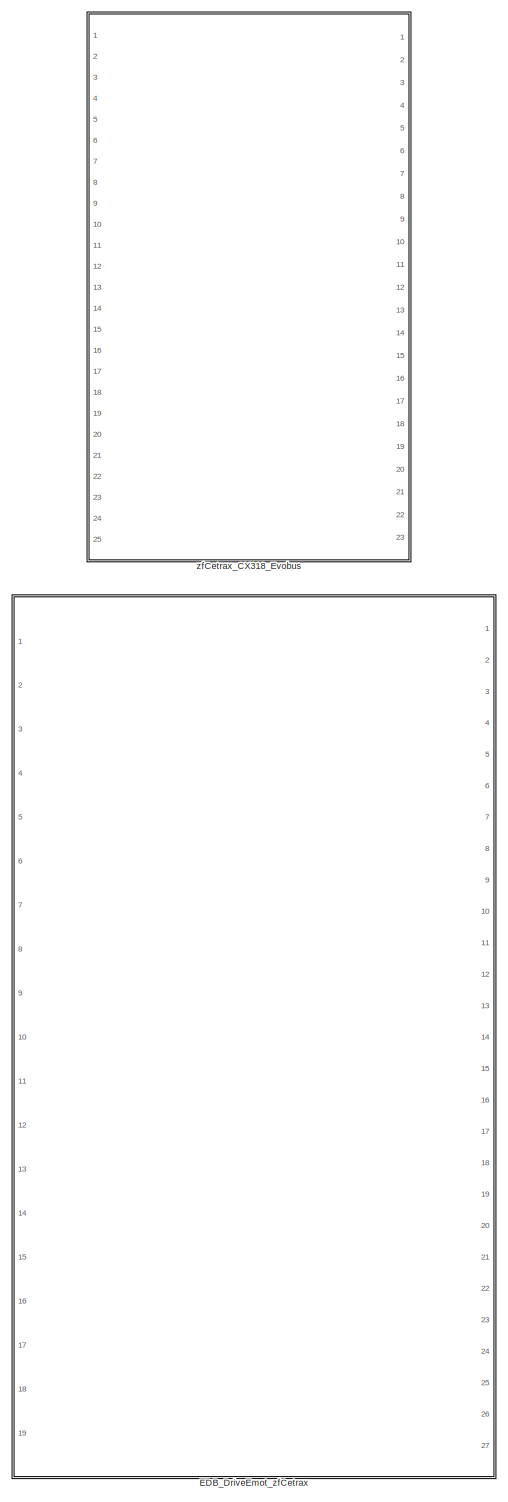
[diagram: root canvas - part 1/3, right side, full height]
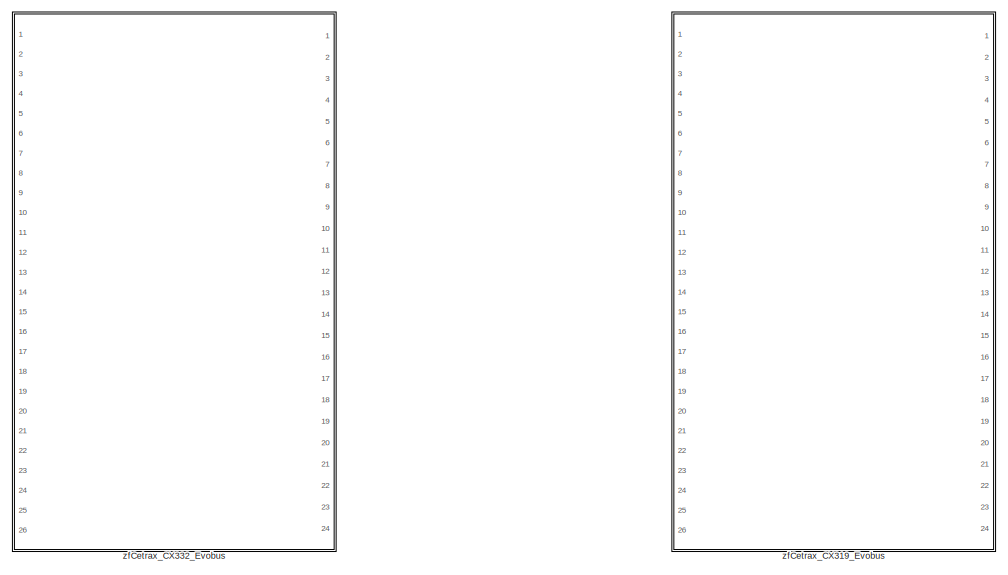
[diagram: root canvas - part 2/3, top left region]
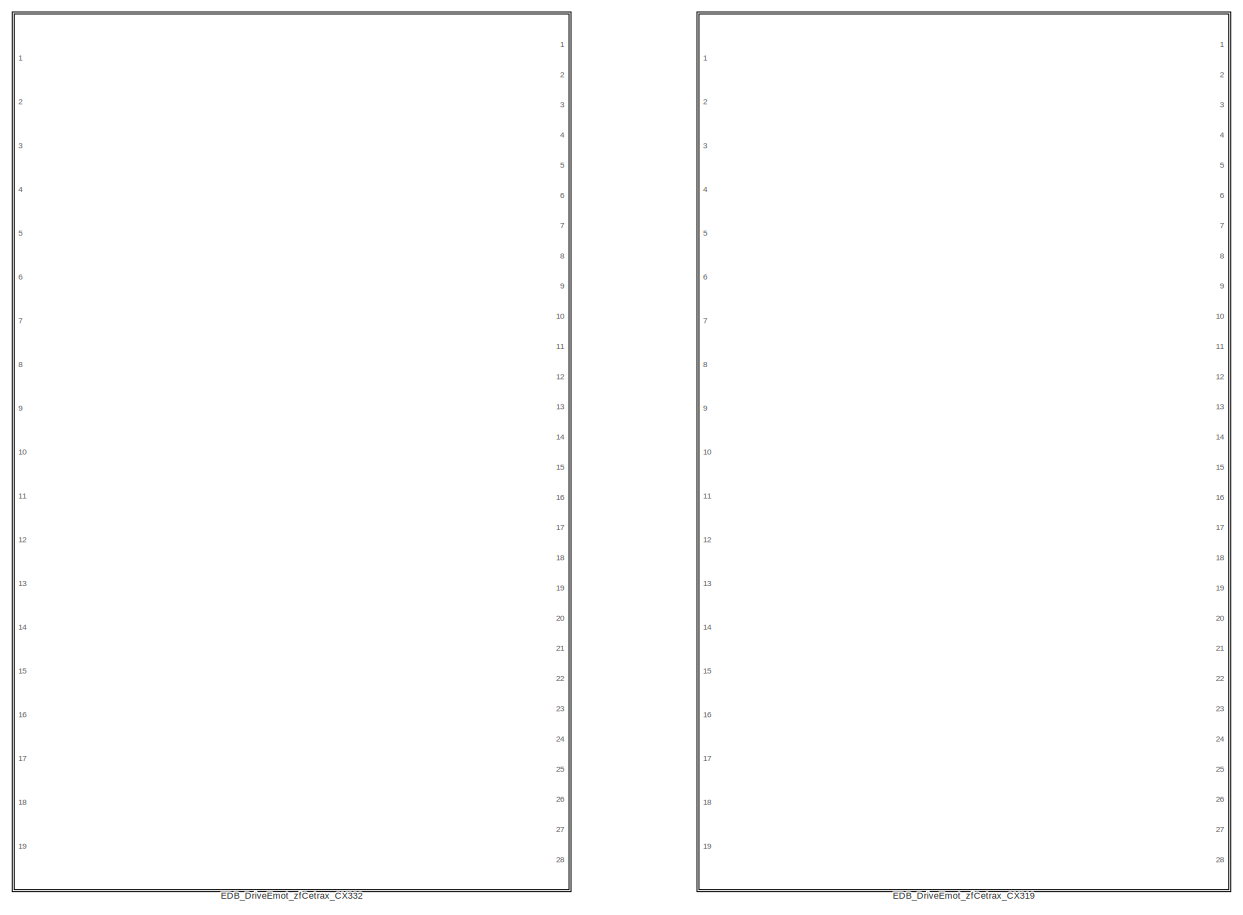
[diagram: root canvas - part 3/3, bottom left region]
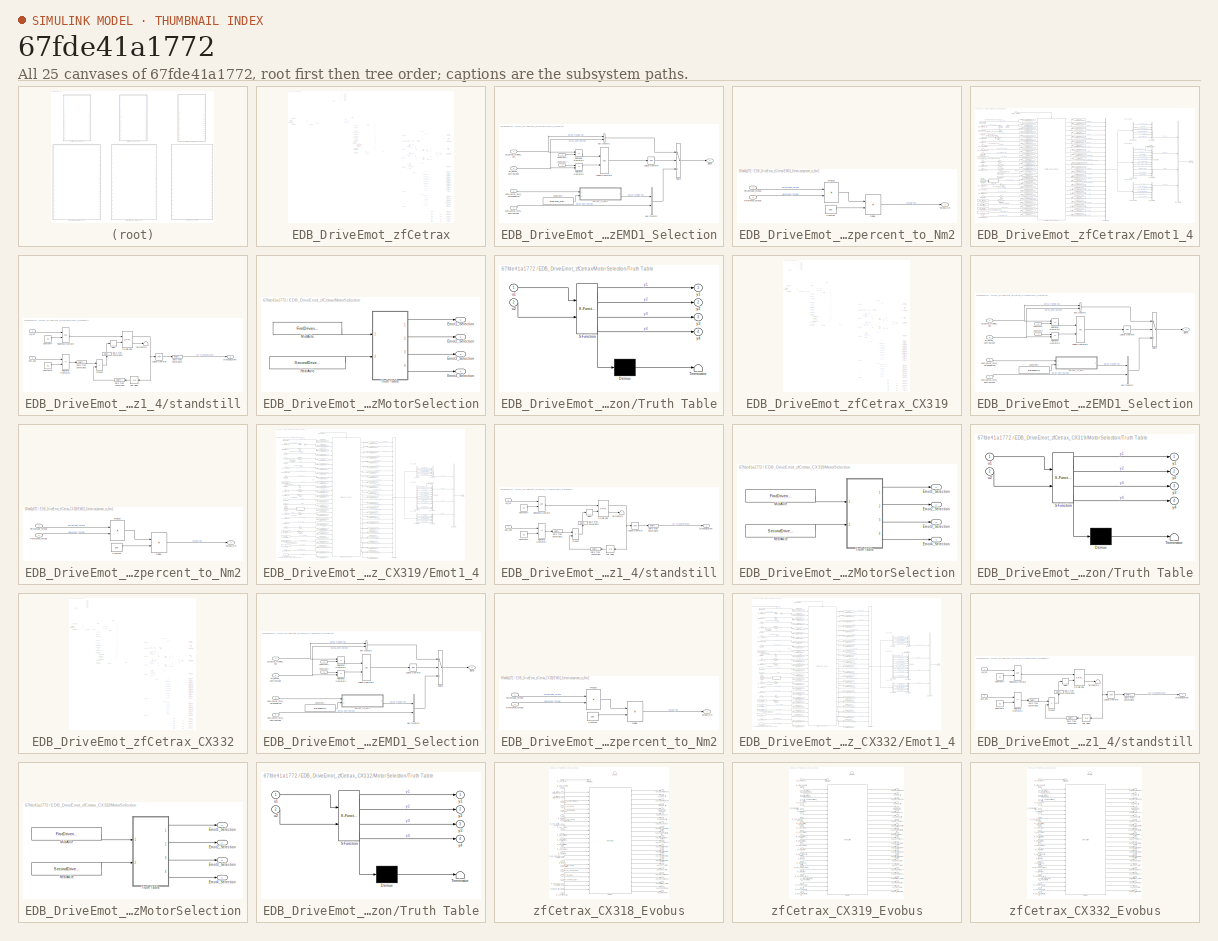
[diagram: thumbnail index - all 25 canvases of the model, root first then tree order]
MODEL slx_67fde41a1772
KIND library
CONFIG AbsTol = auto
CONFIG FixedStep = 0.001
CONFIG MaxStep = auto
CONFIG MinStep = auto
CONFIG RelTol = 1e-3
CONFIG SampleTimeConstraint = Unconstrained
CONFIG Solver = ode1
CONFIG SolverMode = Auto
CONFIG SolverName = ode1
CONFIG StartTime = 0.0
CONFIG StopTime = Inf
BLOCK [SubSystem] EDB_DriveEmot_zfCetrax
  Ports = [19, 27]
  RequestExecContextInheritance = off
  Variant = off
BLOCK [Sum] EDB_DriveEmot_zfCetrax/Add
  InputSameDT = off
  OutDataTypeStr = Inherit: Inherit via internal rule
  Ports = [2, 1]
  SaturateOnIntegerOverflow = off
BLOCK [Sum] EDB_DriveEmot_zfCetrax/Add1
  InputSameDT = off
  OutDataTypeStr = Inherit: Inherit via internal rule
  Ports = [2, 1]
  SaturateOnIntegerOverflow = off
BLOCK [Sum] EDB_DriveEmot_zfCetrax/Add2
  InputSameDT = off
  OutDataTypeStr = Inherit: Inherit via internal rule
  Ports = [2, 1]
  SaturateOnIntegerOverflow = off
BLOCK [Sum] EDB_DriveEmot_zfCetrax/Add3
  InputSameDT = off
  OutDataTypeStr = Inherit: Inherit via internal rule
  Ports = [2, 1]
  SaturateOnIntegerOverflow = off
BLOCK [Sum] EDB_DriveEmot_zfCetrax/Add4
  InputSameDT = off
  Inputs = -+
  OutDataTypeStr = Inherit: Inherit via internal rule
  Ports = [2, 1]
  SaturateOnIntegerOverflow = off
BLOCK [Sum] EDB_DriveEmot_zfCetrax/Add5
  InputSameDT = off
  Inputs = -+
  OutDataTypeStr = Inherit: Inherit via internal rule
  Ports = [2, 1]
  SaturateOnIntegerOverflow = off
BLOCK [Sum] EDB_DriveEmot_zfCetrax/Add6
  InputSameDT = off
  OutDataTypeStr = Inherit: Inherit via internal rule
  Ports = [2, 1]
  SaturateOnIntegerOverflow = off
BLOCK [BusSelector] EDB_DriveEmot_zfCetrax/Bus Selector
  OutputSignals = EMD1_TrqReq_Nm,EMD1_ControlMode
  Ports = [1, 2]
BLOCK [BusSelector] EDB_DriveEmot_zfCetrax/Bus Selector1
  OutputSignals = gbx_out.gbxOut_trq
  Ports = [1, 1]
BLOCK [BusSelector] EDB_DriveEmot_zfCetrax/Bus Selector13
  OutputSignals = em2_out.em2_trq,em2_out.em2_rotSpeed,em2_out.em2_pwrLoss
  Ports = [1, 3]
BLOCK [BusSelector] EDB_DriveEmot_zfCetrax/Bus Selector2
  OutputSignals = gbx_out.gbx_gearAct,gbx_out.gbx_gearRatio_tgt,gbx_out.gbx_gearShift_active,gbx_out.gbxOut_rotSpeed,em1_out.em1_trqPotential_min,em1_out.em1_trqPotential_max,em2_out.em2_trqPotential_min,em2_out.em2_trqPotential_max,em1_out.em1_rotSpeed,em2_out.em2_rotSpeed,em1_out.pe1_curDC,em2_out.pe2_curDC  <repeated x3 — deduplicated; at blocks: Bus Selector2>
  Ports = [1, 12]
BLOCK [BusSelector] EDB_DriveEmot_zfCetrax/Bus Selector3
  OutputSignals = gbx_out.gbxOut_rotSpeed,gbx_out.gbxOut_Acc,gbx_out.gbx_gearRatio_tgt,gbx_out.gbx_emDec_active,gbx_out.gbx_pwrLoss,gbx_out.derating_active
  Ports = [1, 6]
BLOCK [BusSelector] EDB_DriveEmot_zfCetrax/Bus Selector4
  OutputSignals = em1_out.pe1_curDC,em2_out.pe2_curDC
  Ports = [1, 2]
BLOCK [BusSelector] EDB_DriveEmot_zfCetrax/Bus Selector7
  OutputSignals = em1_out.em1_pwrLoss,em2_out.em2_pwrLoss
  Ports = [1, 2]
BLOCK [BusSelector] EDB_DriveEmot_zfCetrax/Bus Selector8
  OutputSignals = em1_out.em1_trq,em1_out.em1_rotSpeed,em1_out.em1_pwrLoss
  Ports = [1, 3]
BLOCK [SubSystem] EDB_DriveEmot_zfCetrax/EMD1_Selection
  Ports = [4, 1]
  RequestExecContextInheritance = off
  Variant = off
BLOCK [BusCreator] EDB_DriveEmot_zfCetrax/EMD1_Selection/Bus Creator1
  DisplayOption = bar
  InheritFromInputs = on
  Inputs = 2
  Ports = [2, 1]
BLOCK [BusCreator] EDB_DriveEmot_zfCetrax/EMD1_Selection/Bus Creator2
  DisplayOption = bar
  InheritFromInputs = on
  Inputs = 2
  Ports = [2, 1]
BLOCK [Constant] EDB_DriveEmot_zfCetrax/EMD1_Selection/Constant2
  Value = 0
BLOCK [Constant] EDB_DriveEmot_zfCetrax/EMD1_Selection/Constant3
  Value = -1
BLOCK [Constant] EDB_DriveEmot_zfCetrax/EMD1_Selection/Constant4
  Value = drvEmot_RefTqeMOT
BLOCK [Logic] EDB_DriveEmot_zfCetrax/EMD1_Selection/Logical Operator
  AllPortsSameDT = off
  Operator = NOT
  OutDataTypeStr = boolean
  Ports = [1, 1]
BLOCK [Logic] EDB_DriveEmot_zfCetrax/EMD1_Selection/Logical Operator1
  AllPortsSameDT = off
  OutDataTypeStr = boolean
  Ports = [2, 1]
BLOCK [RelationalOperator] EDB_DriveEmot_zfCetrax/EMD1_Selection/Relational Operator2
  InputSameDT = off
  Operator = ==
  OutDataTypeStr = boolean
  Ports = [2, 1]
BLOCK [RelationalOperator] EDB_DriveEmot_zfCetrax/EMD1_Selection/Relational Operator3
  InputSameDT = off
  Operator = ==
  OutDataTypeStr = boolean
  Ports = [2, 1]
BLOCK [Outport] EDB_DriveEmot_zfCetrax/EMD1_Selection/Signal
  IconDisplay = Port number
BLOCK [Switch] EDB_DriveEmot_zfCetrax/EMD1_Selection/Switch
  Criteria = u2 > Threshold
  InputSameDT = off
  SaturateOnIntegerOverflow = off
BLOCK [Inport] EDB_DriveEmot_zfCetrax/EMD1_Selection/edcu_EMD1_CMD_ControlMode
  IconDisplay = Port number
  Port = 4
BLOCK [Inport] EDB_DriveEmot_zfCetrax/EMD1_Selection/edcu_EMD1_CMD_TorqueRefLim
  IconDisplay = Port number
  Port = 3
BLOCK [SubSystem] EDB_DriveEmot_zfCetrax/EMD1_Selection/percent_to_Nm2
  Ports = [2, 1]
  RequestExecContextInheritance = off
  Variant = off
BLOCK [Constant] EDB_DriveEmot_zfCetrax/EMD1_Selection/percent_to_Nm2/Constant
  Value = 100
BLOCK [Product] EDB_DriveEmot_zfCetrax/EMD1_Selection/percent_to_Nm2/Divide
  InputSameDT = off
  Inputs = */
  OutDataTypeStr = Inherit: Inherit via internal rule
  Ports = [2, 1]
  RndMeth = Floor
  SaturateOnIntegerOverflow = off
BLOCK [Inport] EDB_DriveEmot_zfCetrax/EMD1_Selection/percent_to_Nm2/Percentage_Torque
  IconDisplay = Port number
BLOCK [Product] EDB_DriveEmot_zfCetrax/EMD1_Selection/percent_to_Nm2/Product
  InputSameDT = off
  OutDataTypeStr = Inherit: Inherit via internal rule
  Ports = [2, 1]
  SaturateOnIntegerOverflow = off
BLOCK [Inport] EDB_DriveEmot_zfCetrax/EMD1_Selection/percent_to_Nm2/Reference_Torque
  IconDisplay = Port number
  Port = 2
BLOCK [Outport] EDB_DriveEmot_zfCetrax/EMD1_Selection/percent_to_Nm2/Torque_Nm
  IconDisplay = Port number
BLOCK [Inport] EDB_DriveEmot_zfCetrax/EMD1_Selection/pti_EMD1_ControlMode
  IconDisplay = Port number
  Port = 2
BLOCK [Inport] EDB_DriveEmot_zfCetrax/EMD1_Selection/pti_EMD1_TrqReq_Nm
  IconDisplay = Port number
BLOCK [SubSystem] EDB_DriveEmot_zfCetrax/Emot1_4
  Ports = [17, 1]
  RequestExecContextInheritance = off
  Variant = off
BLOCK [BusCreator] EDB_DriveEmot_zfCetrax/Emot1_4/Bus Creator
  DisplayOption = bar
  InheritFromInputs = on
  Inputs = 6
  Ports = [6, 1]
BLOCK [BusCreator] EDB_DriveEmot_zfCetrax/Emot1_4/Bus Creator4
  DisplayOption = bar
  InheritFromInputs = on
  Inputs = 23
  Ports = [23, 1]
BLOCK [BusCreator] EDB_DriveEmot_zfCetrax/Emot1_4/Bus Creator5
  DisplayOption = bar
  InheritFromInputs = on
  Inputs = 6
  Ports = [6, 1]
BLOCK [BusCreator] EDB_DriveEmot_zfCetrax/Emot1_4/Bus Creator6
  DisplayOption = bar
  InheritFromInputs = on
  Inputs = 9
  Ports = [9, 1]
BLOCK [BusCreator] EDB_DriveEmot_zfCetrax/Emot1_4/Bus Creator7
  DisplayOption = bar
  InheritFromInputs = on
  Inputs = 2
  Ports = [2, 1]
BLOCK [BusCreator] EDB_DriveEmot_zfCetrax/Emot1_4/Bus Creator8
  DisplayOption = bar
  InheritFromInputs = on
  Inputs = 4
  Ports = [4, 1]
BLOCK [BusSelector] EDB_DriveEmot_zfCetrax/Emot1_4/Bus Selector
  OutputSignals = em1_rotSpeed,em1_trq,em1_trqPotential_min,em1_trqPotential_max,pe1_curDC,em1_pwrLoss
  Ports = [1, 6]
BLOCK [BusSelector] EDB_DriveEmot_zfCetrax/Emot1_4/Bus Selector1
  OutputSignals = em2_trq,em2_rotSpeed,em2_trqPotential_min,em2_trqPotential_max,em2_pwrLoss,pe2_curDC
  Ports = [1, 6]
BLOCK [BusSelector] EDB_DriveEmot_zfCetrax/Emot1_4/Bus Selector3
  OutputSignals = gbxOut_rotSpeed,gbxOut_Acc,gbxOut_trq,gbx_gearAct,gbx_gearShift_active,gbx_gearRatio_tgt,gbx_emDec_active,gbx_pwrLoss,derating_active,clnt_outTemp,clnt_hFlow
  Ports = [1, 11]
BLOCK [Constant] EDB_DriveEmot_zfCetrax/Emot1_4/Constant
  Value = mec_rWheelDriven
BLOCK [Constant] EDB_DriveEmot_zfCetrax/Emot1_4/Constant1
  Value = mec_iDiffAxle
BLOCK [Constant] EDB_DriveEmot_zfCetrax/Emot1_4/Constant2
  Value = mec_fRollCoeffOverall
BLOCK [Constant] EDB_DriveEmot_zfCetrax/Emot1_4/Constant3
  Value = 0
BLOCK [Inport] EDB_DriveEmot_zfCetrax/Emot1_4/Emot1_Selection
  IconDisplay = Port number
  Port = 4
BLOCK [From] EDB_DriveEmot_zfCetrax/Emot1_4/From1
  GotoTag = vel_tgt
BLOCK [From] EDB_DriveEmot_zfCetrax/Emot1_4/From2
  GotoTag = gbx_spd
BLOCK [Gain] EDB_DriveEmot_zfCetrax/Emot1_4/Gain
  OutDataTypeStr = Inherit: Inherit via internal rule
  ParamDataTypeStr = Inherit: Inherit via internal rule
  SaturateOnIntegerOverflow = off
BLOCK [Gain] EDB_DriveEmot_zfCetrax/Emot1_4/Gain1
  Gain = 5/18
  OutDataTypeStr = Inherit: Inherit via internal rule
  ParamDataTypeStr = Inherit: Inherit via internal rule
  SaturateOnIntegerOverflow = off
BLOCK [Gain] EDB_DriveEmot_zfCetrax/Emot1_4/Gain2
  Gain = 1000
  OutDataTypeStr = Inherit: Inherit via internal rule
  ParamDataTypeStr = Inherit: Inherit via internal rule
  SaturateOnIntegerOverflow = off
BLOCK [Gain] EDB_DriveEmot_zfCetrax/Emot1_4/Gain3
  Gain = 1000
  OutDataTypeStr = Inherit: Inherit via internal rule
  ParamDataTypeStr = Inherit: Inherit via internal rule
  SaturateOnIntegerOverflow = off
BLOCK [Gain] EDB_DriveEmot_zfCetrax/Emot1_4/Gain4
  OutDataTypeStr = Inherit: Inherit via internal rule
  ParamDataTypeStr = Inherit: Inherit via internal rule
  SaturateOnIntegerOverflow = off
BLOCK [Gain] EDB_DriveEmot_zfCetrax/Emot1_4/Gain5
  OutDataTypeStr = Inherit: Inherit via internal rule
  ParamDataTypeStr = Inherit: Inherit via internal rule
  SaturateOnIntegerOverflow = off
BLOCK [Gain] EDB_DriveEmot_zfCetrax/Emot1_4/Gain6
  Gain = 0.01
  OutDataTypeStr = Inherit: Inherit via internal rule
  ParamDataTypeStr = Inherit: Inherit via internal rule
  SaturateOnIntegerOverflow = off
BLOCK [Goto] EDB_DriveEmot_zfCetrax/Emot1_4/Goto1
  GotoTag = vel_tgt
BLOCK [Goto] EDB_DriveEmot_zfCetrax/Emot1_4/Goto2
  GotoTag = gbx_spd
BLOCK [Ground] EDB_DriveEmot_zfCetrax/Emot1_4/Ground
BLOCK [Terminator] EDB_DriveEmot_zfCetrax/Emot1_4/Terminator
BLOCK [ToWorkspace] EDB_DriveEmot_zfCetrax/Emot1_4/To Workspace
  FixptAsFi = on
  MaxDataPoints = inf
  Ports = [1]
  SampleTime = -1
  Save2DSignal = 2-D array (concatenate along first dimension)
  VariableName = FMU_in_driver_demCtrl
BLOCK [ToWorkspace] EDB_DriveEmot_zfCetrax/Emot1_4/To Workspace1
  FixptAsFi = on
  MaxDataPoints = inf
  Ports = [1]
  SampleTime = -1
  Save2DSignal = 2-D array (concatenate along first dimension)
  VariableName = FMU_in_driver_pwrDemand
BLOCK [ToWorkspace] EDB_DriveEmot_zfCetrax/Emot1_4/To Workspace10
  FixptAsFi = on
  MaxDataPoints = inf
  Ports = [1]
  SampleTime = -1
  Save2DSignal = 2-D array (concatenate along first dimension)
  VariableName = FMU_in_bat_voltage
BLOCK [ToWorkspace] EDB_DriveEmot_zfCetrax/Emot1_4/To Workspace11
  FixptAsFi = on
  MaxDataPoints = inf
  Ports = [1]
  SampleTime = -1
  Save2DSignal = 2-D array (concatenate along first dimension)
  VariableName = FMU_in_em_pwrElec_min
BLOCK [ToWorkspace] EDB_DriveEmot_zfCetrax/Emot1_4/To Workspace12
  FixptAsFi = on
  MaxDataPoints = inf
  Ports = [1]
  SampleTime = -1
  Save2DSignal = 2-D array (concatenate along first dimension)
  VariableName = FMU_in_em_pwrElec_max
BLOCK [ToWorkspace] EDB_DriveEmot_zfCetrax/Emot1_4/To Workspace13
  FixptAsFi = on
  MaxDataPoints = inf
  Ports = [1]
  SampleTime = -1
  Save2DSignal = 2-D array (concatenate along first dimension)
  VariableName = FMU_in_clnt_volFlow
BLOCK [ToWorkspace] EDB_DriveEmot_zfCetrax/Emot1_4/To Workspace14
  FixptAsFi = on
  MaxDataPoints = inf
  Ports = [1]
  SampleTime = -1
  Save2DSignal = 2-D array (concatenate along first dimension)
  VariableName = FMU_in_clnt_temp
BLOCK [ToWorkspace] EDB_DriveEmot_zfCetrax/Emot1_4/To Workspace15
  FixptAsFi = on
  MaxDataPoints = inf
  Ports = [1]
  SampleTime = -1
  Save2DSignal = 2-D array (concatenate along first dimension)
  VariableName = FMU_in_drv_standstill_active
BLOCK [ToWorkspace] EDB_DriveEmot_zfCetrax/Emot1_4/To Workspace16
  FixptAsFi = on
  MaxDataPoints = inf
  Ports = [1]
  SampleTime = -1
  Save2DSignal = 2-D array (concatenate along first dimension)
  VariableName = FMU_in_rt_slope
BLOCK [ToWorkspace] EDB_DriveEmot_zfCetrax/Emot1_4/To Workspace17
  FixptAsFi = on
  MaxDataPoints = inf
  Ports = [1]
  SampleTime = -1
  Save2DSignal = 2-D array (concatenate along first dimension)
  VariableName = FMU_in_drv_pedal_throttle
BLOCK [ToWorkspace] EDB_DriveEmot_zfCetrax/Emot1_4/To Workspace18
  FixptAsFi = on
  MaxDataPoints = inf
  Ports = [1]
  SampleTime = -1
  Save2DSignal = 2-D array (concatenate along first dimension)
  VariableName = FMU_in_drv_pedal_brake
BLOCK [ToWorkspace] EDB_DriveEmot_zfCetrax/Emot1_4/To Workspace19
  FixptAsFi = on
  MaxDataPoints = inf
  Ports = [1]
  SampleTime = -1
  Save2DSignal = 2-D array (concatenate along first dimension)
  VariableName = FMU_in_drl_active
BLOCK [ToWorkspace] EDB_DriveEmot_zfCetrax/Emot1_4/To Workspace2
  FixptAsFi = on
  MaxDataPoints = inf
  Ports = [1]
  SampleTime = -1
  Save2DSignal = 2-D array (concatenate along first dimension)
  VariableName = FMU_in_driver_trqDemand
BLOCK [ToWorkspace] EDB_DriveEmot_zfCetrax/Emot1_4/To Workspace20
  FixptAsFi = on
  MaxDataPoints = inf
  Ports = [1]
  SampleTime = -1
  Save2DSignal = 2-D array (concatenate along first dimension)
  VariableName = FMU_in_vehWheel_rDyn
BLOCK [ToWorkspace] EDB_DriveEmot_zfCetrax/Emot1_4/To Workspace21
  FixptAsFi = on
  MaxDataPoints = inf
  Ports = [1]
  SampleTime = -1
  Save2DSignal = 2-D array (concatenate along first dimension)
  VariableName = FMU_in_vehAxel_gearRatio
BLOCK [ToWorkspace] EDB_DriveEmot_zfCetrax/Emot1_4/To Workspace22
  FixptAsFi = on
  MaxDataPoints = inf
  Ports = [1]
  SampleTime = -1
  Save2DSignal = 2-D array (concatenate along first dimension)
  VariableName = FMU_in_vehWheel_froll
BLOCK [ToWorkspace] EDB_DriveEmot_zfCetrax/Emot1_4/To Workspace23
  FixptAsFi = on
  MaxDataPoints = inf
  Ports = [1]
  SampleTime = -1
  Save2DSignal = 2-D array (concatenate along first dimension)
  VariableName = FMU_in_styLimVariant_set
BLOCK [ToWorkspace] EDB_DriveEmot_zfCetrax/Emot1_4/To Workspace24
  FixptAsFi = on
  MaxDataPoints = inf
  Ports = [1]
  SampleTime = -1
  Save2DSignal = 2-D array (concatenate along first dimension)
  VariableName = FMU_in_vehWheelBrake_trq
BLOCK [ToWorkspace] EDB_DriveEmot_zfCetrax/Emot1_4/To Workspace25
  FixptAsFi = on
  MaxDataPoints = inf
  Ports = [1]
  SampleTime = -1
  Save2DSignal = 2-D array (concatenate along first dimension)
  VariableName = FMU_out_em1_rotSpeed
BLOCK [ToWorkspace] EDB_DriveEmot_zfCetrax/Emot1_4/To Workspace26
  FixptAsFi = on
  MaxDataPoints = inf
  Ports = [1]
  SampleTime = -1
  Save2DSignal = 2-D array (concatenate along first dimension)
  VariableName = FMU_out_em1_trq
BLOCK [ToWorkspace] EDB_DriveEmot_zfCetrax/Emot1_4/To Workspace27
  FixptAsFi = on
  MaxDataPoints = inf
  Ports = [1]
  SampleTime = -1
  Save2DSignal = 2-D array (concatenate along first dimension)
  VariableName = FMU_out_em2_rotSpeed
BLOCK [ToWorkspace] EDB_DriveEmot_zfCetrax/Emot1_4/To Workspace28
  FixptAsFi = on
  MaxDataPoints = inf
  Ports = [1]
  SampleTime = -1
  Save2DSignal = 2-D array (concatenate along first dimension)
  VariableName = FMU_out_em2_trq
BLOCK [ToWorkspace] EDB_DriveEmot_zfCetrax/Emot1_4/To Workspace29
  FixptAsFi = on
  MaxDataPoints = inf
  Ports = [1]
  SampleTime = -1
  Save2DSignal = 2-D array (concatenate along first dimension)
  VariableName = FMU_out_gbxOut_rotSpeed
BLOCK [ToWorkspace] EDB_DriveEmot_zfCetrax/Emot1_4/To Workspace3
  FixptAsFi = on
  MaxDataPoints = inf
  Ports = [1]
  SampleTime = -1
  Save2DSignal = 2-D array (concatenate along first dimension)
  VariableName = FMU_in_veh_linVel
BLOCK [ToWorkspace] EDB_DriveEmot_zfCetrax/Emot1_4/To Workspace30
  FixptAsFi = on
  MaxDataPoints = inf
  Ports = [1]
  SampleTime = -1
  Save2DSignal = 2-D array (concatenate along first dimension)
  VariableName = FMU_out_gbxOut_Acc
BLOCK [ToWorkspace] EDB_DriveEmot_zfCetrax/Emot1_4/To Workspace31
  FixptAsFi = on
  MaxDataPoints = inf
  Ports = [1]
  SampleTime = -1
  Save2DSignal = 2-D array (concatenate along first dimension)
  VariableName = FMU_out_gbxOut_trq
BLOCK [ToWorkspace] EDB_DriveEmot_zfCetrax/Emot1_4/To Workspace32
  FixptAsFi = on
  MaxDataPoints = inf
  Ports = [1]
  SampleTime = -1
  Save2DSignal = 2-D array (concatenate along first dimension)
  VariableName = FMU_out_gbx_gearAct
BLOCK [ToWorkspace] EDB_DriveEmot_zfCetrax/Emot1_4/To Workspace33
  FixptAsFi = on
  MaxDataPoints = inf
  Ports = [1]
  SampleTime = -1
  Save2DSignal = 2-D array (concatenate along first dimension)
  VariableName = FMU_out_gbx_gearShift_active
BLOCK [ToWorkspace] EDB_DriveEmot_zfCetrax/Emot1_4/To Workspace34
  FixptAsFi = on
  MaxDataPoints = inf
  Ports = [1]
  SampleTime = -1
  Save2DSignal = 2-D array (concatenate along first dimension)
  VariableName = FMU_out_gbx_gearRatio_tgt
BLOCK [ToWorkspace] EDB_DriveEmot_zfCetrax/Emot1_4/To Workspace35
  FixptAsFi = on
  MaxDataPoints = inf
  Ports = [1]
  SampleTime = -1
  Save2DSignal = 2-D array (concatenate along first dimension)
  VariableName = FMU_out_gbx_emDec_active
BLOCK [ToWorkspace] EDB_DriveEmot_zfCetrax/Emot1_4/To Workspace36
  FixptAsFi = on
  MaxDataPoints = inf
  Ports = [1]
  SampleTime = -1
  Save2DSignal = 2-D array (concatenate along first dimension)
  VariableName = FMU_out_gbx_pwrLoss
BLOCK [ToWorkspace] EDB_DriveEmot_zfCetrax/Emot1_4/To Workspace37
  FixptAsFi = on
  MaxDataPoints = inf
  Ports = [1]
  SampleTime = -1
  Save2DSignal = 2-D array (concatenate along first dimension)
  VariableName = FMU_out_pe1_curDC
BLOCK [ToWorkspace] EDB_DriveEmot_zfCetrax/Emot1_4/To Workspace38
  FixptAsFi = on
  MaxDataPoints = inf
  Ports = [1]
  SampleTime = -1
  Save2DSignal = 2-D array (concatenate along first dimension)
  VariableName = FMU_out_em1_trqPotential_min
BLOCK [ToWorkspace] EDB_DriveEmot_zfCetrax/Emot1_4/To Workspace39
  FixptAsFi = on
  MaxDataPoints = inf
  Ports = [1]
  SampleTime = -1
  Save2DSignal = 2-D array (concatenate along first dimension)
  VariableName = FMU_out_em1_trqPotential_max
BLOCK [ToWorkspace] EDB_DriveEmot_zfCetrax/Emot1_4/To Workspace4
  FixptAsFi = on
  MaxDataPoints = inf
  Ports = [1]
  SampleTime = -1
  Save2DSignal = 2-D array (concatenate along first dimension)
  VariableName = FMU_in_veh_linVel_tgt
BLOCK [ToWorkspace] EDB_DriveEmot_zfCetrax/Emot1_4/To Workspace40
  FixptAsFi = on
  MaxDataPoints = inf
  Ports = [1]
  SampleTime = -1
  Save2DSignal = 2-D array (concatenate along first dimension)
  VariableName = FMU_out_em2_trqPotential_min
BLOCK [ToWorkspace] EDB_DriveEmot_zfCetrax/Emot1_4/To Workspace41
  FixptAsFi = on
  MaxDataPoints = inf
  Ports = [1]
  SampleTime = -1
  Save2DSignal = 2-D array (concatenate along first dimension)
  VariableName = FMU_out_em2_trqPotential_max
BLOCK [ToWorkspace] EDB_DriveEmot_zfCetrax/Emot1_4/To Workspace42
  FixptAsFi = on
  MaxDataPoints = inf
  Ports = [1]
  SampleTime = -1
  Save2DSignal = 2-D array (concatenate along first dimension)
  VariableName = FMU_out_pe2_curDC
BLOCK [ToWorkspace] EDB_DriveEmot_zfCetrax/Emot1_4/To Workspace43
  FixptAsFi = on
  MaxDataPoints = inf
  Ports = [1]
  SampleTime = -1
  Save2DSignal = 2-D array (concatenate along first dimension)
  VariableName = FMU_out_em1_pwrLoss
BLOCK [ToWorkspace] EDB_DriveEmot_zfCetrax/Emot1_4/To Workspace44
  FixptAsFi = on
  MaxDataPoints = inf
  Ports = [1]
  SampleTime = -1
  Save2DSignal = 2-D array (concatenate along first dimension)
  VariableName = FMU_out_em2_pwrLoss
BLOCK [ToWorkspace] EDB_DriveEmot_zfCetrax/Emot1_4/To Workspace45
  FixptAsFi = on
  MaxDataPoints = inf
  Ports = [1]
  SampleTime = -1
  Save2DSignal = 2-D array (concatenate along first dimension)
  VariableName = FMU_out_derating_active
BLOCK [ToWorkspace] EDB_DriveEmot_zfCetrax/Emot1_4/To Workspace46
  FixptAsFi = on
  MaxDataPoints = inf
  Ports = [1]
  SampleTime = -1
  Save2DSignal = 2-D array (concatenate along first dimension)
  VariableName = FMU_out_clnt_outTemp
BLOCK [ToWorkspace] EDB_DriveEmot_zfCetrax/Emot1_4/To Workspace47
  FixptAsFi = on
  MaxDataPoints = inf
  Ports = [1]
  SampleTime = -1
  Save2DSignal = 2-D array (concatenate along first dimension)
  VariableName = FMU_out_clnt_hflow
BLOCK [ToWorkspace] EDB_DriveEmot_zfCetrax/Emot1_4/To Workspace5
  FixptAsFi = on
  MaxDataPoints = inf
  Ports = [1]
  SampleTime = -1
  Save2DSignal = 2-D array (concatenate along first dimension)
  VariableName = FMU_in_veh_linAcc
BLOCK [ToWorkspace] EDB_DriveEmot_zfCetrax/Emot1_4/To Workspace6
  FixptAsFi = on
  MaxDataPoints = inf
  Ports = [1]
  SampleTime = -1
  Save2DSignal = 2-D array (concatenate along first dimension)
  VariableName = FMU_in_tempEnv
BLOCK [ToWorkspace] EDB_DriveEmot_zfCetrax/Emot1_4/To Workspace7
  FixptAsFi = on
  MaxDataPoints = inf
  Ports = [1]
  SampleTime = -1
  Save2DSignal = 2-D array (concatenate along first dimension)
  VariableName = FMU_in_veh_resTrq_gbxOut
BLOCK [ToWorkspace] EDB_DriveEmot_zfCetrax/Emot1_4/To Workspace8
  FixptAsFi = on
  MaxDataPoints = inf
  Ports = [1]
  SampleTime = -1
  Save2DSignal = 2-D array (concatenate along first dimension)
  VariableName = FMU_in_veh_inertia_gbxOut
BLOCK [ToWorkspace] EDB_DriveEmot_zfCetrax/Emot1_4/To Workspace9
  FixptAsFi = on
  MaxDataPoints = inf
  Ports = [1]
  SampleTime = -1
  Save2DSignal = 2-D array (concatenate along first dimension)
  VariableName = FMU_in_veh_mass
BLOCK [Outport] EDB_DriveEmot_zfCetrax/Emot1_4/ceTrax
  IconDisplay = Port number
BLOCK [Constant] EDB_DriveEmot_zfCetrax/Emot1_4/clnt_temp
  Value = 25
BLOCK [Constant] EDB_DriveEmot_zfCetrax/Emot1_4/clnt_volFlow
  Value = 1.5
BLOCK [Constant] EDB_DriveEmot_zfCetrax/Emot1_4/driver_demCtrl
  Value = 2
BLOCK [Inport] EDB_DriveEmot_zfCetrax/Emot1_4/drv_AccPdl_pos
  IconDisplay = Port number
  Port = 5
BLOCK [Inport] EDB_DriveEmot_zfCetrax/Emot1_4/drv_BrkPdl_pos
  IconDisplay = Port number
  Port = 6
BLOCK [Inport] EDB_DriveEmot_zfCetrax/Emot1_4/drv_HaltBrkSw_Rq
  IconDisplay = Port number
  Port = 9
BLOCK [Inport] EDB_DriveEmot_zfCetrax/Emot1_4/em_pwrElec_max
  IconDisplay = Port number
  Port = 16
BLOCK [Inport] EDB_DriveEmot_zfCetrax/Emot1_4/em_pwrElec_min
  IconDisplay = Port number
  Port = 15
BLOCK [Inport] EDB_DriveEmot_zfCetrax/Emot1_4/emot_CMD1
  IconDisplay = Port number
  Port = 3
BLOCK [Inport] EDB_DriveEmot_zfCetrax/Emot1_4/env_Temperature
  IconDisplay = Port number
  Port = 7
BLOCK [Inport] EDB_DriveEmot_zfCetrax/Emot1_4/env_road_slope_pct
  IconDisplay = Port number
  Port = 8
BLOCK [Gain] EDB_DriveEmot_zfCetrax/Emot1_4/mm to meter
  Gain = 0.001
  OutDataTypeStr = Inherit: Inherit via internal rule
  ParamDataTypeStr = Inherit: Inherit via internal rule
  SaturateOnIntegerOverflow = off
BLOCK [Inport] EDB_DriveEmot_zfCetrax/Emot1_4/pti_WheelBrake_trq
  IconDisplay = Port number
  Port = 17
BLOCK [SubSystem] EDB_DriveEmot_zfCetrax/Emot1_4/standstill
  Ports = [2, 1]
  RequestExecContextInheritance = off
  Variant = off
BLOCK [Constant] EDB_DriveEmot_zfCetrax/Emot1_4/standstill/Constant4
  Value = 0.1
BLOCK [Constant] EDB_DriveEmot_zfCetrax/Emot1_4/standstill/Constant5
  Value = 0.1
BLOCK [DataTypeConversion] EDB_DriveEmot_zfCetrax/Emot1_4/standstill/Data Type Conversion
  OutDataTypeStr = double
  RndMeth = Floor
  SaturateOnIntegerOverflow = off
BLOCK [DataTypeConversion] EDB_DriveEmot_zfCetrax/Emot1_4/standstill/Data Type Conversion1
  OutDataTypeStr = double
  RndMeth = Floor
  SaturateOnIntegerOverflow = off
BLOCK [DataTypeConversion] EDB_DriveEmot_zfCetrax/Emot1_4/standstill/Data Type Conversion2
  OutDataTypeStr = boolean
  RndMeth = Floor
  SaturateOnIntegerOverflow = off
BLOCK [DataTypeConversion] EDB_DriveEmot_zfCetrax/Emot1_4/standstill/Data Type Conversion3
  OutDataTypeStr = double
  RndMeth = Floor
  SaturateOnIntegerOverflow = off
BLOCK [Delay] EDB_DriveEmot_zfCetrax/Emot1_4/standstill/Delay
  DelayLength = 10
  InputPortMap = u0
  Ports = [1, 1]
BLOCK [Logic] EDB_DriveEmot_zfCetrax/Emot1_4/standstill/Logical Operator
  AllPortsSameDT = off
  Operator = NOT
  OutDataTypeStr = boolean
  Ports = [1, 1]
BLOCK [Product] EDB_DriveEmot_zfCetrax/Emot1_4/standstill/Product
  InputSameDT = off
  OutDataTypeStr = Inherit: Inherit via internal rule
  Ports = [2, 1]
  RndMeth = Floor
  SaturateOnIntegerOverflow = off
BLOCK [RelationalOperator] EDB_DriveEmot_zfCetrax/Emot1_4/standstill/Relational Operator
  InputSameDT = off
  OutDataTypeStr = boolean
  Ports = [2, 1]
BLOCK [RelationalOperator] EDB_DriveEmot_zfCetrax/Emot1_4/standstill/Relational Operator1
  InputSameDT = off
  Operator = <=
  OutDataTypeStr = boolean
  Ports = [2, 1]
BLOCK [Reference] EDB_DriveEmot_zfCetrax/Emot1_4/standstill/S-R Flip-Flop  REF=simulink_extras/Flip Flops/S-R
Flip-Flop
  Ports = [2, 2]
  SourceBlock = simulink_extras/Flip Flops/S-R\nFlip-Flop
  SourceType = SRFlipFlop
BLOCK [Terminator] EDB_DriveEmot_zfCetrax/Emot1_4/standstill/Terminator1
BLOCK [UnitDelay] EDB_DriveEmot_zfCetrax/Emot1_4/standstill/Unit Delay
  InputProcessing = Elements as channels (sample based)
  SampleTime = -1
BLOCK [Inport] EDB_DriveEmot_zfCetrax/Emot1_4/standstill/gbx_spd
  IconDisplay = Port number
  Port = 2
BLOCK [Outport] EDB_DriveEmot_zfCetrax/Emot1_4/standstill/standstill_active
  IconDisplay = Port number
BLOCK [Inport] EDB_DriveEmot_zfCetrax/Emot1_4/standstill/vel_tgt
  IconDisplay = Port number
BLOCK [Inport] EDB_DriveEmot_zfCetrax/Emot1_4/trqEmotDesPhy1
  IconDisplay = Port number
  Port = 2
BLOCK [Inport] EDB_DriveEmot_zfCetrax/Emot1_4/veh_inertial_gbxOut
  IconDisplay = Port number
  Port = 14
BLOCK [Inport] EDB_DriveEmot_zfCetrax/Emot1_4/veh_linAcc
  IconDisplay = Port number
  Port = 12
BLOCK [Inport] EDB_DriveEmot_zfCetrax/Emot1_4/veh_linVel
  IconDisplay = Port number
  Port = 10
BLOCK [Inport] EDB_DriveEmot_zfCetrax/Emot1_4/veh_linVel_tgt
  IconDisplay = Port number
  Port = 11
BLOCK [Constant] EDB_DriveEmot_zfCetrax/Emot1_4/veh_mass
  Value = mec_massVehicle_kg
BLOCK [Inport] EDB_DriveEmot_zfCetrax/Emot1_4/veh_resTrq_gbxOut
  IconDisplay = Port number
  Port = 13
BLOCK [Inport] EDB_DriveEmot_zfCetrax/Emot1_4/voltBatHV1
  IconDisplay = Port number
BLOCK [Reference] EDB_DriveEmot_zfCetrax/Emot1_4/zfCetrax_CX318_Evobus  REF=Enrg_conv_El_to_Mec_zfCetrax/zfCetrax_CX318_Evobus
  Ports = [25, 23, 1]
  SourceBlock = Enrg_conv_El_to_Mec_zfCetrax/zfCetrax_CX318_Evobus
  SourceType = MapModule
BLOCK [From] EDB_DriveEmot_zfCetrax/From
  GotoTag = pe1_curDC
BLOCK [From] EDB_DriveEmot_zfCetrax/From1
  GotoTag = voltBat
BLOCK [From] EDB_DriveEmot_zfCetrax/From2
  GotoTag = zfCetrax_drvEmotWasteHear_power
BLOCK [From] EDB_DriveEmot_zfCetrax/From23
  GotoTag = Emot1_Selection
BLOCK [From] EDB_DriveEmot_zfCetrax/From3
  GotoTag = pe2_curDC
BLOCK [From] EDB_DriveEmot_zfCetrax/From4
  GotoTag = voltBat
BLOCK [From] EDB_DriveEmot_zfCetrax/From5
  GotoTag = voltBat
BLOCK [From] EDB_DriveEmot_zfCetrax/From6
  GotoTag = zfCetrax_driveInverterWasteHeat_power
BLOCK [From] EDB_DriveEmot_zfCetrax/From7
  GotoTag = em1_trq
BLOCK [From] EDB_DriveEmot_zfCetrax/From8
  GotoTag = em2_trq
BLOCK [Gain] EDB_DriveEmot_zfCetrax/Gain
  OutDataTypeStr = Inherit: Inherit via internal rule
  ParamDataTypeStr = Inherit: Inherit via internal rule
  SaturateOnIntegerOverflow = off
BLOCK [Gain] EDB_DriveEmot_zfCetrax/Gain1
  OutDataTypeStr = Inherit: Inherit via internal rule
  ParamDataTypeStr = Inherit: Inherit via internal rule
  SaturateOnIntegerOverflow = off
BLOCK [Gain] EDB_DriveEmot_zfCetrax/Gain2
  OutDataTypeStr = Inherit: Inherit via internal rule
  ParamDataTypeStr = Inherit: Inherit via internal rule
  SaturateOnIntegerOverflow = off
BLOCK [Gain] EDB_DriveEmot_zfCetrax/Gain3
  OutDataTypeStr = Inherit: Inherit via internal rule
  ParamDataTypeStr = Inherit: Inherit via internal rule
  SaturateOnIntegerOverflow = off
BLOCK [Gain] EDB_DriveEmot_zfCetrax/Gain4
  OutDataTypeStr = Inherit: Inherit via internal rule
  ParamDataTypeStr = Inherit: Inherit via internal rule
  SaturateOnIntegerOverflow = off
BLOCK [Goto] EDB_DriveEmot_zfCetrax/Goto
  GotoTag = Emot1_Selection
BLOCK [Goto] EDB_DriveEmot_zfCetrax/Goto1
  GotoTag = Emot2_Selection
BLOCK [Goto] EDB_DriveEmot_zfCetrax/Goto10
  GotoTag = em1_trq
BLOCK [Goto] EDB_DriveEmot_zfCetrax/Goto2
  GotoTag = Emot3_Selection
BLOCK [Goto] EDB_DriveEmot_zfCetrax/Goto3
  GotoTag = Emot4_Selection
BLOCK [Goto] EDB_DriveEmot_zfCetrax/Goto4
  GotoTag = voltBat
BLOCK [Goto] EDB_DriveEmot_zfCetrax/Goto5
  GotoTag = pe1_curDC
BLOCK [Goto] EDB_DriveEmot_zfCetrax/Goto6
  GotoTag = pe2_curDC
BLOCK [Goto] EDB_DriveEmot_zfCetrax/Goto7
  GotoTag = zfCetrax_drvEmotWasteHear_power
BLOCK [Goto] EDB_DriveEmot_zfCetrax/Goto8
  GotoTag = zfCetrax_driveInverterWasteHeat_power
BLOCK [Goto] EDB_DriveEmot_zfCetrax/Goto9
  GotoTag = em2_trq
BLOCK [ManualSwitch] EDB_DriveEmot_zfCetrax/Manual Switch
  CurrentSetting = 0
BLOCK [SubSystem] EDB_DriveEmot_zfCetrax/MotorSelection
  Ports = [0, 4]
  RequestExecContextInheritance = off
  Variant = off
BLOCK [Outport] EDB_DriveEmot_zfCetrax/MotorSelection/Emot1_Selection
  IconDisplay = Port number
BLOCK [Outport] EDB_DriveEmot_zfCetrax/MotorSelection/Emot2_Selection
  IconDisplay = Port number
  Port = 2
BLOCK [Outport] EDB_DriveEmot_zfCetrax/MotorSelection/Emot3_Selection
  IconDisplay = Port number
  Port = 3
BLOCK [Outport] EDB_DriveEmot_zfCetrax/MotorSelection/Emot4_Selection
  IconDisplay = Port number
  Port = 4
BLOCK [Constant] EDB_DriveEmot_zfCetrax/MotorSelection/MidAxle
  Value = FirstDrivenAxle_FirstDrivenAxleNoOfEmot
BLOCK [Constant] EDB_DriveEmot_zfCetrax/MotorSelection/RearAxle
  Value = SecondDrivenAxle_SecondDrivenAxleNoOfEmot
BLOCK [SubSystem] EDB_DriveEmot_zfCetrax/MotorSelection/Truth Table
  ErrorFcn = Stateflow.Translate.translate
  PermitHierarchicalResolution = ExplicitOnly
  Ports = [2, 4]
  RequestExecContextInheritance = off
  SFBlockType = Truth Table
  TreatAsAtomicUnit = on
  Variant = off
BLOCK [Demux] EDB_DriveEmot_zfCetrax/MotorSelection/Truth Table/ Demux 
  Outputs = 1
  Ports = [1, 1]
BLOCK [S-Function] EDB_DriveEmot_zfCetrax/MotorSelection/Truth Table/ SFunction 
  EnableBusSupport = off
  FunctionName = sf_sfun
  PortCounts = [2 5]
  Ports = [2, 5]
  SFunctionDeploymentMode = off
  Tag = Stateflow S-Function Enrg_conv_El_to_Mec_zfCetrax 2
BLOCK [Terminator] EDB_DriveEmot_zfCetrax/MotorSelection/Truth Table/ Terminator 
BLOCK [Inport] EDB_DriveEmot_zfCetrax/MotorSelection/Truth Table/u1
  IconDisplay = Port number
BLOCK [Inport] EDB_DriveEmot_zfCetrax/MotorSelection/Truth Table/u2
  IconDisplay = Port number
  Port = 2
BLOCK [Outport] EDB_DriveEmot_zfCetrax/MotorSelection/Truth Table/y1
  IconDisplay = Port number
BLOCK [Outport] EDB_DriveEmot_zfCetrax/MotorSelection/Truth Table/y2
  IconDisplay = Port number
  Port = 2
BLOCK [Outport] EDB_DriveEmot_zfCetrax/MotorSelection/Truth Table/y3
  IconDisplay = Port number
  Port = 3
BLOCK [Outport] EDB_DriveEmot_zfCetrax/MotorSelection/Truth Table/y4
  IconDisplay = Port number
  Port = 4
BLOCK [Product] EDB_DriveEmot_zfCetrax/Product
  InputSameDT = off
  OutDataTypeStr = Inherit: Inherit via internal rule
  Ports = [2, 1]
  RndMeth = Floor
  SaturateOnIntegerOverflow = off
BLOCK [Product] EDB_DriveEmot_zfCetrax/Product1
  InputSameDT = off
  OutDataTypeStr = Inherit: Inherit via internal rule
  Ports = [2, 1]
  RndMeth = Floor
  SaturateOnIntegerOverflow = off
BLOCK [Product] EDB_DriveEmot_zfCetrax/Product2
  InputSameDT = off
  OutDataTypeStr = Inherit: Inherit via internal rule
  Ports = [2, 1]
  RndMeth = Floor
  SaturateOnIntegerOverflow = off
BLOCK [Product] EDB_DriveEmot_zfCetrax/Product3
  InputSameDT = off
  OutDataTypeStr = Inherit: Inherit via internal rule
  Ports = [2, 1]
  RndMeth = Floor
  SaturateOnIntegerOverflow = off
BLOCK [Inport] EDB_DriveEmot_zfCetrax/drv_AccPdl_pos
  IconDisplay = Port number
  Port = 6
BLOCK [Inport] EDB_DriveEmot_zfCetrax/drv_BrkPdl_pos
  IconDisplay = Port number
  Port = 7
BLOCK [Inport] EDB_DriveEmot_zfCetrax/drv_HaltBrkSw_Rq
  IconDisplay = Port number
  Port = 10
BLOCK [Inport] EDB_DriveEmot_zfCetrax/drv_v_des_max_kmh
  IconDisplay = Port number
  Port = 12
BLOCK [Inport] EDB_DriveEmot_zfCetrax/edcu_EMD1_CMD_ControlMode
  IconDisplay = Port number
  Port = 5
BLOCK [Inport] EDB_DriveEmot_zfCetrax/edcu_EMD1_CMD_TorqueRefLim
  IconDisplay = Port number
  Port = 4
BLOCK [Inport] EDB_DriveEmot_zfCetrax/env_Temperature
  IconDisplay = Port number
  Port = 8
BLOCK [Inport] EDB_DriveEmot_zfCetrax/env_road_slope_pct
  IconDisplay = Port number
  Port = 9
BLOCK [Outport] EDB_DriveEmot_zfCetrax/hvs_dcLink_drive_emot_current
  IconDisplay = Port number
  Port = 3
BLOCK [Outport] EDB_DriveEmot_zfCetrax/hvs_driveInverterWasteHeat_power
  IconDisplay = Port number
BLOCK [Outport] EDB_DriveEmot_zfCetrax/hvs_drvEmotWasteHeat_power
  IconDisplay = Port number
  Port = 2
BLOCK [Inport] EDB_DriveEmot_zfCetrax/hvs_veh_GenericLoss_transAcc
  IconDisplay = Port number
  Port = 13
BLOCK [Inport] EDB_DriveEmot_zfCetrax/hvs_veh_GenericLoss_transVel
  IconDisplay = Port number
  Port = 11
BLOCK [Outport] EDB_DriveEmot_zfCetrax/hvs_zfCetrax_derating_active_info
  IconDisplay = Port number
  Port = 22
BLOCK [Outport] EDB_DriveEmot_zfCetrax/hvs_zfCetrax_driveInverterWasteHeat_power
  IconDisplay = Port number
  Port = 14
BLOCK [Outport] EDB_DriveEmot_zfCetrax/hvs_zfCetrax_drive_emot_voltage
  IconDisplay = Port number
  Port = 5
BLOCK [Outport] EDB_DriveEmot_zfCetrax/hvs_zfCetrax_drvEmotWasteHeat_power
  IconDisplay = Port number
  Port = 13
BLOCK [Outport] EDB_DriveEmot_zfCetrax/hvs_zfCetrax_em1_rotSpeed
  IconDisplay = Port number
  Port = 11
BLOCK [Outport] EDB_DriveEmot_zfCetrax/hvs_zfCetrax_em1_trq
  IconDisplay = Port number
  Port = 15
BLOCK [Outport] EDB_DriveEmot_zfCetrax/hvs_zfCetrax_em1_trqPotential_max
  IconDisplay = Port number
  Port = 8
BLOCK [Outport] EDB_DriveEmot_zfCetrax/hvs_zfCetrax_em1_trqPotential_min
  IconDisplay = Port number
  Port = 7
BLOCK [Outport] EDB_DriveEmot_zfCetrax/hvs_zfCetrax_em2_rotSpeed
  IconDisplay = Port number
  Port = 12
BLOCK [Outport] EDB_DriveEmot_zfCetrax/hvs_zfCetrax_em2_trq
  IconDisplay = Port number
  Port = 16
BLOCK [Outport] EDB_DriveEmot_zfCetrax/hvs_zfCetrax_em2_trqPotential_max
  IconDisplay = Port number
  Port = 10
BLOCK [Outport] EDB_DriveEmot_zfCetrax/hvs_zfCetrax_em2_trqPotential_min
  IconDisplay = Port number
  Port = 9
BLOCK [Outport] EDB_DriveEmot_zfCetrax/hvs_zfCetrax_gbxOut_Acc_info
  IconDisplay = Port number
  Port = 18
BLOCK [Inport] EDB_DriveEmot_zfCetrax/hvs_zfCetrax_gbxOut_resTrq
  IconDisplay = Port number
  Port = 14
BLOCK [Outport] EDB_DriveEmot_zfCetrax/hvs_zfCetrax_gbxOut_rotSpeed
  IconDisplay = Port number
  Port = 24
BLOCK [Outport] EDB_DriveEmot_zfCetrax/hvs_zfCetrax_gbxOut_rotSpeed_info
  IconDisplay = Port number
  Port = 17
BLOCK [Outport] EDB_DriveEmot_zfCetrax/hvs_zfCetrax_gbxOut_torque
  IconDisplay = Port number
  Port = 4
BLOCK [Inport] EDB_DriveEmot_zfCetrax/hvs_zfCetrax_gbxOut_veh_inertia
  IconDisplay = Port number
  Port = 15
BLOCK [Outport] EDB_DriveEmot_zfCetrax/hvs_zfCetrax_gbx_emDec_active_info
  IconDisplay = Port number
  Port = 20
BLOCK [Outport] EDB_DriveEmot_zfCetrax/hvs_zfCetrax_gbx_gearAct
  IconDisplay = Port number
  Port = 6
BLOCK [Outport] EDB_DriveEmot_zfCetrax/hvs_zfCetrax_gbx_gearRatio
  IconDisplay = Port number
  Port = 23
BLOCK [Outport] EDB_DriveEmot_zfCetrax/hvs_zfCetrax_gbx_gearRatio_tgt_info
  IconDisplay = Port number
  Port = 19
BLOCK [Outport] EDB_DriveEmot_zfCetrax/hvs_zfCetrax_gbx_gearShift_active
  IconDisplay = Port number
  Port = 25
BLOCK [Outport] EDB_DriveEmot_zfCetrax/hvs_zfCetrax_gbx_pwrLoss_info
  IconDisplay = Port number
  Port = 21
BLOCK [Outport] EDB_DriveEmot_zfCetrax/hvs_zfCetrax_pe1_curDC
  IconDisplay = Port number
  Port = 26
BLOCK [Outport] EDB_DriveEmot_zfCetrax/hvs_zfCetrax_pe2_curDC
  IconDisplay = Port number
  Port = 27
BLOCK [Inport] EDB_DriveEmot_zfCetrax/hvs_zfCetrax_vehWheel_brk_torque
  IconDisplay = Port number
  Port = 19
BLOCK [Inport] EDB_DriveEmot_zfCetrax/pti_EMD1_ControlMode
  IconDisplay = Port number
  Port = 3
BLOCK [Inport] EDB_DriveEmot_zfCetrax/pti_EMD1_TrqReq_Nm
  IconDisplay = Port number
  Port = 2
BLOCK [Inport] EDB_DriveEmot_zfCetrax/pti_WheelBrake_trq
  IconDisplay = Port number
  Port = 18
BLOCK [Inport] EDB_DriveEmot_zfCetrax/pti_zfCetrax_ctrl_em_pwrElec_max
  IconDisplay = Port number
  Port = 17
BLOCK [Inport] EDB_DriveEmot_zfCetrax/pti_zfCetrax_ctrl_em_pwrElec_min
  IconDisplay = Port number
  Port = 16
BLOCK [Inport] EDB_DriveEmot_zfCetrax/voltBatHV1
  IconDisplay = Port number
BLOCK [Gain] EDB_DriveEmot_zfCetrax/watt2kW
  Gain = 1/1000
  OutDataTypeStr = Inherit: Inherit via internal rule
  ParamDataTypeStr = Inherit: Inherit via internal rule
  SaturateOnIntegerOverflow = off
BLOCK [Gain] EDB_DriveEmot_zfCetrax/watt2kW1
  Gain = 1/1000
  OutDataTypeStr = Inherit: Inherit via internal rule
  ParamDataTypeStr = Inherit: Inherit via internal rule
  SaturateOnIntegerOverflow = off
BLOCK [SubSystem] EDB_DriveEmot_zfCetrax_CX319
  Ports = [19, 28]
  RequestExecContextInheritance = off
  Variant = off
BLOCK [Sum] EDB_DriveEmot_zfCetrax_CX319/Add
  InputSameDT = off
  OutDataTypeStr = Inherit: Inherit via internal rule
  Ports = [2, 1]
  SaturateOnIntegerOverflow = off
BLOCK [Sum] EDB_DriveEmot_zfCetrax_CX319/Add1
  InputSameDT = off
  OutDataTypeStr = Inherit: Inherit via internal rule
  Ports = [2, 1]
  SaturateOnIntegerOverflow = off
BLOCK [Sum] EDB_DriveEmot_zfCetrax_CX319/Add2
  InputSameDT = off
  OutDataTypeStr = Inherit: Inherit via internal rule
  Ports = [2, 1]
  SaturateOnIntegerOverflow = off
BLOCK [Sum] EDB_DriveEmot_zfCetrax_CX319/Add3
  InputSameDT = off
  OutDataTypeStr = Inherit: Inherit via internal rule
  Ports = [2, 1]
  SaturateOnIntegerOverflow = off
BLOCK [Sum] EDB_DriveEmot_zfCetrax_CX319/Add4
  InputSameDT = off
  Inputs = -+
  OutDataTypeStr = Inherit: Inherit via internal rule
  Ports = [2, 1]
  SaturateOnIntegerOverflow = off
BLOCK [Sum] EDB_DriveEmot_zfCetrax_CX319/Add5
  InputSameDT = off
  Inputs = -+
  OutDataTypeStr = Inherit: Inherit via internal rule
  Ports = [2, 1]
  SaturateOnIntegerOverflow = off
BLOCK [Sum] EDB_DriveEmot_zfCetrax_CX319/Add6
  InputSameDT = off
  OutDataTypeStr = Inherit: Inherit via internal rule
  Ports = [2, 1]
  SaturateOnIntegerOverflow = off
BLOCK [BusSelector] EDB_DriveEmot_zfCetrax_CX319/Bus Selector
  OutputSignals = EMD1_TrqReq_Nm,EMD1_ControlMode
  Ports = [1, 2]
BLOCK [BusSelector] EDB_DriveEmot_zfCetrax_CX319/Bus Selector1
  OutputSignals = gbx_out.gbxOut_trq
  Ports = [1, 1]
BLOCK [BusSelector] EDB_DriveEmot_zfCetrax_CX319/Bus Selector13
  OutputSignals = em2_out.em2_trq,em2_out.em2_rotSpeed,em2_out.em2_pwrLoss
  Ports = [1, 3]
BLOCK [BusSelector] EDB_DriveEmot_zfCetrax_CX319/Bus Selector2
  Ports = [1, 12]
BLOCK [BusSelector] EDB_DriveEmot_zfCetrax_CX319/Bus Selector3
  OutputSignals = gbx_out.gbxOut_rotSpeed,gbx_out.gbxOut_Acc,gbx_out.gbx_gearRatio_tgt,gbx_out.gbx_emDec_active,gbx_out.gbx_pwrLoss,gbx_out.derating_active,gbx_out.drv_drivingState
  Ports = [1, 7]
BLOCK [BusSelector] EDB_DriveEmot_zfCetrax_CX319/Bus Selector4
  OutputSignals = em1_out.pe1_curDC,em2_out.pe2_curDC
  Ports = [1, 2]
BLOCK [BusSelector] EDB_DriveEmot_zfCetrax_CX319/Bus Selector7
  OutputSignals = em1_out.em1_pwrLoss,em2_out.em2_pwrLoss
  Ports = [1, 2]
BLOCK [BusSelector] EDB_DriveEmot_zfCetrax_CX319/Bus Selector8
  OutputSignals = em1_out.em1_trq,em1_out.em1_rotSpeed,em1_out.em1_pwrLoss
  Ports = [1, 3]
BLOCK [SubSystem] EDB_DriveEmot_zfCetrax_CX319/EMD1_Selection
  Ports = [4, 1]
  RequestExecContextInheritance = off
  Variant = off
BLOCK [BusCreator] EDB_DriveEmot_zfCetrax_CX319/EMD1_Selection/Bus Creator1
  DisplayOption = bar
  InheritFromInputs = on
  Inputs = 2
  Ports = [2, 1]
BLOCK [BusCreator] EDB_DriveEmot_zfCetrax_CX319/EMD1_Selection/Bus Creator2
  DisplayOption = bar
  InheritFromInputs = on
  Inputs = 2
  Ports = [2, 1]
BLOCK [Constant] EDB_DriveEmot_zfCetrax_CX319/EMD1_Selection/Constant2
  Value = 0
BLOCK [Constant] EDB_DriveEmot_zfCetrax_CX319/EMD1_Selection/Constant3
  Value = -1
BLOCK [Constant] EDB_DriveEmot_zfCetrax_CX319/EMD1_Selection/Constant4
  Value = RefTqeMOT
BLOCK [Logic] EDB_DriveEmot_zfCetrax_CX319/EMD1_Selection/Logical Operator
  AllPortsSameDT = off
  Operator = NOT
  OutDataTypeStr = boolean
  Ports = [1, 1]
BLOCK [Logic] EDB_DriveEmot_zfCetrax_CX319/EMD1_Selection/Logical Operator1
  AllPortsSameDT = off
  OutDataTypeStr = boolean
  Ports = [2, 1]
BLOCK [RelationalOperator] EDB_DriveEmot_zfCetrax_CX319/EMD1_Selection/Relational Operator2
  InputSameDT = off
  Operator = ==
  OutDataTypeStr = boolean
  Ports = [2, 1]
BLOCK [RelationalOperator] EDB_DriveEmot_zfCetrax_CX319/EMD1_Selection/Relational Operator3
  InputSameDT = off
  Operator = ==
  OutDataTypeStr = boolean
  Ports = [2, 1]
BLOCK [Outport] EDB_DriveEmot_zfCetrax_CX319/EMD1_Selection/Signal
  IconDisplay = Port number
BLOCK [Switch] EDB_DriveEmot_zfCetrax_CX319/EMD1_Selection/Switch
  Criteria = u2 > Threshold
  InputSameDT = off
  SaturateOnIntegerOverflow = off
BLOCK [Inport] EDB_DriveEmot_zfCetrax_CX319/EMD1_Selection/edcu_EMD1_CMD_ControlMode
  IconDisplay = Port number
  Port = 4
BLOCK [Inport] EDB_DriveEmot_zfCetrax_CX319/EMD1_Selection/edcu_EMD1_CMD_TorqueRefLim
  IconDisplay = Port number
  Port = 3
BLOCK [SubSystem] EDB_DriveEmot_zfCetrax_CX319/EMD1_Selection/percent_to_Nm2
  Ports = [2, 1]
  RequestExecContextInheritance = off
  Variant = off
BLOCK [Constant] EDB_DriveEmot_zfCetrax_CX319/EMD1_Selection/percent_to_Nm2/Constant
  Value = 100
BLOCK [Product] EDB_DriveEmot_zfCetrax_CX319/EMD1_Selection/percent_to_Nm2/Divide
  InputSameDT = off
  Inputs = */
  OutDataTypeStr = Inherit: Inherit via internal rule
  Ports = [2, 1]
  RndMeth = Floor
  SaturateOnIntegerOverflow = off
BLOCK [Inport] EDB_DriveEmot_zfCetrax_CX319/EMD1_Selection/percent_to_Nm2/Percentage_Torque
  IconDisplay = Port number
BLOCK [Product] EDB_DriveEmot_zfCetrax_CX319/EMD1_Selection/percent_to_Nm2/Product
  InputSameDT = off
  OutDataTypeStr = Inherit: Inherit via internal rule
  Ports = [2, 1]
  SaturateOnIntegerOverflow = off
BLOCK [Inport] EDB_DriveEmot_zfCetrax_CX319/EMD1_Selection/percent_to_Nm2/Reference_Torque
  IconDisplay = Port number
  Port = 2
BLOCK [Outport] EDB_DriveEmot_zfCetrax_CX319/EMD1_Selection/percent_to_Nm2/Torque_Nm
  IconDisplay = Port number
BLOCK [Inport] EDB_DriveEmot_zfCetrax_CX319/EMD1_Selection/pti_EMD1_ControlMode
  IconDisplay = Port number
  Port = 2
BLOCK [Inport] EDB_DriveEmot_zfCetrax_CX319/EMD1_Selection/pti_EMD1_TrqReq_Nm
  IconDisplay = Port number
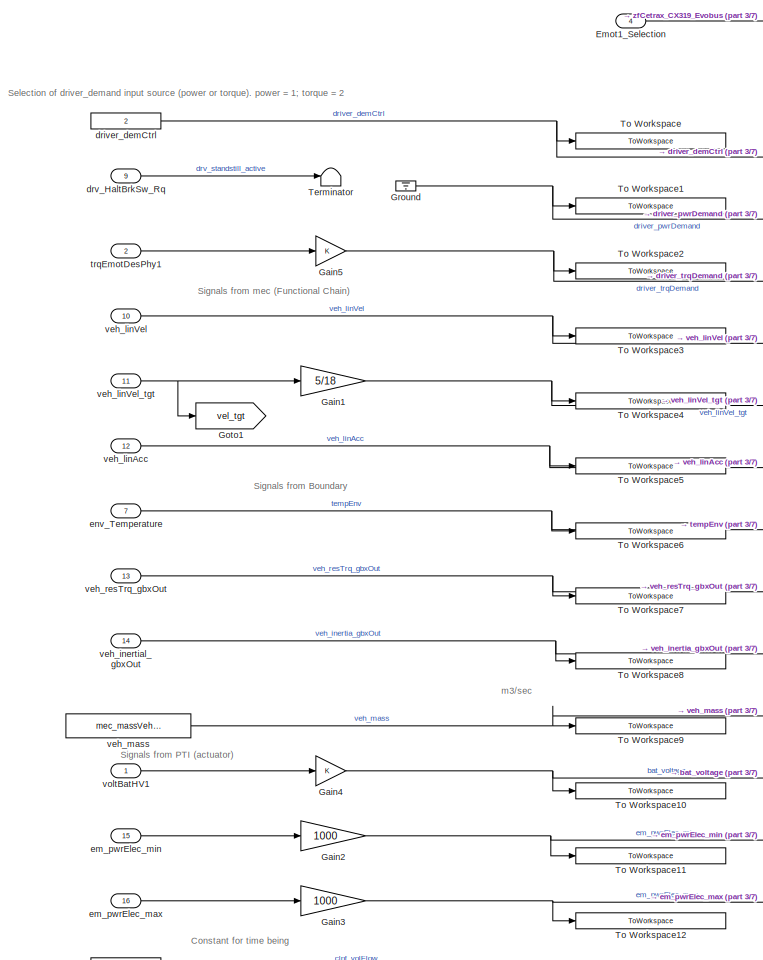
[diagram: EDB_DriveEmot_zfCetrax_CX319/Emot1_4 - part 1/7, top left region]
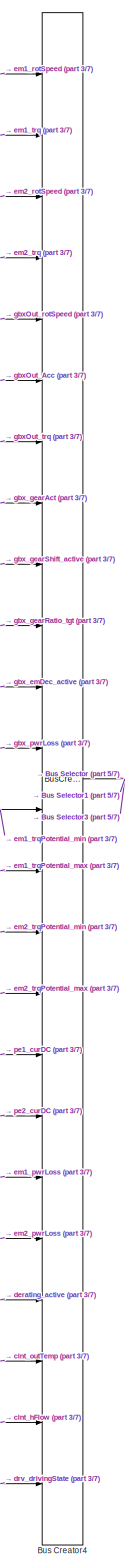
[diagram: EDB_DriveEmot_zfCetrax_CX319/Emot1_4 - part 2/7, center side, full height]
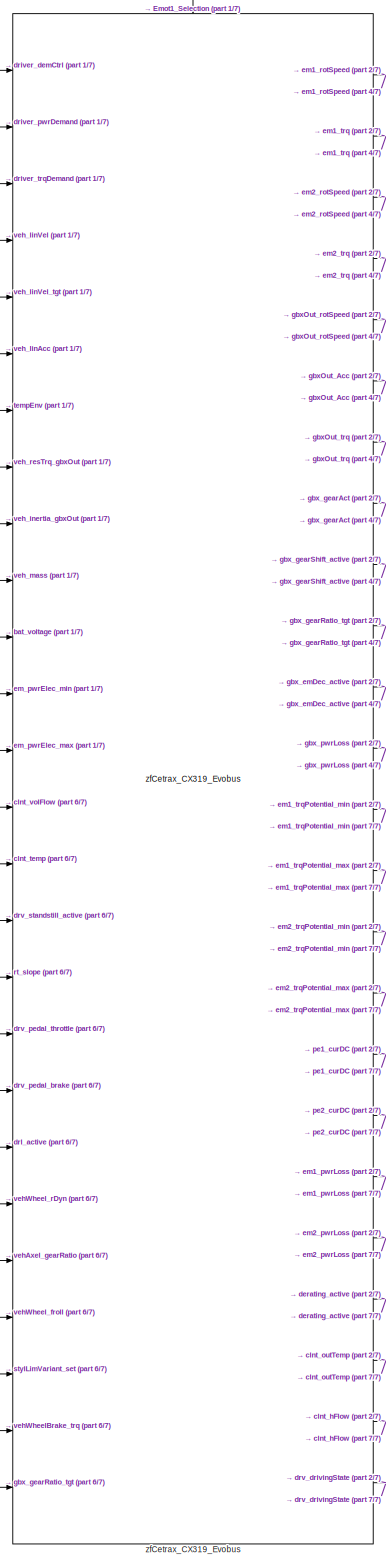
[diagram: EDB_DriveEmot_zfCetrax_CX319/Emot1_4 - part 3/7, center side, full height]
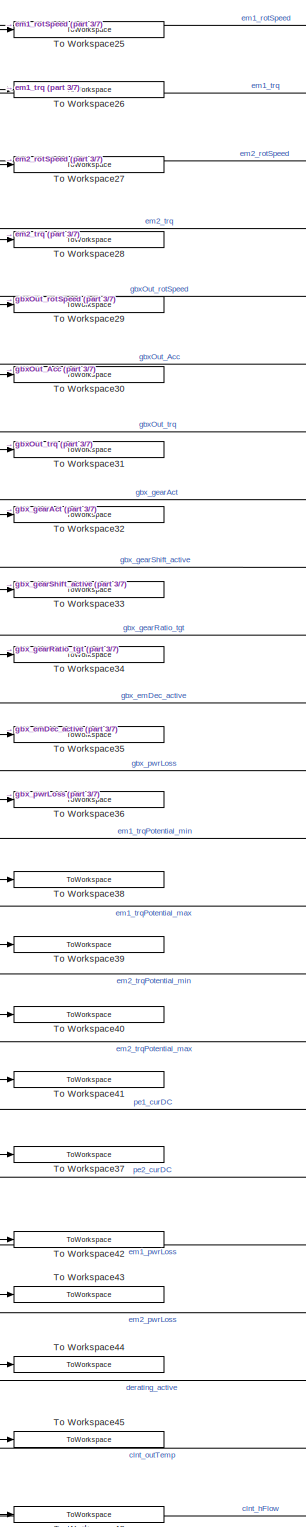
[diagram: EDB_DriveEmot_zfCetrax_CX319/Emot1_4 - part 4/7, center side, full height]
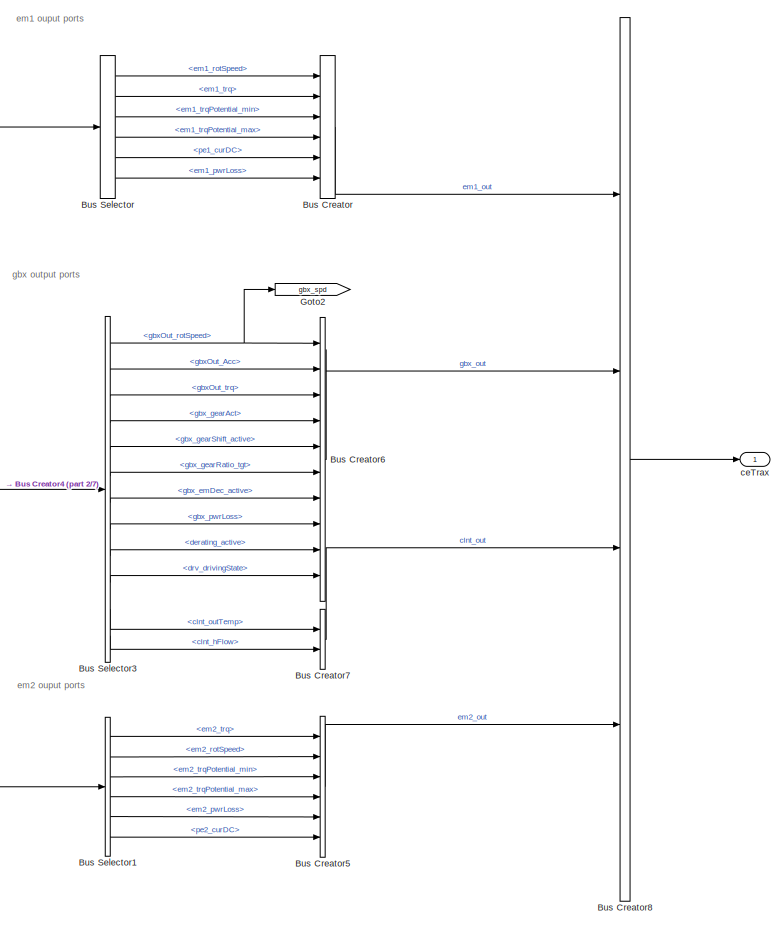
[diagram: EDB_DriveEmot_zfCetrax_CX319/Emot1_4 - part 5/7, middle right region]
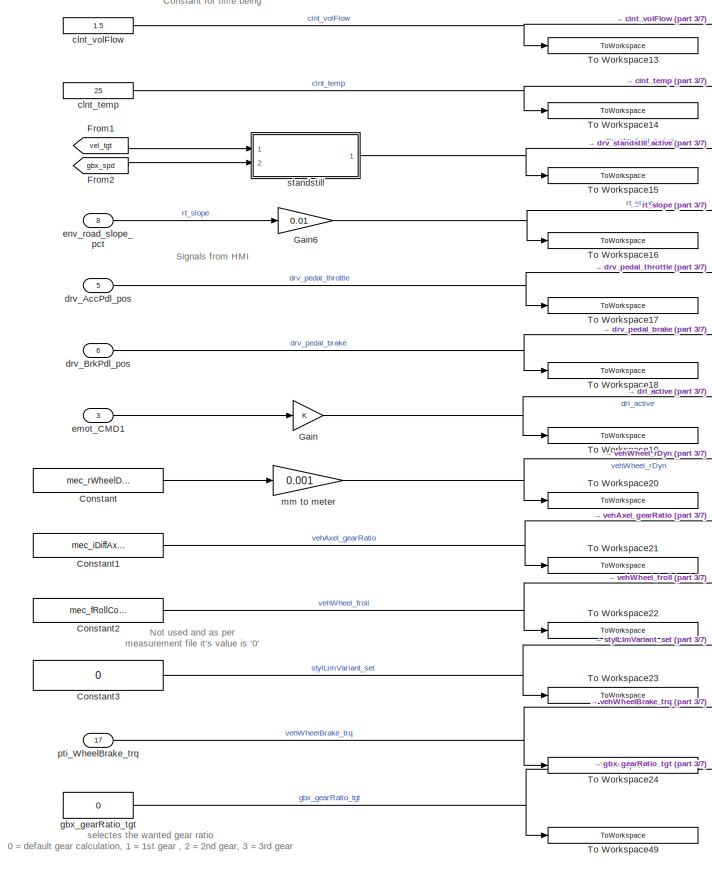
[diagram: EDB_DriveEmot_zfCetrax_CX319/Emot1_4 - part 6/7, bottom left region]
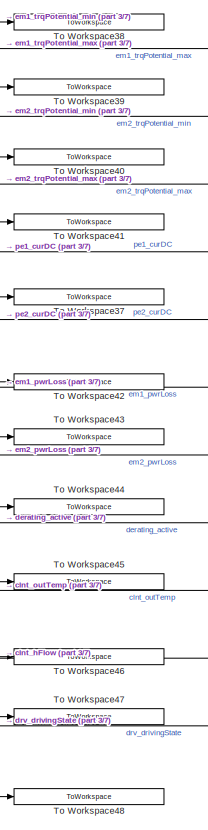
[diagram: EDB_DriveEmot_zfCetrax_CX319/Emot1_4 - part 7/7, bottom center region]
BLOCK [SubSystem] EDB_DriveEmot_zfCetrax_CX319/Emot1_4
  Ports = [17, 1]
  RequestExecContextInheritance = off
  Variant = off
BLOCK [BusCreator] EDB_DriveEmot_zfCetrax_CX319/Emot1_4/Bus Creator
  DisplayOption = bar
  InheritFromInputs = on
  Inputs = 6
  Ports = [6, 1]
BLOCK [BusCreator] EDB_DriveEmot_zfCetrax_CX319/Emot1_4/Bus Creator4
  DisplayOption = bar
  InheritFromInputs = on
  Inputs = 24
  Ports = [24, 1]
BLOCK [BusCreator] EDB_DriveEmot_zfCetrax_CX319/Emot1_4/Bus Creator5
  DisplayOption = bar
  InheritFromInputs = on
  Inputs = 6
  Ports = [6, 1]
BLOCK [BusCreator] EDB_DriveEmot_zfCetrax_CX319/Emot1_4/Bus Creator6
  DisplayOption = bar
  InheritFromInputs = on
  Inputs = 10
  Ports = [10, 1]
BLOCK [BusCreator] EDB_DriveEmot_zfCetrax_CX319/Emot1_4/Bus Creator7
  DisplayOption = bar
  InheritFromInputs = on
  Inputs = 2
  Ports = [2, 1]
BLOCK [BusCreator] EDB_DriveEmot_zfCetrax_CX319/Emot1_4/Bus Creator8
  DisplayOption = bar
  InheritFromInputs = on
  Inputs = 4
  Ports = [4, 1]
BLOCK [BusSelector] EDB_DriveEmot_zfCetrax_CX319/Emot1_4/Bus Selector
  OutputSignals = em1_rotSpeed,em1_trq,em1_trqPotential_min,em1_trqPotential_max,pe1_curDC,em1_pwrLoss
  Ports = [1, 6]
BLOCK [BusSelector] EDB_DriveEmot_zfCetrax_CX319/Emot1_4/Bus Selector1
  OutputSignals = em2_trq,em2_rotSpeed,em2_trqPotential_min,em2_trqPotential_max,em2_pwrLoss,pe2_curDC
  Ports = [1, 6]
BLOCK [BusSelector] EDB_DriveEmot_zfCetrax_CX319/Emot1_4/Bus Selector3
  OutputSignals = gbxOut_rotSpeed,gbxOut_Acc,gbxOut_trq,gbx_gearAct,gbx_gearShift_active,gbx_gearRatio_tgt,gbx_emDec_active,gbx_pwrLoss,derating_active,drv_drivingState,clnt_outTemp,clnt_hFlow
  Ports = [1, 12]
BLOCK [Constant] EDB_DriveEmot_zfCetrax_CX319/Emot1_4/Constant
  Value = mec_rWheelDriven
BLOCK [Constant] EDB_DriveEmot_zfCetrax_CX319/Emot1_4/Constant1
  Value = mec_iDiffAxle
BLOCK [Constant] EDB_DriveEmot_zfCetrax_CX319/Emot1_4/Constant2
  Value = mec_fRollCoeffOverall
BLOCK [Constant] EDB_DriveEmot_zfCetrax_CX319/Emot1_4/Constant3
  Value = 0
BLOCK [Inport] EDB_DriveEmot_zfCetrax_CX319/Emot1_4/Emot1_Selection
  IconDisplay = Port number
  Port = 4
BLOCK [From] EDB_DriveEmot_zfCetrax_CX319/Emot1_4/From1
  GotoTag = vel_tgt
BLOCK [From] EDB_DriveEmot_zfCetrax_CX319/Emot1_4/From2
  GotoTag = gbx_spd
BLOCK [Gain] EDB_DriveEmot_zfCetrax_CX319/Emot1_4/Gain
  OutDataTypeStr = Inherit: Inherit via internal rule
  ParamDataTypeStr = Inherit: Inherit via internal rule
  SaturateOnIntegerOverflow = off
BLOCK [Gain] EDB_DriveEmot_zfCetrax_CX319/Emot1_4/Gain1
  Gain = 5/18
  OutDataTypeStr = Inherit: Inherit via internal rule
  ParamDataTypeStr = Inherit: Inherit via internal rule
  SaturateOnIntegerOverflow = off
BLOCK [Gain] EDB_DriveEmot_zfCetrax_CX319/Emot1_4/Gain2
  Gain = 1000
  OutDataTypeStr = Inherit: Inherit via internal rule
  ParamDataTypeStr = Inherit: Inherit via internal rule
  SaturateOnIntegerOverflow = off
BLOCK [Gain] EDB_DriveEmot_zfCetrax_CX319/Emot1_4/Gain3
  Gain = 1000
  OutDataTypeStr = Inherit: Inherit via internal rule
  ParamDataTypeStr = Inherit: Inherit via internal rule
  SaturateOnIntegerOverflow = off
BLOCK [Gain] EDB_DriveEmot_zfCetrax_CX319/Emot1_4/Gain4
  OutDataTypeStr = Inherit: Inherit via internal rule
  ParamDataTypeStr = Inherit: Inherit via internal rule
  SaturateOnIntegerOverflow = off
BLOCK [Gain] EDB_DriveEmot_zfCetrax_CX319/Emot1_4/Gain5
  OutDataTypeStr = Inherit: Inherit via internal rule
  ParamDataTypeStr = Inherit: Inherit via internal rule
  SaturateOnIntegerOverflow = off
BLOCK [Gain] EDB_DriveEmot_zfCetrax_CX319/Emot1_4/Gain6
  Gain = 0.01
  OutDataTypeStr = Inherit: Inherit via internal rule
  ParamDataTypeStr = Inherit: Inherit via internal rule
  SaturateOnIntegerOverflow = off
BLOCK [Goto] EDB_DriveEmot_zfCetrax_CX319/Emot1_4/Goto1
  GotoTag = vel_tgt
BLOCK [Goto] EDB_DriveEmot_zfCetrax_CX319/Emot1_4/Goto2
  GotoTag = gbx_spd
BLOCK [Ground] EDB_DriveEmot_zfCetrax_CX319/Emot1_4/Ground
BLOCK [Terminator] EDB_DriveEmot_zfCetrax_CX319/Emot1_4/Terminator
BLOCK [ToWorkspace] EDB_DriveEmot_zfCetrax_CX319/Emot1_4/To Workspace
  FixptAsFi = on
  MaxDataPoints = inf
  Ports = [1]
  SampleTime = -1
  Save2DSignal = 2-D array (concatenate along first dimension)
  VariableName = FMU_in_driver_demCtrl
BLOCK [ToWorkspace] EDB_DriveEmot_zfCetrax_CX319/Emot1_4/To Workspace1
  FixptAsFi = on
  MaxDataPoints = inf
  Ports = [1]
  SampleTime = -1
  Save2DSignal = 2-D array (concatenate along first dimension)
  VariableName = FMU_in_driver_pwrDemand
BLOCK [ToWorkspace] EDB_DriveEmot_zfCetrax_CX319/Emot1_4/To Workspace10
  FixptAsFi = on
  MaxDataPoints = inf
  Ports = [1]
  SampleTime = -1
  Save2DSignal = 2-D array (concatenate along first dimension)
  VariableName = FMU_in_bat_voltage
BLOCK [ToWorkspace] EDB_DriveEmot_zfCetrax_CX319/Emot1_4/To Workspace11
  FixptAsFi = on
  MaxDataPoints = inf
  Ports = [1]
  SampleTime = -1
  Save2DSignal = 2-D array (concatenate along first dimension)
  VariableName = FMU_in_em_pwrElec_min
BLOCK [ToWorkspace] EDB_DriveEmot_zfCetrax_CX319/Emot1_4/To Workspace12
  FixptAsFi = on
  MaxDataPoints = inf
  Ports = [1]
  SampleTime = -1
  Save2DSignal = 2-D array (concatenate along first dimension)
  VariableName = FMU_in_em_pwrElec_max
BLOCK [ToWorkspace] EDB_DriveEmot_zfCetrax_CX319/Emot1_4/To Workspace13
  FixptAsFi = on
  MaxDataPoints = inf
  Ports = [1]
  SampleTime = -1
  Save2DSignal = 2-D array (concatenate along first dimension)
  VariableName = FMU_in_clnt_volFlow
BLOCK [ToWorkspace] EDB_DriveEmot_zfCetrax_CX319/Emot1_4/To Workspace14
  FixptAsFi = on
  MaxDataPoints = inf
  Ports = [1]
  SampleTime = -1
  Save2DSignal = 2-D array (concatenate along first dimension)
  VariableName = FMU_in_clnt_temp
BLOCK [ToWorkspace] EDB_DriveEmot_zfCetrax_CX319/Emot1_4/To Workspace15
  FixptAsFi = on
  MaxDataPoints = inf
  Ports = [1]
  SampleTime = -1
  Save2DSignal = 2-D array (concatenate along first dimension)
  VariableName = FMU_in_drv_standstill_active
BLOCK [ToWorkspace] EDB_DriveEmot_zfCetrax_CX319/Emot1_4/To Workspace16
  FixptAsFi = on
  MaxDataPoints = inf
  Ports = [1]
  SampleTime = -1
  Save2DSignal = 2-D array (concatenate along first dimension)
  VariableName = FMU_in_rt_slope
BLOCK [ToWorkspace] EDB_DriveEmot_zfCetrax_CX319/Emot1_4/To Workspace17
  FixptAsFi = on
  MaxDataPoints = inf
  Ports = [1]
  SampleTime = -1
  Save2DSignal = 2-D array (concatenate along first dimension)
  VariableName = FMU_in_drv_pedal_throttle
BLOCK [ToWorkspace] EDB_DriveEmot_zfCetrax_CX319/Emot1_4/To Workspace18
  FixptAsFi = on
  MaxDataPoints = inf
  Ports = [1]
  SampleTime = -1
  Save2DSignal = 2-D array (concatenate along first dimension)
  VariableName = FMU_in_drv_pedal_brake
BLOCK [ToWorkspace] EDB_DriveEmot_zfCetrax_CX319/Emot1_4/To Workspace19
  FixptAsFi = on
  MaxDataPoints = inf
  Ports = [1]
  SampleTime = -1
  Save2DSignal = 2-D array (concatenate along first dimension)
  VariableName = FMU_in_drl_active
BLOCK [ToWorkspace] EDB_DriveEmot_zfCetrax_CX319/Emot1_4/To Workspace2
  FixptAsFi = on
  MaxDataPoints = inf
  Ports = [1]
  SampleTime = -1
  Save2DSignal = 2-D array (concatenate along first dimension)
  VariableName = FMU_in_driver_trqDemand
BLOCK [ToWorkspace] EDB_DriveEmot_zfCetrax_CX319/Emot1_4/To Workspace20
  FixptAsFi = on
  MaxDataPoints = inf
  Ports = [1]
  SampleTime = -1
  Save2DSignal = 2-D array (concatenate along first dimension)
  VariableName = FMU_in_vehWheel_rDyn
BLOCK [ToWorkspace] EDB_DriveEmot_zfCetrax_CX319/Emot1_4/To Workspace21
  FixptAsFi = on
  MaxDataPoints = inf
  Ports = [1]
  SampleTime = -1
  Save2DSignal = 2-D array (concatenate along first dimension)
  VariableName = FMU_in_vehAxel_gearRatio
BLOCK [ToWorkspace] EDB_DriveEmot_zfCetrax_CX319/Emot1_4/To Workspace22
  FixptAsFi = on
  MaxDataPoints = inf
  Ports = [1]
  SampleTime = -1
  Save2DSignal = 2-D array (concatenate along first dimension)
  VariableName = FMU_in_vehWheel_froll
BLOCK [ToWorkspace] EDB_DriveEmot_zfCetrax_CX319/Emot1_4/To Workspace23
  FixptAsFi = on
  MaxDataPoints = inf
  Ports = [1]
  SampleTime = -1
  Save2DSignal = 2-D array (concatenate along first dimension)
  VariableName = FMU_in_styLimVariant_set
BLOCK [ToWorkspace] EDB_DriveEmot_zfCetrax_CX319/Emot1_4/To Workspace24
  FixptAsFi = on
  MaxDataPoints = inf
  Ports = [1]
  SampleTime = -1
  Save2DSignal = 2-D array (concatenate along first dimension)
  VariableName = FMU_in_vehWheelBrake_trq
BLOCK [ToWorkspace] EDB_DriveEmot_zfCetrax_CX319/Emot1_4/To Workspace25
  FixptAsFi = on
  MaxDataPoints = inf
  Ports = [1]
  SampleTime = -1
  Save2DSignal = 2-D array (concatenate along first dimension)
  VariableName = FMU_out_em1_rotSpeed
BLOCK [ToWorkspace] EDB_DriveEmot_zfCetrax_CX319/Emot1_4/To Workspace26
  FixptAsFi = on
  MaxDataPoints = inf
  Ports = [1]
  SampleTime = -1
  Save2DSignal = 2-D array (concatenate along first dimension)
  VariableName = FMU_out_em1_trq
BLOCK [ToWorkspace] EDB_DriveEmot_zfCetrax_CX319/Emot1_4/To Workspace27
  FixptAsFi = on
  MaxDataPoints = inf
  Ports = [1]
  SampleTime = -1
  Save2DSignal = 2-D array (concatenate along first dimension)
  VariableName = FMU_out_em2_rotSpeed
BLOCK [ToWorkspace] EDB_DriveEmot_zfCetrax_CX319/Emot1_4/To Workspace28
  FixptAsFi = on
  MaxDataPoints = inf
  Ports = [1]
  SampleTime = -1
  Save2DSignal = 2-D array (concatenate along first dimension)
  VariableName = FMU_out_em2_trq
BLOCK [ToWorkspace] EDB_DriveEmot_zfCetrax_CX319/Emot1_4/To Workspace29
  FixptAsFi = on
  MaxDataPoints = inf
  Ports = [1]
  SampleTime = -1
  Save2DSignal = 2-D array (concatenate along first dimension)
  VariableName = FMU_out_gbxOut_rotSpeed
BLOCK [ToWorkspace] EDB_DriveEmot_zfCetrax_CX319/Emot1_4/To Workspace3
  FixptAsFi = on
  MaxDataPoints = inf
  Ports = [1]
  SampleTime = -1
  Save2DSignal = 2-D array (concatenate along first dimension)
  VariableName = FMU_in_veh_linVel
BLOCK [ToWorkspace] EDB_DriveEmot_zfCetrax_CX319/Emot1_4/To Workspace30
  FixptAsFi = on
  MaxDataPoints = inf
  Ports = [1]
  SampleTime = -1
  Save2DSignal = 2-D array (concatenate along first dimension)
  VariableName = FMU_out_gbxOut_Acc
BLOCK [ToWorkspace] EDB_DriveEmot_zfCetrax_CX319/Emot1_4/To Workspace31
  FixptAsFi = on
  MaxDataPoints = inf
  Ports = [1]
  SampleTime = -1
  Save2DSignal = 2-D array (concatenate along first dimension)
  VariableName = FMU_out_gbxOut_trq
BLOCK [ToWorkspace] EDB_DriveEmot_zfCetrax_CX319/Emot1_4/To Workspace32
  FixptAsFi = on
  MaxDataPoints = inf
  Ports = [1]
  SampleTime = -1
  Save2DSignal = 2-D array (concatenate along first dimension)
  VariableName = FMU_out_gbx_gearAct
BLOCK [ToWorkspace] EDB_DriveEmot_zfCetrax_CX319/Emot1_4/To Workspace33
  FixptAsFi = on
  MaxDataPoints = inf
  Ports = [1]
  SampleTime = -1
  Save2DSignal = 2-D array (concatenate along first dimension)
  VariableName = FMU_out_gbx_gearShift_active
BLOCK [ToWorkspace] EDB_DriveEmot_zfCetrax_CX319/Emot1_4/To Workspace34
  FixptAsFi = on
  MaxDataPoints = inf
  Ports = [1]
  SampleTime = -1
  Save2DSignal = 2-D array (concatenate along first dimension)
  VariableName = FMU_out_gbx_gearRatio_tgt
BLOCK [ToWorkspace] EDB_DriveEmot_zfCetrax_CX319/Emot1_4/To Workspace35
  FixptAsFi = on
  MaxDataPoints = inf
  Ports = [1]
  SampleTime = -1
  Save2DSignal = 2-D array (concatenate along first dimension)
  VariableName = FMU_out_gbx_emDec_active
BLOCK [ToWorkspace] EDB_DriveEmot_zfCetrax_CX319/Emot1_4/To Workspace36
  FixptAsFi = on
  MaxDataPoints = inf
  Ports = [1]
  SampleTime = -1
  Save2DSignal = 2-D array (concatenate along first dimension)
  VariableName = FMU_out_gbx_pwrLoss
BLOCK [ToWorkspace] EDB_DriveEmot_zfCetrax_CX319/Emot1_4/To Workspace37
  FixptAsFi = on
  MaxDataPoints = inf
  Ports = [1]
  SampleTime = -1
  Save2DSignal = 2-D array (concatenate along first dimension)
  VariableName = FMU_out_pe1_curDC
BLOCK [ToWorkspace] EDB_DriveEmot_zfCetrax_CX319/Emot1_4/To Workspace38
  FixptAsFi = on
  MaxDataPoints = inf
  Ports = [1]
  SampleTime = -1
  Save2DSignal = 2-D array (concatenate along first dimension)
  VariableName = FMU_out_em1_trqPotential_min
BLOCK [ToWorkspace] EDB_DriveEmot_zfCetrax_CX319/Emot1_4/To Workspace39
  FixptAsFi = on
  MaxDataPoints = inf
  Ports = [1]
  SampleTime = -1
  Save2DSignal = 2-D array (concatenate along first dimension)
  VariableName = FMU_out_em1_trqPotential_max
BLOCK [ToWorkspace] EDB_DriveEmot_zfCetrax_CX319/Emot1_4/To Workspace4
  FixptAsFi = on
  MaxDataPoints = inf
  Ports = [1]
  SampleTime = -1
  Save2DSignal = 2-D array (concatenate along first dimension)
  VariableName = FMU_in_veh_linVel_tgt
BLOCK [ToWorkspace] EDB_DriveEmot_zfCetrax_CX319/Emot1_4/To Workspace40
  FixptAsFi = on
  MaxDataPoints = inf
  Ports = [1]
  SampleTime = -1
  Save2DSignal = 2-D array (concatenate along first dimension)
  VariableName = FMU_out_em2_trqPotential_min
BLOCK [ToWorkspace] EDB_DriveEmot_zfCetrax_CX319/Emot1_4/To Workspace41
  FixptAsFi = on
  MaxDataPoints = inf
  Ports = [1]
  SampleTime = -1
  Save2DSignal = 2-D array (concatenate along first dimension)
  VariableName = FMU_out_em2_trqPotential_max
BLOCK [ToWorkspace] EDB_DriveEmot_zfCetrax_CX319/Emot1_4/To Workspace42
  FixptAsFi = on
  MaxDataPoints = inf
  Ports = [1]
  SampleTime = -1
  Save2DSignal = 2-D array (concatenate along first dimension)
  VariableName = FMU_out_pe2_curDC
BLOCK [ToWorkspace] EDB_DriveEmot_zfCetrax_CX319/Emot1_4/To Workspace43
  FixptAsFi = on
  MaxDataPoints = inf
  Ports = [1]
  SampleTime = -1
  Save2DSignal = 2-D array (concatenate along first dimension)
  VariableName = FMU_out_em1_pwrLoss
BLOCK [ToWorkspace] EDB_DriveEmot_zfCetrax_CX319/Emot1_4/To Workspace44
  FixptAsFi = on
  MaxDataPoints = inf
  Ports = [1]
  SampleTime = -1
  Save2DSignal = 2-D array (concatenate along first dimension)
  VariableName = FMU_out_em2_pwrLoss
BLOCK [ToWorkspace] EDB_DriveEmot_zfCetrax_CX319/Emot1_4/To Workspace45
  FixptAsFi = on
  MaxDataPoints = inf
  Ports = [1]
  SampleTime = -1
  Save2DSignal = 2-D array (concatenate along first dimension)
  VariableName = FMU_out_derating_active
BLOCK [ToWorkspace] EDB_DriveEmot_zfCetrax_CX319/Emot1_4/To Workspace46
  FixptAsFi = on
  MaxDataPoints = inf
  Ports = [1]
  SampleTime = -1
  Save2DSignal = 2-D array (concatenate along first dimension)
  VariableName = FMU_out_clnt_outTemp
BLOCK [ToWorkspace] EDB_DriveEmot_zfCetrax_CX319/Emot1_4/To Workspace47
  FixptAsFi = on
  MaxDataPoints = inf
  Ports = [1]
  SampleTime = -1
  Save2DSignal = 2-D array (concatenate along first dimension)
  VariableName = FMU_out_clnt_hflow
BLOCK [ToWorkspace] EDB_DriveEmot_zfCetrax_CX319/Emot1_4/To Workspace48
  FixptAsFi = on
  MaxDataPoints = inf
  Ports = [1]
  SampleTime = -1
  Save2DSignal = 2-D array (concatenate along first dimension)
  VariableName = FMU_out_drv_drivingState
BLOCK [ToWorkspace] EDB_DriveEmot_zfCetrax_CX319/Emot1_4/To Workspace49
  FixptAsFi = on
  MaxDataPoints = inf
  Ports = [1]
  SampleTime = -1
  Save2DSignal = 2-D array (concatenate along first dimension)
  VariableName = FMU_in_gbx_gearRatio_tgt
BLOCK [ToWorkspace] EDB_DriveEmot_zfCetrax_CX319/Emot1_4/To Workspace5
  FixptAsFi = on
  MaxDataPoints = inf
  Ports = [1]
  SampleTime = -1
  Save2DSignal = 2-D array (concatenate along first dimension)
  VariableName = FMU_in_veh_linAcc
BLOCK [ToWorkspace] EDB_DriveEmot_zfCetrax_CX319/Emot1_4/To Workspace6
  FixptAsFi = on
  MaxDataPoints = inf
  Ports = [1]
  SampleTime = -1
  Save2DSignal = 2-D array (concatenate along first dimension)
  VariableName = FMU_in_tempEnv
BLOCK [ToWorkspace] EDB_DriveEmot_zfCetrax_CX319/Emot1_4/To Workspace7
  FixptAsFi = on
  MaxDataPoints = inf
  Ports = [1]
  SampleTime = -1
  Save2DSignal = 2-D array (concatenate along first dimension)
  VariableName = FMU_in_veh_resTrq_gbxOut
BLOCK [ToWorkspace] EDB_DriveEmot_zfCetrax_CX319/Emot1_4/To Workspace8
  FixptAsFi = on
  MaxDataPoints = inf
  Ports = [1]
  SampleTime = -1
  Save2DSignal = 2-D array (concatenate along first dimension)
  VariableName = FMU_in_veh_inertia_gbxOut
BLOCK [ToWorkspace] EDB_DriveEmot_zfCetrax_CX319/Emot1_4/To Workspace9
  FixptAsFi = on
  MaxDataPoints = inf
  Ports = [1]
  SampleTime = -1
  Save2DSignal = 2-D array (concatenate along first dimension)
  VariableName = FMU_in_veh_mass
BLOCK [Outport] EDB_DriveEmot_zfCetrax_CX319/Emot1_4/ceTrax
  IconDisplay = Port number
BLOCK [Constant] EDB_DriveEmot_zfCetrax_CX319/Emot1_4/clnt_temp
  Value = 25
BLOCK [Constant] EDB_DriveEmot_zfCetrax_CX319/Emot1_4/clnt_volFlow
  Value = 1.5
BLOCK [Constant] EDB_DriveEmot_zfCetrax_CX319/Emot1_4/driver_demCtrl
  Value = 2
BLOCK [Inport] EDB_DriveEmot_zfCetrax_CX319/Emot1_4/drv_AccPdl_pos
  IconDisplay = Port number
  Port = 5
BLOCK [Inport] EDB_DriveEmot_zfCetrax_CX319/Emot1_4/drv_BrkPdl_pos
  IconDisplay = Port number
  Port = 6
BLOCK [Inport] EDB_DriveEmot_zfCetrax_CX319/Emot1_4/drv_HaltBrkSw_Rq
  IconDisplay = Port number
  Port = 9
BLOCK [Inport] EDB_DriveEmot_zfCetrax_CX319/Emot1_4/em_pwrElec_max
  IconDisplay = Port number
  Port = 16
BLOCK [Inport] EDB_DriveEmot_zfCetrax_CX319/Emot1_4/em_pwrElec_min
  IconDisplay = Port number
  Port = 15
BLOCK [Inport] EDB_DriveEmot_zfCetrax_CX319/Emot1_4/emot_CMD1
  IconDisplay = Port number
  Port = 3
BLOCK [Inport] EDB_DriveEmot_zfCetrax_CX319/Emot1_4/env_Temperature
  IconDisplay = Port number
  Port = 7
BLOCK [Inport] EDB_DriveEmot_zfCetrax_CX319/Emot1_4/env_road_slope_pct
  IconDisplay = Port number
  Port = 8
BLOCK [Constant] EDB_DriveEmot_zfCetrax_CX319/Emot1_4/gbx_gearRatio_tgt
  Value = 0
BLOCK [Gain] EDB_DriveEmot_zfCetrax_CX319/Emot1_4/mm to meter
  Gain = 0.001
  OutDataTypeStr = Inherit: Inherit via internal rule
  ParamDataTypeStr = Inherit: Inherit via internal rule
  SaturateOnIntegerOverflow = off
BLOCK [Inport] EDB_DriveEmot_zfCetrax_CX319/Emot1_4/pti_WheelBrake_trq
  IconDisplay = Port number
  Port = 17
BLOCK [SubSystem] EDB_DriveEmot_zfCetrax_CX319/Emot1_4/standstill
  Ports = [2, 1]
  RequestExecContextInheritance = off
  Variant = off
BLOCK [Constant] EDB_DriveEmot_zfCetrax_CX319/Emot1_4/standstill/Constant4
  Value = 0.1
BLOCK [Constant] EDB_DriveEmot_zfCetrax_CX319/Emot1_4/standstill/Constant5
  Value = 0.1
BLOCK [DataTypeConversion] EDB_DriveEmot_zfCetrax_CX319/Emot1_4/standstill/Data Type Conversion
  OutDataTypeStr = double
  RndMeth = Floor
  SaturateOnIntegerOverflow = off
BLOCK [DataTypeConversion] EDB_DriveEmot_zfCetrax_CX319/Emot1_4/standstill/Data Type Conversion1
  OutDataTypeStr = double
  RndMeth = Floor
  SaturateOnIntegerOverflow = off
BLOCK [DataTypeConversion] EDB_DriveEmot_zfCetrax_CX319/Emot1_4/standstill/Data Type Conversion2
  OutDataTypeStr = boolean
  RndMeth = Floor
  SaturateOnIntegerOverflow = off
BLOCK [DataTypeConversion] EDB_DriveEmot_zfCetrax_CX319/Emot1_4/standstill/Data Type Conversion3
  OutDataTypeStr = double
  RndMeth = Floor
  SaturateOnIntegerOverflow = off
BLOCK [Delay] EDB_DriveEmot_zfCetrax_CX319/Emot1_4/standstill/Delay
  DelayLength = 10
  InputPortMap = u0
  Ports = [1, 1]
BLOCK [Logic] EDB_DriveEmot_zfCetrax_CX319/Emot1_4/standstill/Logical Operator
  AllPortsSameDT = off
  Operator = NOT
  OutDataTypeStr = boolean
  Ports = [1, 1]
BLOCK [Product] EDB_DriveEmot_zfCetrax_CX319/Emot1_4/standstill/Product
  InputSameDT = off
  OutDataTypeStr = Inherit: Inherit via internal rule
  Ports = [2, 1]
  RndMeth = Floor
  SaturateOnIntegerOverflow = off
BLOCK [RelationalOperator] EDB_DriveEmot_zfCetrax_CX319/Emot1_4/standstill/Relational Operator
  InputSameDT = off
  OutDataTypeStr = boolean
  Ports = [2, 1]
BLOCK [RelationalOperator] EDB_DriveEmot_zfCetrax_CX319/Emot1_4/standstill/Relational Operator1
  InputSameDT = off
  Operator = <=
  OutDataTypeStr = boolean
  Ports = [2, 1]
BLOCK [Reference] EDB_DriveEmot_zfCetrax_CX319/Emot1_4/standstill/S-R Flip-Flop  REF=simulink_extras/Flip Flops/S-R
Flip-Flop
  Ports = [2, 2]
  SourceBlock = simulink_extras/Flip Flops/S-R\nFlip-Flop
  SourceType = SRFlipFlop
BLOCK [Terminator] EDB_DriveEmot_zfCetrax_CX319/Emot1_4/standstill/Terminator1
BLOCK [UnitDelay] EDB_DriveEmot_zfCetrax_CX319/Emot1_4/standstill/Unit Delay
  InputProcessing = Elements as channels (sample based)
  SampleTime = -1
BLOCK [Inport] EDB_DriveEmot_zfCetrax_CX319/Emot1_4/standstill/gbx_spd
  IconDisplay = Port number
  Port = 2
BLOCK [Outport] EDB_DriveEmot_zfCetrax_CX319/Emot1_4/standstill/standstill_active
  IconDisplay = Port number
BLOCK [Inport] EDB_DriveEmot_zfCetrax_CX319/Emot1_4/standstill/vel_tgt
  IconDisplay = Port number
BLOCK [Inport] EDB_DriveEmot_zfCetrax_CX319/Emot1_4/trqEmotDesPhy1
  IconDisplay = Port number
  Port = 2
BLOCK [Inport] EDB_DriveEmot_zfCetrax_CX319/Emot1_4/veh_inertial_gbxOut
  IconDisplay = Port number
  Port = 14
BLOCK [Inport] EDB_DriveEmot_zfCetrax_CX319/Emot1_4/veh_linAcc
  IconDisplay = Port number
  Port = 12
BLOCK [Inport] EDB_DriveEmot_zfCetrax_CX319/Emot1_4/veh_linVel
  IconDisplay = Port number
  Port = 10
BLOCK [Inport] EDB_DriveEmot_zfCetrax_CX319/Emot1_4/veh_linVel_tgt
  IconDisplay = Port number
  Port = 11
BLOCK [Constant] EDB_DriveEmot_zfCetrax_CX319/Emot1_4/veh_mass
  Value = mec_massVehicle_kg
BLOCK [Inport] EDB_DriveEmot_zfCetrax_CX319/Emot1_4/veh_resTrq_gbxOut
  IconDisplay = Port number
  Port = 13
BLOCK [Inport] EDB_DriveEmot_zfCetrax_CX319/Emot1_4/voltBatHV1
  IconDisplay = Port number
BLOCK [Reference] EDB_DriveEmot_zfCetrax_CX319/Emot1_4/zfCetrax_CX319_Evobus  REF=Enrg_conv_El_to_Mec_zfCetrax/zfCetrax_CX319_Evobus
  Ports = [26, 24, 1]
  SourceBlock = Enrg_conv_El_to_Mec_zfCetrax/zfCetrax_CX319_Evobus
  SourceType = MapModule
BLOCK [From] EDB_DriveEmot_zfCetrax_CX319/From
  GotoTag = pe1_curDC
BLOCK [From] EDB_DriveEmot_zfCetrax_CX319/From1
  GotoTag = voltBat
BLOCK [From] EDB_DriveEmot_zfCetrax_CX319/From2
  GotoTag = zfCetrax_drvEmotWasteHear_power
BLOCK [From] EDB_DriveEmot_zfCetrax_CX319/From23
  GotoTag = Emot1_Selection
BLOCK [From] EDB_DriveEmot_zfCetrax_CX319/From3
  GotoTag = pe2_curDC
BLOCK [From] EDB_DriveEmot_zfCetrax_CX319/From4
  GotoTag = voltBat
BLOCK [From] EDB_DriveEmot_zfCetrax_CX319/From5
  GotoTag = voltBat
BLOCK [From] EDB_DriveEmot_zfCetrax_CX319/From6
  GotoTag = zfCetrax_driveInverterWasteHeat_power
BLOCK [From] EDB_DriveEmot_zfCetrax_CX319/From7
  GotoTag = em1_trq
BLOCK [From] EDB_DriveEmot_zfCetrax_CX319/From8
  GotoTag = em2_trq
BLOCK [Gain] EDB_DriveEmot_zfCetrax_CX319/Gain
  OutDataTypeStr = Inherit: Inherit via internal rule
  ParamDataTypeStr = Inherit: Inherit via internal rule
  SaturateOnIntegerOverflow = off
BLOCK [Gain] EDB_DriveEmot_zfCetrax_CX319/Gain1
  OutDataTypeStr = Inherit: Inherit via internal rule
  ParamDataTypeStr = Inherit: Inherit via internal rule
  SaturateOnIntegerOverflow = off
BLOCK [Gain] EDB_DriveEmot_zfCetrax_CX319/Gain2
  OutDataTypeStr = Inherit: Inherit via internal rule
  ParamDataTypeStr = Inherit: Inherit via internal rule
  SaturateOnIntegerOverflow = off
BLOCK [Gain] EDB_DriveEmot_zfCetrax_CX319/Gain3
  OutDataTypeStr = Inherit: Inherit via internal rule
  ParamDataTypeStr = Inherit: Inherit via internal rule
  SaturateOnIntegerOverflow = off
BLOCK [Gain] EDB_DriveEmot_zfCetrax_CX319/Gain4
  OutDataTypeStr = Inherit: Inherit via internal rule
  ParamDataTypeStr = Inherit: Inherit via internal rule
  SaturateOnIntegerOverflow = off
BLOCK [Goto] EDB_DriveEmot_zfCetrax_CX319/Goto
  GotoTag = Emot1_Selection
BLOCK [Goto] EDB_DriveEmot_zfCetrax_CX319/Goto1
  GotoTag = Emot2_Selection
BLOCK [Goto] EDB_DriveEmot_zfCetrax_CX319/Goto10
  GotoTag = em1_trq
BLOCK [Goto] EDB_DriveEmot_zfCetrax_CX319/Goto2
  GotoTag = Emot3_Selection
BLOCK [Goto] EDB_DriveEmot_zfCetrax_CX319/Goto3
  GotoTag = Emot4_Selection
BLOCK [Goto] EDB_DriveEmot_zfCetrax_CX319/Goto4
  GotoTag = voltBat
BLOCK [Goto] EDB_DriveEmot_zfCetrax_CX319/Goto5
  GotoTag = pe1_curDC
BLOCK [Goto] EDB_DriveEmot_zfCetrax_CX319/Goto6
  GotoTag = pe2_curDC
BLOCK [Goto] EDB_DriveEmot_zfCetrax_CX319/Goto7
  GotoTag = zfCetrax_drvEmotWasteHear_power
BLOCK [Goto] EDB_DriveEmot_zfCetrax_CX319/Goto8
  GotoTag = zfCetrax_driveInverterWasteHeat_power
BLOCK [Goto] EDB_DriveEmot_zfCetrax_CX319/Goto9
  GotoTag = em2_trq
BLOCK [ManualSwitch] EDB_DriveEmot_zfCetrax_CX319/Manual Switch
  CurrentSetting = 0
BLOCK [SubSystem] EDB_DriveEmot_zfCetrax_CX319/MotorSelection
  Ports = [0, 4]
  RequestExecContextInheritance = off
  Variant = off
BLOCK [Outport] EDB_DriveEmot_zfCetrax_CX319/MotorSelection/Emot1_Selection
  IconDisplay = Port number
BLOCK [Outport] EDB_DriveEmot_zfCetrax_CX319/MotorSelection/Emot2_Selection
  IconDisplay = Port number
  Port = 2
BLOCK [Outport] EDB_DriveEmot_zfCetrax_CX319/MotorSelection/Emot3_Selection
  IconDisplay = Port number
  Port = 3
BLOCK [Outport] EDB_DriveEmot_zfCetrax_CX319/MotorSelection/Emot4_Selection
  IconDisplay = Port number
  Port = 4
BLOCK [Constant] EDB_DriveEmot_zfCetrax_CX319/MotorSelection/MidAxle
  Value = FirstDrivenAxleNoOfEmot
BLOCK [Constant] EDB_DriveEmot_zfCetrax_CX319/MotorSelection/RearAxle
  Value = SecondDrivenAxleNoOfEmot
BLOCK [SubSystem] EDB_DriveEmot_zfCetrax_CX319/MotorSelection/Truth Table
  ErrorFcn = Stateflow.Translate.translate
  PermitHierarchicalResolution = ExplicitOnly
  Ports = [2, 4]
  RequestExecContextInheritance = off
  SFBlockType = Truth Table
  TreatAsAtomicUnit = on
  Variant = off
BLOCK [Demux] EDB_DriveEmot_zfCetrax_CX319/MotorSelection/Truth Table/ Demux 
  Outputs = 1
  Ports = [1, 1]
BLOCK [S-Function] EDB_DriveEmot_zfCetrax_CX319/MotorSelection/Truth Table/ SFunction 
  EnableBusSupport = off
  FunctionName = sf_sfun
  PortCounts = [2 5]
  Ports = [2, 5]
  SFunctionDeploymentMode = off
  Tag = Stateflow S-Function Enrg_conv_El_to_Mec_zfCetrax 1
BLOCK [Terminator] EDB_DriveEmot_zfCetrax_CX319/MotorSelection/Truth Table/ Terminator 
BLOCK [Inport] EDB_DriveEmot_zfCetrax_CX319/MotorSelection/Truth Table/u1
  IconDisplay = Port number
BLOCK [Inport] EDB_DriveEmot_zfCetrax_CX319/MotorSelection/Truth Table/u2
  IconDisplay = Port number
  Port = 2
BLOCK [Outport] EDB_DriveEmot_zfCetrax_CX319/MotorSelection/Truth Table/y1
  IconDisplay = Port number
BLOCK [Outport] EDB_DriveEmot_zfCetrax_CX319/MotorSelection/Truth Table/y2
  IconDisplay = Port number
  Port = 2
BLOCK [Outport] EDB_DriveEmot_zfCetrax_CX319/MotorSelection/Truth Table/y3
  IconDisplay = Port number
  Port = 3
BLOCK [Outport] EDB_DriveEmot_zfCetrax_CX319/MotorSelection/Truth Table/y4
  IconDisplay = Port number
  Port = 4
BLOCK [Product] EDB_DriveEmot_zfCetrax_CX319/Product
  InputSameDT = off
  OutDataTypeStr = Inherit: Inherit via internal rule
  Ports = [2, 1]
  RndMeth = Floor
  SaturateOnIntegerOverflow = off
BLOCK [Product] EDB_DriveEmot_zfCetrax_CX319/Product1
  InputSameDT = off
  OutDataTypeStr = Inherit: Inherit via internal rule
  Ports = [2, 1]
  RndMeth = Floor
  SaturateOnIntegerOverflow = off
BLOCK [Product] EDB_DriveEmot_zfCetrax_CX319/Product2
  InputSameDT = off
  OutDataTypeStr = Inherit: Inherit via internal rule
  Ports = [2, 1]
  RndMeth = Floor
  SaturateOnIntegerOverflow = off
BLOCK [Product] EDB_DriveEmot_zfCetrax_CX319/Product3
  InputSameDT = off
  OutDataTypeStr = Inherit: Inherit via internal rule
  Ports = [2, 1]
  RndMeth = Floor
  SaturateOnIntegerOverflow = off
BLOCK [Inport] EDB_DriveEmot_zfCetrax_CX319/drv_AccPdl_pos
  IconDisplay = Port number
  Port = 6
BLOCK [Inport] EDB_DriveEmot_zfCetrax_CX319/drv_BrkPdl_pos
  IconDisplay = Port number
  Port = 7
BLOCK [Inport] EDB_DriveEmot_zfCetrax_CX319/drv_HaltBrkSw_Rq
  IconDisplay = Port number
  Port = 10
BLOCK [Inport] EDB_DriveEmot_zfCetrax_CX319/drv_v_des_max_kmh
  IconDisplay = Port number
  Port = 12
BLOCK [Inport] EDB_DriveEmot_zfCetrax_CX319/edcu_EMD1_CMD_ControlMode
  IconDisplay = Port number
  Port = 5
BLOCK [Inport] EDB_DriveEmot_zfCetrax_CX319/edcu_EMD1_CMD_TorqueRefLim
  IconDisplay = Port number
  Port = 4
BLOCK [Inport] EDB_DriveEmot_zfCetrax_CX319/env_Temperature
  IconDisplay = Port number
  Port = 8
BLOCK [Inport] EDB_DriveEmot_zfCetrax_CX319/env_road_slope_pct
  IconDisplay = Port number
  Port = 9
BLOCK [Outport] EDB_DriveEmot_zfCetrax_CX319/hvs_dcLink_drive_emot_current
  IconDisplay = Port number
  Port = 3
BLOCK [Outport] EDB_DriveEmot_zfCetrax_CX319/hvs_driveInverterWasteHeat_power
  IconDisplay = Port number
BLOCK [Outport] EDB_DriveEmot_zfCetrax_CX319/hvs_drvEmotWasteHeat_power
  IconDisplay = Port number
  Port = 2
BLOCK [Inport] EDB_DriveEmot_zfCetrax_CX319/hvs_veh_GenericLoss_transAcc
  IconDisplay = Port number
  Port = 13
BLOCK [Inport] EDB_DriveEmot_zfCetrax_CX319/hvs_veh_GenericLoss_transVel
  IconDisplay = Port number
  Port = 11
BLOCK [Outport] EDB_DriveEmot_zfCetrax_CX319/hvs_zfCetrax_derating_active_info
  IconDisplay = Port number
  Port = 22
BLOCK [Outport] EDB_DriveEmot_zfCetrax_CX319/hvs_zfCetrax_driveInverterWasteHeat_power
  IconDisplay = Port number
  Port = 14
BLOCK [Outport] EDB_DriveEmot_zfCetrax_CX319/hvs_zfCetrax_drive_emot_voltage
  IconDisplay = Port number
  Port = 5
BLOCK [Outport] EDB_DriveEmot_zfCetrax_CX319/hvs_zfCetrax_drvEmotWasteHeat_power
  IconDisplay = Port number
  Port = 13
BLOCK [Outport] EDB_DriveEmot_zfCetrax_CX319/hvs_zfCetrax_drv_drivingState_info
  IconDisplay = Port number
  Port = 28
BLOCK [Outport] EDB_DriveEmot_zfCetrax_CX319/hvs_zfCetrax_em1_rotSpeed
  IconDisplay = Port number
  Port = 11
BLOCK [Outport] EDB_DriveEmot_zfCetrax_CX319/hvs_zfCetrax_em1_trq
  IconDisplay = Port number
  Port = 15
BLOCK [Outport] EDB_DriveEmot_zfCetrax_CX319/hvs_zfCetrax_em1_trqPotential_max
  IconDisplay = Port number
  Port = 8
BLOCK [Outport] EDB_DriveEmot_zfCetrax_CX319/hvs_zfCetrax_em1_trqPotential_min
  IconDisplay = Port number
  Port = 7
BLOCK [Outport] EDB_DriveEmot_zfCetrax_CX319/hvs_zfCetrax_em2_rotSpeed
  IconDisplay = Port number
  Port = 12
BLOCK [Outport] EDB_DriveEmot_zfCetrax_CX319/hvs_zfCetrax_em2_trq
  IconDisplay = Port number
  Port = 16
BLOCK [Outport] EDB_DriveEmot_zfCetrax_CX319/hvs_zfCetrax_em2_trqPotential_max
  IconDisplay = Port number
  Port = 10
BLOCK [Outport] EDB_DriveEmot_zfCetrax_CX319/hvs_zfCetrax_em2_trqPotential_min
  IconDisplay = Port number
  Port = 9
BLOCK [Outport] EDB_DriveEmot_zfCetrax_CX319/hvs_zfCetrax_gbxOut_Acc_info
  IconDisplay = Port number
  Port = 18
BLOCK [Inport] EDB_DriveEmot_zfCetrax_CX319/hvs_zfCetrax_gbxOut_resTrq
  IconDisplay = Port number
  Port = 14
BLOCK [Outport] EDB_DriveEmot_zfCetrax_CX319/hvs_zfCetrax_gbxOut_rotSpeed
  IconDisplay = Port number
  Port = 24
BLOCK [Outport] EDB_DriveEmot_zfCetrax_CX319/hvs_zfCetrax_gbxOut_rotSpeed_info
  IconDisplay = Port number
  Port = 17
BLOCK [Outport] EDB_DriveEmot_zfCetrax_CX319/hvs_zfCetrax_gbxOut_torque
  IconDisplay = Port number
  Port = 4
BLOCK [Inport] EDB_DriveEmot_zfCetrax_CX319/hvs_zfCetrax_gbxOut_veh_inertia
  IconDisplay = Port number
  Port = 15
BLOCK [Outport] EDB_DriveEmot_zfCetrax_CX319/hvs_zfCetrax_gbx_emDec_active_info
  IconDisplay = Port number
  Port = 20
BLOCK [Outport] EDB_DriveEmot_zfCetrax_CX319/hvs_zfCetrax_gbx_gearAct
  IconDisplay = Port number
  Port = 6
BLOCK [Outport] EDB_DriveEmot_zfCetrax_CX319/hvs_zfCetrax_gbx_gearRatio
  IconDisplay = Port number
  Port = 23
BLOCK [Outport] EDB_DriveEmot_zfCetrax_CX319/hvs_zfCetrax_gbx_gearRatio_tgt_info
  IconDisplay = Port number
  Port = 19
BLOCK [Outport] EDB_DriveEmot_zfCetrax_CX319/hvs_zfCetrax_gbx_gearShift_active
  IconDisplay = Port number
  Port = 25
BLOCK [Outport] EDB_DriveEmot_zfCetrax_CX319/hvs_zfCetrax_gbx_pwrLoss_info
  IconDisplay = Port number
  Port = 21
BLOCK [Outport] EDB_DriveEmot_zfCetrax_CX319/hvs_zfCetrax_pe1_curDC
  IconDisplay = Port number
  Port = 26
BLOCK [Outport] EDB_DriveEmot_zfCetrax_CX319/hvs_zfCetrax_pe2_curDC
  IconDisplay = Port number
  Port = 27
BLOCK [Inport] EDB_DriveEmot_zfCetrax_CX319/hvs_zfCetrax_vehWheel_brk_torque
  IconDisplay = Port number
  Port = 19
BLOCK [Inport] EDB_DriveEmot_zfCetrax_CX319/pti_EMD1_ControlMode
  IconDisplay = Port number
  Port = 3
BLOCK [Inport] EDB_DriveEmot_zfCetrax_CX319/pti_EMD1_TrqReq_Nm
  IconDisplay = Port number
  Port = 2
BLOCK [Inport] EDB_DriveEmot_zfCetrax_CX319/pti_WheelBrake_trq
  IconDisplay = Port number
  Port = 18
BLOCK [Inport] EDB_DriveEmot_zfCetrax_CX319/pti_zfCetrax_ctrl_em_pwrElec_max
  IconDisplay = Port number
  Port = 17
BLOCK [Inport] EDB_DriveEmot_zfCetrax_CX319/pti_zfCetrax_ctrl_em_pwrElec_min
  IconDisplay = Port number
  Port = 16
BLOCK [Inport] EDB_DriveEmot_zfCetrax_CX319/voltBatHV1
  IconDisplay = Port number
BLOCK [Gain] EDB_DriveEmot_zfCetrax_CX319/watt2kW
  Gain = 1/1000
  OutDataTypeStr = Inherit: Inherit via internal rule
  ParamDataTypeStr = Inherit: Inherit via internal rule
  SaturateOnIntegerOverflow = off
BLOCK [Gain] EDB_DriveEmot_zfCetrax_CX319/watt2kW1
  Gain = 1/1000
  OutDataTypeStr = Inherit: Inherit via internal rule
  ParamDataTypeStr = Inherit: Inherit via internal rule
  SaturateOnIntegerOverflow = off
BLOCK [SubSystem] EDB_DriveEmot_zfCetrax_CX332
  Ports = [19, 28]
  RequestExecContextInheritance = off
  Variant = off
BLOCK [Sum] EDB_DriveEmot_zfCetrax_CX332/Add
  InputSameDT = off
  OutDataTypeStr = Inherit: Inherit via internal rule
  Ports = [2, 1]
  SaturateOnIntegerOverflow = off
BLOCK [Sum] EDB_DriveEmot_zfCetrax_CX332/Add1
  InputSameDT = off
  OutDataTypeStr = Inherit: Inherit via internal rule
  Ports = [2, 1]
  SaturateOnIntegerOverflow = off
BLOCK [Sum] EDB_DriveEmot_zfCetrax_CX332/Add2
  InputSameDT = off
  OutDataTypeStr = Inherit: Inherit via internal rule
  Ports = [2, 1]
  SaturateOnIntegerOverflow = off
BLOCK [Sum] EDB_DriveEmot_zfCetrax_CX332/Add3
  InputSameDT = off
  OutDataTypeStr = Inherit: Inherit via internal rule
  Ports = [2, 1]
  SaturateOnIntegerOverflow = off
BLOCK [Sum] EDB_DriveEmot_zfCetrax_CX332/Add4
  InputSameDT = off
  Inputs = -+
  OutDataTypeStr = Inherit: Inherit via internal rule
  Ports = [2, 1]
  SaturateOnIntegerOverflow = off
BLOCK [Sum] EDB_DriveEmot_zfCetrax_CX332/Add5
  InputSameDT = off
  Inputs = -+
  OutDataTypeStr = Inherit: Inherit via internal rule
  Ports = [2, 1]
  SaturateOnIntegerOverflow = off
BLOCK [Sum] EDB_DriveEmot_zfCetrax_CX332/Add6
  InputSameDT = off
  OutDataTypeStr = Inherit: Inherit via internal rule
  Ports = [2, 1]
  SaturateOnIntegerOverflow = off
BLOCK [BusSelector] EDB_DriveEmot_zfCetrax_CX332/Bus Selector
  OutputSignals = EMD1_TrqReq_Nm,EMD1_ControlMode
  Ports = [1, 2]
BLOCK [BusSelector] EDB_DriveEmot_zfCetrax_CX332/Bus Selector1
  OutputSignals = gbx_out.gbxOut_trq
  Ports = [1, 1]
BLOCK [BusSelector] EDB_DriveEmot_zfCetrax_CX332/Bus Selector13
  OutputSignals = em2_out.em2_trq,em2_out.em2_rotSpeed,em2_out.em2_pwrLoss
  Ports = [1, 3]
BLOCK [BusSelector] EDB_DriveEmot_zfCetrax_CX332/Bus Selector2
  Ports = [1, 12]
BLOCK [BusSelector] EDB_DriveEmot_zfCetrax_CX332/Bus Selector3
  OutputSignals = gbx_out.gbxOut_rotSpeed,gbx_out.gbxOut_Acc,gbx_out.gbx_gearRatio_tgt,gbx_out.gbx_emDec_active,gbx_out.gbx_pwrLoss,gbx_out.derating_active,gbx_out.drv_drivingState
  Ports = [1, 7]
BLOCK [BusSelector] EDB_DriveEmot_zfCetrax_CX332/Bus Selector4
  OutputSignals = em1_out.pe1_curDC,em2_out.pe2_curDC
  Ports = [1, 2]
BLOCK [BusSelector] EDB_DriveEmot_zfCetrax_CX332/Bus Selector7
  OutputSignals = em1_out.em1_pwrLoss,em2_out.em2_pwrLoss
  Ports = [1, 2]
BLOCK [BusSelector] EDB_DriveEmot_zfCetrax_CX332/Bus Selector8
  OutputSignals = em1_out.em1_trq,em1_out.em1_rotSpeed,em1_out.em1_pwrLoss
  Ports = [1, 3]
BLOCK [SubSystem] EDB_DriveEmot_zfCetrax_CX332/EMD1_Selection
  Ports = [4, 1]
  RequestExecContextInheritance = off
  Variant = off
BLOCK [BusCreator] EDB_DriveEmot_zfCetrax_CX332/EMD1_Selection/Bus Creator1
  DisplayOption = bar
  InheritFromInputs = on
  Inputs = 2
  Ports = [2, 1]
BLOCK [BusCreator] EDB_DriveEmot_zfCetrax_CX332/EMD1_Selection/Bus Creator2
  DisplayOption = bar
  InheritFromInputs = on
  Inputs = 2
  Ports = [2, 1]
BLOCK [Constant] EDB_DriveEmot_zfCetrax_CX332/EMD1_Selection/Constant2
  Value = 0
BLOCK [Constant] EDB_DriveEmot_zfCetrax_CX332/EMD1_Selection/Constant3
  Value = -1
BLOCK [Constant] EDB_DriveEmot_zfCetrax_CX332/EMD1_Selection/Constant4
  Value = RefTqeMOT
BLOCK [Logic] EDB_DriveEmot_zfCetrax_CX332/EMD1_Selection/Logical Operator
  AllPortsSameDT = off
  Operator = NOT
  OutDataTypeStr = boolean
  Ports = [1, 1]
BLOCK [Logic] EDB_DriveEmot_zfCetrax_CX332/EMD1_Selection/Logical Operator1
  AllPortsSameDT = off
  OutDataTypeStr = boolean
  Ports = [2, 1]
BLOCK [RelationalOperator] EDB_DriveEmot_zfCetrax_CX332/EMD1_Selection/Relational Operator2
  InputSameDT = off
  Operator = ==
  OutDataTypeStr = boolean
  Ports = [2, 1]
BLOCK [RelationalOperator] EDB_DriveEmot_zfCetrax_CX332/EMD1_Selection/Relational Operator3
  InputSameDT = off
  Operator = ==
  OutDataTypeStr = boolean
  Ports = [2, 1]
BLOCK [Outport] EDB_DriveEmot_zfCetrax_CX332/EMD1_Selection/Signal
  IconDisplay = Port number
BLOCK [Switch] EDB_DriveEmot_zfCetrax_CX332/EMD1_Selection/Switch
  Criteria = u2 > Threshold
  InputSameDT = off
  SaturateOnIntegerOverflow = off
BLOCK [Inport] EDB_DriveEmot_zfCetrax_CX332/EMD1_Selection/edcu_EMD1_CMD_ControlMode
  IconDisplay = Port number
  Port = 4
BLOCK [Inport] EDB_DriveEmot_zfCetrax_CX332/EMD1_Selection/edcu_EMD1_CMD_TorqueRefLim
  IconDisplay = Port number
  Port = 3
BLOCK [SubSystem] EDB_DriveEmot_zfCetrax_CX332/EMD1_Selection/percent_to_Nm2
  Ports = [2, 1]
  RequestExecContextInheritance = off
  Variant = off
BLOCK [Constant] EDB_DriveEmot_zfCetrax_CX332/EMD1_Selection/percent_to_Nm2/Constant
  Value = 100
BLOCK [Product] EDB_DriveEmot_zfCetrax_CX332/EMD1_Selection/percent_to_Nm2/Divide
  InputSameDT = off
  Inputs = */
  OutDataTypeStr = Inherit: Inherit via internal rule
  Ports = [2, 1]
  RndMeth = Floor
  SaturateOnIntegerOverflow = off
BLOCK [Inport] EDB_DriveEmot_zfCetrax_CX332/EMD1_Selection/percent_to_Nm2/Percentage_Torque
  IconDisplay = Port number
BLOCK [Product] EDB_DriveEmot_zfCetrax_CX332/EMD1_Selection/percent_to_Nm2/Product
  InputSameDT = off
  OutDataTypeStr = Inherit: Inherit via internal rule
  Ports = [2, 1]
  SaturateOnIntegerOverflow = off
BLOCK [Inport] EDB_DriveEmot_zfCetrax_CX332/EMD1_Selection/percent_to_Nm2/Reference_Torque
  IconDisplay = Port number
  Port = 2
BLOCK [Outport] EDB_DriveEmot_zfCetrax_CX332/EMD1_Selection/percent_to_Nm2/Torque_Nm
  IconDisplay = Port number
BLOCK [Inport] EDB_DriveEmot_zfCetrax_CX332/EMD1_Selection/pti_EMD1_ControlMode
  IconDisplay = Port number
  Port = 2
BLOCK [Inport] EDB_DriveEmot_zfCetrax_CX332/EMD1_Selection/pti_EMD1_TrqReq_Nm
  IconDisplay = Port number
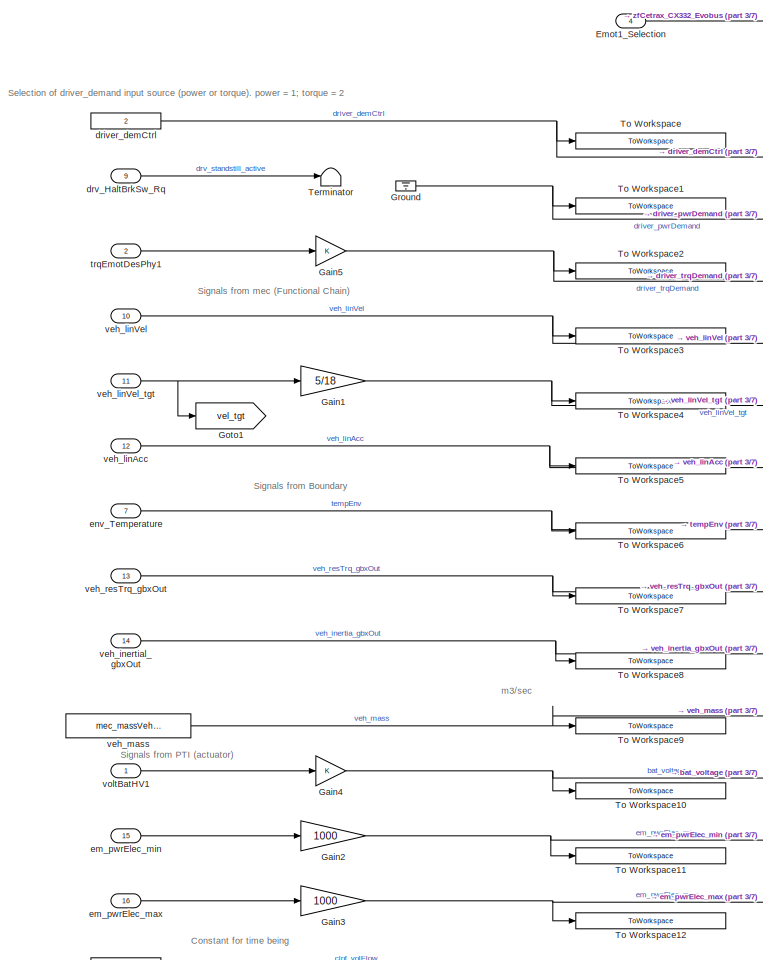
[diagram: EDB_DriveEmot_zfCetrax_CX332/Emot1_4 - part 1/7, top left region]
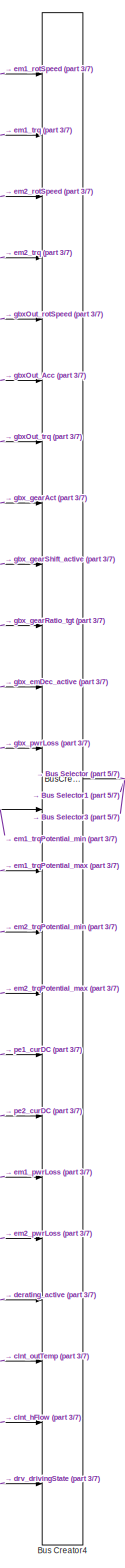
[diagram: EDB_DriveEmot_zfCetrax_CX332/Emot1_4 - part 2/7, center side, full height]
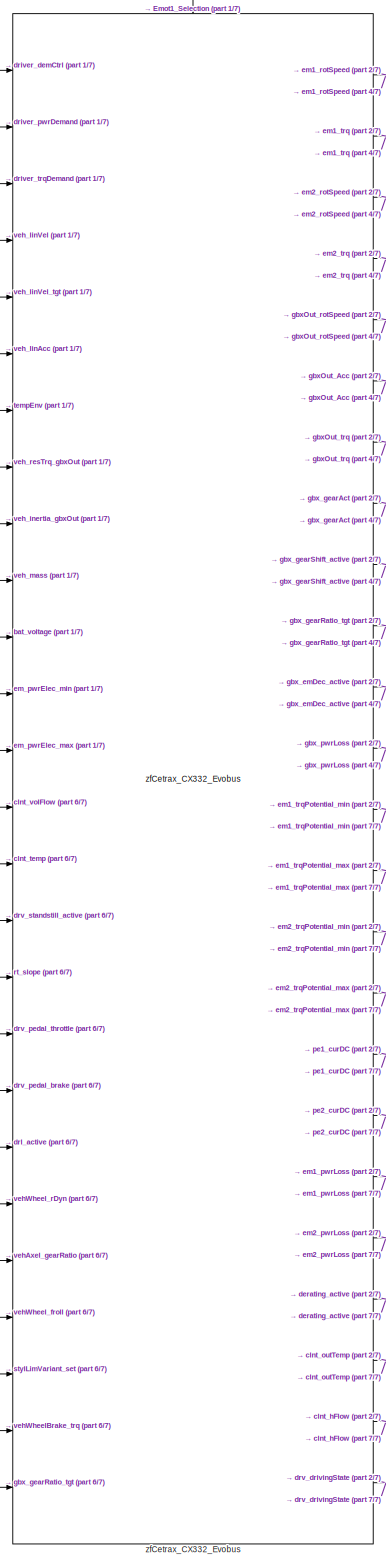
[diagram: EDB_DriveEmot_zfCetrax_CX332/Emot1_4 - part 3/7, center side, full height]
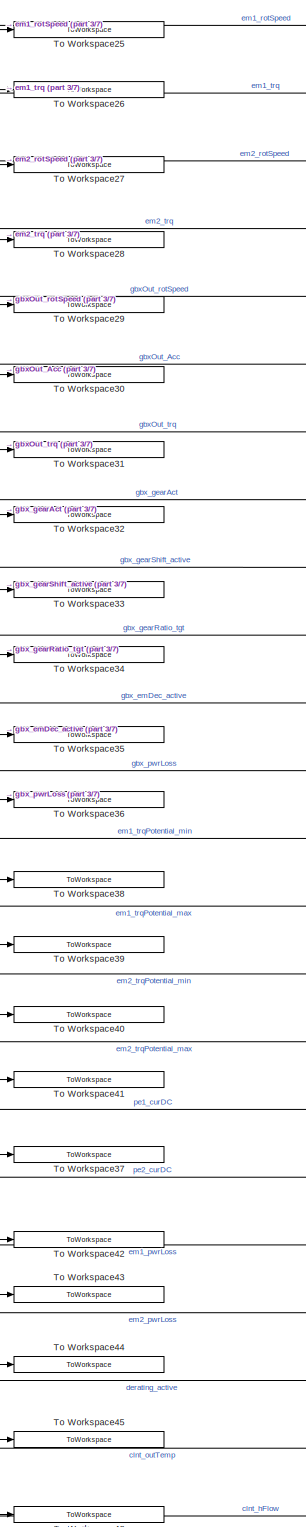
[diagram: EDB_DriveEmot_zfCetrax_CX332/Emot1_4 - part 4/7, center side, full height]
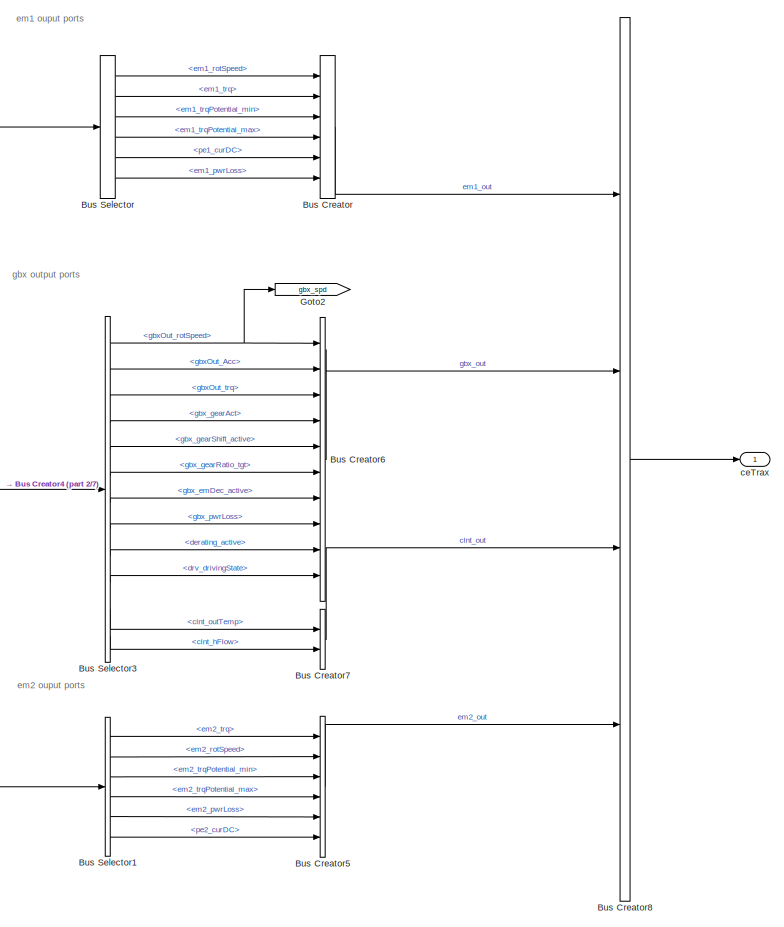
[diagram: EDB_DriveEmot_zfCetrax_CX332/Emot1_4 - part 5/7, middle right region]
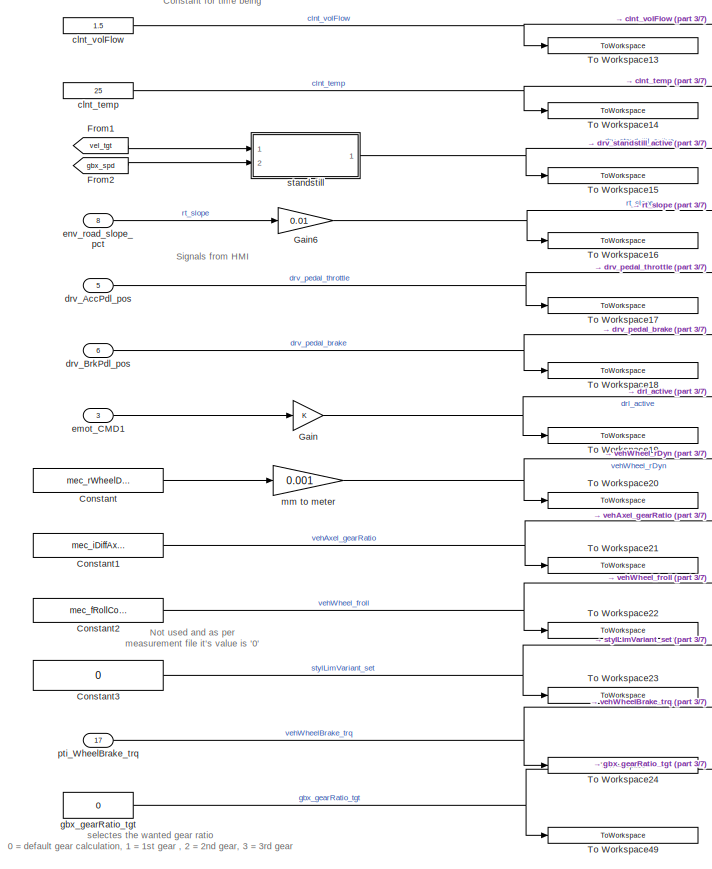
[diagram: EDB_DriveEmot_zfCetrax_CX332/Emot1_4 - part 6/7, bottom left region]
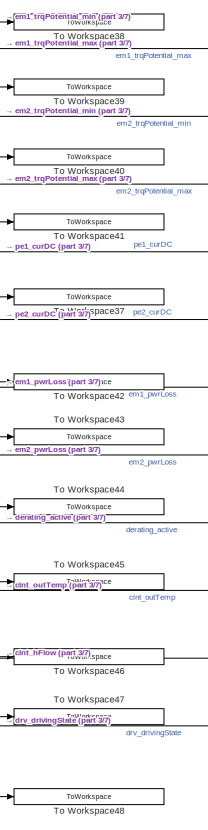
[diagram: EDB_DriveEmot_zfCetrax_CX332/Emot1_4 - part 7/7, bottom center region]
BLOCK [SubSystem] EDB_DriveEmot_zfCetrax_CX332/Emot1_4
  Ports = [17, 1]
  RequestExecContextInheritance = off
  Variant = off
BLOCK [BusCreator] EDB_DriveEmot_zfCetrax_CX332/Emot1_4/Bus Creator
  DisplayOption = bar
  InheritFromInputs = on
  Inputs = 6
  Ports = [6, 1]
BLOCK [BusCreator] EDB_DriveEmot_zfCetrax_CX332/Emot1_4/Bus Creator4
  DisplayOption = bar
  InheritFromInputs = on
  Inputs = 24
  Ports = [24, 1]
BLOCK [BusCreator] EDB_DriveEmot_zfCetrax_CX332/Emot1_4/Bus Creator5
  DisplayOption = bar
  InheritFromInputs = on
  Inputs = 6
  Ports = [6, 1]
BLOCK [BusCreator] EDB_DriveEmot_zfCetrax_CX332/Emot1_4/Bus Creator6
  DisplayOption = bar
  InheritFromInputs = on
  Inputs = 10
  Ports = [10, 1]
BLOCK [BusCreator] EDB_DriveEmot_zfCetrax_CX332/Emot1_4/Bus Creator7
  DisplayOption = bar
  InheritFromInputs = on
  Inputs = 2
  Ports = [2, 1]
BLOCK [BusCreator] EDB_DriveEmot_zfCetrax_CX332/Emot1_4/Bus Creator8
  DisplayOption = bar
  InheritFromInputs = on
  Inputs = 4
  Ports = [4, 1]
BLOCK [BusSelector] EDB_DriveEmot_zfCetrax_CX332/Emot1_4/Bus Selector
  OutputSignals = em1_rotSpeed,em1_trq,em1_trqPotential_min,em1_trqPotential_max,pe1_curDC,em1_pwrLoss
  Ports = [1, 6]
BLOCK [BusSelector] EDB_DriveEmot_zfCetrax_CX332/Emot1_4/Bus Selector1
  OutputSignals = em2_trq,em2_rotSpeed,em2_trqPotential_min,em2_trqPotential_max,em2_pwrLoss,pe2_curDC
  Ports = [1, 6]
BLOCK [BusSelector] EDB_DriveEmot_zfCetrax_CX332/Emot1_4/Bus Selector3
  OutputSignals = gbxOut_rotSpeed,gbxOut_Acc,gbxOut_trq,gbx_gearAct,gbx_gearShift_active,gbx_gearRatio_tgt,gbx_emDec_active,gbx_pwrLoss,derating_active,drv_drivingState,clnt_outTemp,clnt_hFlow
  Ports = [1, 12]
BLOCK [Constant] EDB_DriveEmot_zfCetrax_CX332/Emot1_4/Constant
  Value = mec_rWheelDriven
BLOCK [Constant] EDB_DriveEmot_zfCetrax_CX332/Emot1_4/Constant1
  Value = mec_iDiffAxle
BLOCK [Constant] EDB_DriveEmot_zfCetrax_CX332/Emot1_4/Constant2
  Value = mec_fRollCoeffOverall
BLOCK [Constant] EDB_DriveEmot_zfCetrax_CX332/Emot1_4/Constant3
  Value = 0
BLOCK [Inport] EDB_DriveEmot_zfCetrax_CX332/Emot1_4/Emot1_Selection
  IconDisplay = Port number
  Port = 4
BLOCK [From] EDB_DriveEmot_zfCetrax_CX332/Emot1_4/From1
  GotoTag = vel_tgt
BLOCK [From] EDB_DriveEmot_zfCetrax_CX332/Emot1_4/From2
  GotoTag = gbx_spd
BLOCK [Gain] EDB_DriveEmot_zfCetrax_CX332/Emot1_4/Gain
  OutDataTypeStr = Inherit: Inherit via internal rule
  ParamDataTypeStr = Inherit: Inherit via internal rule
  SaturateOnIntegerOverflow = off
BLOCK [Gain] EDB_DriveEmot_zfCetrax_CX332/Emot1_4/Gain1
  Gain = 5/18
  OutDataTypeStr = Inherit: Inherit via internal rule
  ParamDataTypeStr = Inherit: Inherit via internal rule
  SaturateOnIntegerOverflow = off
BLOCK [Gain] EDB_DriveEmot_zfCetrax_CX332/Emot1_4/Gain2
  Gain = 1000
  OutDataTypeStr = Inherit: Inherit via internal rule
  ParamDataTypeStr = Inherit: Inherit via internal rule
  SaturateOnIntegerOverflow = off
BLOCK [Gain] EDB_DriveEmot_zfCetrax_CX332/Emot1_4/Gain3
  Gain = 1000
  OutDataTypeStr = Inherit: Inherit via internal rule
  ParamDataTypeStr = Inherit: Inherit via internal rule
  SaturateOnIntegerOverflow = off
BLOCK [Gain] EDB_DriveEmot_zfCetrax_CX332/Emot1_4/Gain4
  OutDataTypeStr = Inherit: Inherit via internal rule
  ParamDataTypeStr = Inherit: Inherit via internal rule
  SaturateOnIntegerOverflow = off
BLOCK [Gain] EDB_DriveEmot_zfCetrax_CX332/Emot1_4/Gain5
  OutDataTypeStr = Inherit: Inherit via internal rule
  ParamDataTypeStr = Inherit: Inherit via internal rule
  SaturateOnIntegerOverflow = off
BLOCK [Gain] EDB_DriveEmot_zfCetrax_CX332/Emot1_4/Gain6
  Gain = 0.01
  OutDataTypeStr = Inherit: Inherit via internal rule
  ParamDataTypeStr = Inherit: Inherit via internal rule
  SaturateOnIntegerOverflow = off
BLOCK [Goto] EDB_DriveEmot_zfCetrax_CX332/Emot1_4/Goto1
  GotoTag = vel_tgt
BLOCK [Goto] EDB_DriveEmot_zfCetrax_CX332/Emot1_4/Goto2
  GotoTag = gbx_spd
BLOCK [Ground] EDB_DriveEmot_zfCetrax_CX332/Emot1_4/Ground
BLOCK [Terminator] EDB_DriveEmot_zfCetrax_CX332/Emot1_4/Terminator
BLOCK [ToWorkspace] EDB_DriveEmot_zfCetrax_CX332/Emot1_4/To Workspace
  FixptAsFi = on
  MaxDataPoints = inf
  Ports = [1]
  SampleTime = -1
  Save2DSignal = 2-D array (concatenate along first dimension)
  VariableName = FMU_in_driver_demCtrl
BLOCK [ToWorkspace] EDB_DriveEmot_zfCetrax_CX332/Emot1_4/To Workspace1
  FixptAsFi = on
  MaxDataPoints = inf
  Ports = [1]
  SampleTime = -1
  Save2DSignal = 2-D array (concatenate along first dimension)
  VariableName = FMU_in_driver_pwrDemand
BLOCK [ToWorkspace] EDB_DriveEmot_zfCetrax_CX332/Emot1_4/To Workspace10
  FixptAsFi = on
  MaxDataPoints = inf
  Ports = [1]
  SampleTime = -1
  Save2DSignal = 2-D array (concatenate along first dimension)
  VariableName = FMU_in_bat_voltage
BLOCK [ToWorkspace] EDB_DriveEmot_zfCetrax_CX332/Emot1_4/To Workspace11
  FixptAsFi = on
  MaxDataPoints = inf
  Ports = [1]
  SampleTime = -1
  Save2DSignal = 2-D array (concatenate along first dimension)
  VariableName = FMU_in_em_pwrElec_min
BLOCK [ToWorkspace] EDB_DriveEmot_zfCetrax_CX332/Emot1_4/To Workspace12
  FixptAsFi = on
  MaxDataPoints = inf
  Ports = [1]
  SampleTime = -1
  Save2DSignal = 2-D array (concatenate along first dimension)
  VariableName = FMU_in_em_pwrElec_max
BLOCK [ToWorkspace] EDB_DriveEmot_zfCetrax_CX332/Emot1_4/To Workspace13
  FixptAsFi = on
  MaxDataPoints = inf
  Ports = [1]
  SampleTime = -1
  Save2DSignal = 2-D array (concatenate along first dimension)
  VariableName = FMU_in_clnt_volFlow
BLOCK [ToWorkspace] EDB_DriveEmot_zfCetrax_CX332/Emot1_4/To Workspace14
  FixptAsFi = on
  MaxDataPoints = inf
  Ports = [1]
  SampleTime = -1
  Save2DSignal = 2-D array (concatenate along first dimension)
  VariableName = FMU_in_clnt_temp
BLOCK [ToWorkspace] EDB_DriveEmot_zfCetrax_CX332/Emot1_4/To Workspace15
  FixptAsFi = on
  MaxDataPoints = inf
  Ports = [1]
  SampleTime = -1
  Save2DSignal = 2-D array (concatenate along first dimension)
  VariableName = FMU_in_drv_standstill_active
BLOCK [ToWorkspace] EDB_DriveEmot_zfCetrax_CX332/Emot1_4/To Workspace16
  FixptAsFi = on
  MaxDataPoints = inf
  Ports = [1]
  SampleTime = -1
  Save2DSignal = 2-D array (concatenate along first dimension)
  VariableName = FMU_in_rt_slope
BLOCK [ToWorkspace] EDB_DriveEmot_zfCetrax_CX332/Emot1_4/To Workspace17
  FixptAsFi = on
  MaxDataPoints = inf
  Ports = [1]
  SampleTime = -1
  Save2DSignal = 2-D array (concatenate along first dimension)
  VariableName = FMU_in_drv_pedal_throttle
BLOCK [ToWorkspace] EDB_DriveEmot_zfCetrax_CX332/Emot1_4/To Workspace18
  FixptAsFi = on
  MaxDataPoints = inf
  Ports = [1]
  SampleTime = -1
  Save2DSignal = 2-D array (concatenate along first dimension)
  VariableName = FMU_in_drv_pedal_brake
BLOCK [ToWorkspace] EDB_DriveEmot_zfCetrax_CX332/Emot1_4/To Workspace19
  FixptAsFi = on
  MaxDataPoints = inf
  Ports = [1]
  SampleTime = -1
  Save2DSignal = 2-D array (concatenate along first dimension)
  VariableName = FMU_in_drl_active
BLOCK [ToWorkspace] EDB_DriveEmot_zfCetrax_CX332/Emot1_4/To Workspace2
  FixptAsFi = on
  MaxDataPoints = inf
  Ports = [1]
  SampleTime = -1
  Save2DSignal = 2-D array (concatenate along first dimension)
  VariableName = FMU_in_driver_trqDemand
BLOCK [ToWorkspace] EDB_DriveEmot_zfCetrax_CX332/Emot1_4/To Workspace20
  FixptAsFi = on
  MaxDataPoints = inf
  Ports = [1]
  SampleTime = -1
  Save2DSignal = 2-D array (concatenate along first dimension)
  VariableName = FMU_in_vehWheel_rDyn
BLOCK [ToWorkspace] EDB_DriveEmot_zfCetrax_CX332/Emot1_4/To Workspace21
  FixptAsFi = on
  MaxDataPoints = inf
  Ports = [1]
  SampleTime = -1
  Save2DSignal = 2-D array (concatenate along first dimension)
  VariableName = FMU_in_vehAxel_gearRatio
BLOCK [ToWorkspace] EDB_DriveEmot_zfCetrax_CX332/Emot1_4/To Workspace22
  FixptAsFi = on
  MaxDataPoints = inf
  Ports = [1]
  SampleTime = -1
  Save2DSignal = 2-D array (concatenate along first dimension)
  VariableName = FMU_in_vehWheel_froll
BLOCK [ToWorkspace] EDB_DriveEmot_zfCetrax_CX332/Emot1_4/To Workspace23
  FixptAsFi = on
  MaxDataPoints = inf
  Ports = [1]
  SampleTime = -1
  Save2DSignal = 2-D array (concatenate along first dimension)
  VariableName = FMU_in_styLimVariant_set
BLOCK [ToWorkspace] EDB_DriveEmot_zfCetrax_CX332/Emot1_4/To Workspace24
  FixptAsFi = on
  MaxDataPoints = inf
  Ports = [1]
  SampleTime = -1
  Save2DSignal = 2-D array (concatenate along first dimension)
  VariableName = FMU_in_vehWheelBrake_trq
BLOCK [ToWorkspace] EDB_DriveEmot_zfCetrax_CX332/Emot1_4/To Workspace25
  FixptAsFi = on
  MaxDataPoints = inf
  Ports = [1]
  SampleTime = -1
  Save2DSignal = 2-D array (concatenate along first dimension)
  VariableName = FMU_out_em1_rotSpeed
BLOCK [ToWorkspace] EDB_DriveEmot_zfCetrax_CX332/Emot1_4/To Workspace26
  FixptAsFi = on
  MaxDataPoints = inf
  Ports = [1]
  SampleTime = -1
  Save2DSignal = 2-D array (concatenate along first dimension)
  VariableName = FMU_out_em1_trq
BLOCK [ToWorkspace] EDB_DriveEmot_zfCetrax_CX332/Emot1_4/To Workspace27
  FixptAsFi = on
  MaxDataPoints = inf
  Ports = [1]
  SampleTime = -1
  Save2DSignal = 2-D array (concatenate along first dimension)
  VariableName = FMU_out_em2_rotSpeed
BLOCK [ToWorkspace] EDB_DriveEmot_zfCetrax_CX332/Emot1_4/To Workspace28
  FixptAsFi = on
  MaxDataPoints = inf
  Ports = [1]
  SampleTime = -1
  Save2DSignal = 2-D array (concatenate along first dimension)
  VariableName = FMU_out_em2_trq
BLOCK [ToWorkspace] EDB_DriveEmot_zfCetrax_CX332/Emot1_4/To Workspace29
  FixptAsFi = on
  MaxDataPoints = inf
  Ports = [1]
  SampleTime = -1
  Save2DSignal = 2-D array (concatenate along first dimension)
  VariableName = FMU_out_gbxOut_rotSpeed
BLOCK [ToWorkspace] EDB_DriveEmot_zfCetrax_CX332/Emot1_4/To Workspace3
  FixptAsFi = on
  MaxDataPoints = inf
  Ports = [1]
  SampleTime = -1
  Save2DSignal = 2-D array (concatenate along first dimension)
  VariableName = FMU_in_veh_linVel
BLOCK [ToWorkspace] EDB_DriveEmot_zfCetrax_CX332/Emot1_4/To Workspace30
  FixptAsFi = on
  MaxDataPoints = inf
  Ports = [1]
  SampleTime = -1
  Save2DSignal = 2-D array (concatenate along first dimension)
  VariableName = FMU_out_gbxOut_Acc
BLOCK [ToWorkspace] EDB_DriveEmot_zfCetrax_CX332/Emot1_4/To Workspace31
  FixptAsFi = on
  MaxDataPoints = inf
  Ports = [1]
  SampleTime = -1
  Save2DSignal = 2-D array (concatenate along first dimension)
  VariableName = FMU_out_gbxOut_trq
BLOCK [ToWorkspace] EDB_DriveEmot_zfCetrax_CX332/Emot1_4/To Workspace32
  FixptAsFi = on
  MaxDataPoints = inf
  Ports = [1]
  SampleTime = -1
  Save2DSignal = 2-D array (concatenate along first dimension)
  VariableName = FMU_out_gbx_gearAct
BLOCK [ToWorkspace] EDB_DriveEmot_zfCetrax_CX332/Emot1_4/To Workspace33
  FixptAsFi = on
  MaxDataPoints = inf
  Ports = [1]
  SampleTime = -1
  Save2DSignal = 2-D array (concatenate along first dimension)
  VariableName = FMU_out_gbx_gearShift_active
BLOCK [ToWorkspace] EDB_DriveEmot_zfCetrax_CX332/Emot1_4/To Workspace34
  FixptAsFi = on
  MaxDataPoints = inf
  Ports = [1]
  SampleTime = -1
  Save2DSignal = 2-D array (concatenate along first dimension)
  VariableName = FMU_out_gbx_gearRatio_tgt
BLOCK [ToWorkspace] EDB_DriveEmot_zfCetrax_CX332/Emot1_4/To Workspace35
  FixptAsFi = on
  MaxDataPoints = inf
  Ports = [1]
  SampleTime = -1
  Save2DSignal = 2-D array (concatenate along first dimension)
  VariableName = FMU_out_gbx_emDec_active
BLOCK [ToWorkspace] EDB_DriveEmot_zfCetrax_CX332/Emot1_4/To Workspace36
  FixptAsFi = on
  MaxDataPoints = inf
  Ports = [1]
  SampleTime = -1
  Save2DSignal = 2-D array (concatenate along first dimension)
  VariableName = FMU_out_gbx_pwrLoss
BLOCK [ToWorkspace] EDB_DriveEmot_zfCetrax_CX332/Emot1_4/To Workspace37
  FixptAsFi = on
  MaxDataPoints = inf
  Ports = [1]
  SampleTime = -1
  Save2DSignal = 2-D array (concatenate along first dimension)
  VariableName = FMU_out_pe1_curDC
BLOCK [ToWorkspace] EDB_DriveEmot_zfCetrax_CX332/Emot1_4/To Workspace38
  FixptAsFi = on
  MaxDataPoints = inf
  Ports = [1]
  SampleTime = -1
  Save2DSignal = 2-D array (concatenate along first dimension)
  VariableName = FMU_out_em1_trqPotential_min
BLOCK [ToWorkspace] EDB_DriveEmot_zfCetrax_CX332/Emot1_4/To Workspace39
  FixptAsFi = on
  MaxDataPoints = inf
  Ports = [1]
  SampleTime = -1
  Save2DSignal = 2-D array (concatenate along first dimension)
  VariableName = FMU_out_em1_trqPotential_max
BLOCK [ToWorkspace] EDB_DriveEmot_zfCetrax_CX332/Emot1_4/To Workspace4
  FixptAsFi = on
  MaxDataPoints = inf
  Ports = [1]
  SampleTime = -1
  Save2DSignal = 2-D array (concatenate along first dimension)
  VariableName = FMU_in_veh_linVel_tgt
BLOCK [ToWorkspace] EDB_DriveEmot_zfCetrax_CX332/Emot1_4/To Workspace40
  FixptAsFi = on
  MaxDataPoints = inf
  Ports = [1]
  SampleTime = -1
  Save2DSignal = 2-D array (concatenate along first dimension)
  VariableName = FMU_out_em2_trqPotential_min
BLOCK [ToWorkspace] EDB_DriveEmot_zfCetrax_CX332/Emot1_4/To Workspace41
  FixptAsFi = on
  MaxDataPoints = inf
  Ports = [1]
  SampleTime = -1
  Save2DSignal = 2-D array (concatenate along first dimension)
  VariableName = FMU_out_em2_trqPotential_max
BLOCK [ToWorkspace] EDB_DriveEmot_zfCetrax_CX332/Emot1_4/To Workspace42
  FixptAsFi = on
  MaxDataPoints = inf
  Ports = [1]
  SampleTime = -1
  Save2DSignal = 2-D array (concatenate along first dimension)
  VariableName = FMU_out_pe2_curDC
BLOCK [ToWorkspace] EDB_DriveEmot_zfCetrax_CX332/Emot1_4/To Workspace43
  FixptAsFi = on
  MaxDataPoints = inf
  Ports = [1]
  SampleTime = -1
  Save2DSignal = 2-D array (concatenate along first dimension)
  VariableName = FMU_out_em1_pwrLoss
BLOCK [ToWorkspace] EDB_DriveEmot_zfCetrax_CX332/Emot1_4/To Workspace44
  FixptAsFi = on
  MaxDataPoints = inf
  Ports = [1]
  SampleTime = -1
  Save2DSignal = 2-D array (concatenate along first dimension)
  VariableName = FMU_out_em2_pwrLoss
BLOCK [ToWorkspace] EDB_DriveEmot_zfCetrax_CX332/Emot1_4/To Workspace45
  FixptAsFi = on
  MaxDataPoints = inf
  Ports = [1]
  SampleTime = -1
  Save2DSignal = 2-D array (concatenate along first dimension)
  VariableName = FMU_out_derating_active
BLOCK [ToWorkspace] EDB_DriveEmot_zfCetrax_CX332/Emot1_4/To Workspace46
  FixptAsFi = on
  MaxDataPoints = inf
  Ports = [1]
  SampleTime = -1
  Save2DSignal = 2-D array (concatenate along first dimension)
  VariableName = FMU_out_clnt_outTemp
BLOCK [ToWorkspace] EDB_DriveEmot_zfCetrax_CX332/Emot1_4/To Workspace47
  FixptAsFi = on
  MaxDataPoints = inf
  Ports = [1]
  SampleTime = -1
  Save2DSignal = 2-D array (concatenate along first dimension)
  VariableName = FMU_out_clnt_hflow
BLOCK [ToWorkspace] EDB_DriveEmot_zfCetrax_CX332/Emot1_4/To Workspace48
  FixptAsFi = on
  MaxDataPoints = inf
  Ports = [1]
  SampleTime = -1
  Save2DSignal = 2-D array (concatenate along first dimension)
  VariableName = FMU_out_drv_drivingState
BLOCK [ToWorkspace] EDB_DriveEmot_zfCetrax_CX332/Emot1_4/To Workspace49
  FixptAsFi = on
  MaxDataPoints = inf
  Ports = [1]
  SampleTime = -1
  Save2DSignal = 2-D array (concatenate along first dimension)
  VariableName = FMU_in_gbx_gearRatio_tgt
BLOCK [ToWorkspace] EDB_DriveEmot_zfCetrax_CX332/Emot1_4/To Workspace5
  FixptAsFi = on
  MaxDataPoints = inf
  Ports = [1]
  SampleTime = -1
  Save2DSignal = 2-D array (concatenate along first dimension)
  VariableName = FMU_in_veh_linAcc
BLOCK [ToWorkspace] EDB_DriveEmot_zfCetrax_CX332/Emot1_4/To Workspace6
  FixptAsFi = on
  MaxDataPoints = inf
  Ports = [1]
  SampleTime = -1
  Save2DSignal = 2-D array (concatenate along first dimension)
  VariableName = FMU_in_tempEnv
BLOCK [ToWorkspace] EDB_DriveEmot_zfCetrax_CX332/Emot1_4/To Workspace7
  FixptAsFi = on
  MaxDataPoints = inf
  Ports = [1]
  SampleTime = -1
  Save2DSignal = 2-D array (concatenate along first dimension)
  VariableName = FMU_in_veh_resTrq_gbxOut
BLOCK [ToWorkspace] EDB_DriveEmot_zfCetrax_CX332/Emot1_4/To Workspace8
  FixptAsFi = on
  MaxDataPoints = inf
  Ports = [1]
  SampleTime = -1
  Save2DSignal = 2-D array (concatenate along first dimension)
  VariableName = FMU_in_veh_inertia_gbxOut
BLOCK [ToWorkspace] EDB_DriveEmot_zfCetrax_CX332/Emot1_4/To Workspace9
  FixptAsFi = on
  MaxDataPoints = inf
  Ports = [1]
  SampleTime = -1
  Save2DSignal = 2-D array (concatenate along first dimension)
  VariableName = FMU_in_veh_mass
BLOCK [Outport] EDB_DriveEmot_zfCetrax_CX332/Emot1_4/ceTrax
  IconDisplay = Port number
BLOCK [Constant] EDB_DriveEmot_zfCetrax_CX332/Emot1_4/clnt_temp
  Value = 25
BLOCK [Constant] EDB_DriveEmot_zfCetrax_CX332/Emot1_4/clnt_volFlow
  Value = 1.5
BLOCK [Constant] EDB_DriveEmot_zfCetrax_CX332/Emot1_4/driver_demCtrl
  Value = 2
BLOCK [Inport] EDB_DriveEmot_zfCetrax_CX332/Emot1_4/drv_AccPdl_pos
  IconDisplay = Port number
  Port = 5
BLOCK [Inport] EDB_DriveEmot_zfCetrax_CX332/Emot1_4/drv_BrkPdl_pos
  IconDisplay = Port number
  Port = 6
BLOCK [Inport] EDB_DriveEmot_zfCetrax_CX332/Emot1_4/drv_HaltBrkSw_Rq
  IconDisplay = Port number
  Port = 9
BLOCK [Inport] EDB_DriveEmot_zfCetrax_CX332/Emot1_4/em_pwrElec_max
  IconDisplay = Port number
  Port = 16
BLOCK [Inport] EDB_DriveEmot_zfCetrax_CX332/Emot1_4/em_pwrElec_min
  IconDisplay = Port number
  Port = 15
BLOCK [Inport] EDB_DriveEmot_zfCetrax_CX332/Emot1_4/emot_CMD1
  IconDisplay = Port number
  Port = 3
BLOCK [Inport] EDB_DriveEmot_zfCetrax_CX332/Emot1_4/env_Temperature
  IconDisplay = Port number
  Port = 7
BLOCK [Inport] EDB_DriveEmot_zfCetrax_CX332/Emot1_4/env_road_slope_pct
  IconDisplay = Port number
  Port = 8
BLOCK [Constant] EDB_DriveEmot_zfCetrax_CX332/Emot1_4/gbx_gearRatio_tgt
  Value = 0
BLOCK [Gain] EDB_DriveEmot_zfCetrax_CX332/Emot1_4/mm to meter
  Gain = 0.001
  OutDataTypeStr = Inherit: Inherit via internal rule
  ParamDataTypeStr = Inherit: Inherit via internal rule
  SaturateOnIntegerOverflow = off
BLOCK [Inport] EDB_DriveEmot_zfCetrax_CX332/Emot1_4/pti_WheelBrake_trq
  IconDisplay = Port number
  Port = 17
BLOCK [SubSystem] EDB_DriveEmot_zfCetrax_CX332/Emot1_4/standstill
  Ports = [2, 1]
  RequestExecContextInheritance = off
  Variant = off
BLOCK [Constant] EDB_DriveEmot_zfCetrax_CX332/Emot1_4/standstill/Constant4
  Value = 0.1
BLOCK [Constant] EDB_DriveEmot_zfCetrax_CX332/Emot1_4/standstill/Constant5
  Value = 0.1
BLOCK [DataTypeConversion] EDB_DriveEmot_zfCetrax_CX332/Emot1_4/standstill/Data Type Conversion
  OutDataTypeStr = double
  RndMeth = Floor
  SaturateOnIntegerOverflow = off
BLOCK [DataTypeConversion] EDB_DriveEmot_zfCetrax_CX332/Emot1_4/standstill/Data Type Conversion1
  OutDataTypeStr = double
  RndMeth = Floor
  SaturateOnIntegerOverflow = off
BLOCK [DataTypeConversion] EDB_DriveEmot_zfCetrax_CX332/Emot1_4/standstill/Data Type Conversion2
  OutDataTypeStr = boolean
  RndMeth = Floor
  SaturateOnIntegerOverflow = off
BLOCK [DataTypeConversion] EDB_DriveEmot_zfCetrax_CX332/Emot1_4/standstill/Data Type Conversion3
  OutDataTypeStr = double
  RndMeth = Floor
  SaturateOnIntegerOverflow = off
BLOCK [Delay] EDB_DriveEmot_zfCetrax_CX332/Emot1_4/standstill/Delay
  DelayLength = 10
  InputPortMap = u0
  Ports = [1, 1]
BLOCK [Logic] EDB_DriveEmot_zfCetrax_CX332/Emot1_4/standstill/Logical Operator
  AllPortsSameDT = off
  Operator = NOT
  OutDataTypeStr = boolean
  Ports = [1, 1]
BLOCK [Product] EDB_DriveEmot_zfCetrax_CX332/Emot1_4/standstill/Product
  InputSameDT = off
  OutDataTypeStr = Inherit: Inherit via internal rule
  Ports = [2, 1]
  RndMeth = Floor
  SaturateOnIntegerOverflow = off
BLOCK [RelationalOperator] EDB_DriveEmot_zfCetrax_CX332/Emot1_4/standstill/Relational Operator
  InputSameDT = off
  OutDataTypeStr = boolean
  Ports = [2, 1]
BLOCK [RelationalOperator] EDB_DriveEmot_zfCetrax_CX332/Emot1_4/standstill/Relational Operator1
  InputSameDT = off
  Operator = <=
  OutDataTypeStr = boolean
  Ports = [2, 1]
BLOCK [Reference] EDB_DriveEmot_zfCetrax_CX332/Emot1_4/standstill/S-R Flip-Flop  REF=simulink_extras/Flip Flops/S-R
Flip-Flop
  Ports = [2, 2]
  SourceBlock = simulink_extras/Flip Flops/S-R\nFlip-Flop
  SourceType = SRFlipFlop
BLOCK [Terminator] EDB_DriveEmot_zfCetrax_CX332/Emot1_4/standstill/Terminator1
BLOCK [UnitDelay] EDB_DriveEmot_zfCetrax_CX332/Emot1_4/standstill/Unit Delay
  InputProcessing = Elements as channels (sample based)
  SampleTime = -1
BLOCK [Inport] EDB_DriveEmot_zfCetrax_CX332/Emot1_4/standstill/gbx_spd
  IconDisplay = Port number
  Port = 2
BLOCK [Outport] EDB_DriveEmot_zfCetrax_CX332/Emot1_4/standstill/standstill_active
  IconDisplay = Port number
BLOCK [Inport] EDB_DriveEmot_zfCetrax_CX332/Emot1_4/standstill/vel_tgt
  IconDisplay = Port number
BLOCK [Inport] EDB_DriveEmot_zfCetrax_CX332/Emot1_4/trqEmotDesPhy1
  IconDisplay = Port number
  Port = 2
BLOCK [Inport] EDB_DriveEmot_zfCetrax_CX332/Emot1_4/veh_inertial_gbxOut
  IconDisplay = Port number
  Port = 14
BLOCK [Inport] EDB_DriveEmot_zfCetrax_CX332/Emot1_4/veh_linAcc
  IconDisplay = Port number
  Port = 12
BLOCK [Inport] EDB_DriveEmot_zfCetrax_CX332/Emot1_4/veh_linVel
  IconDisplay = Port number
  Port = 10
BLOCK [Inport] EDB_DriveEmot_zfCetrax_CX332/Emot1_4/veh_linVel_tgt
  IconDisplay = Port number
  Port = 11
BLOCK [Constant] EDB_DriveEmot_zfCetrax_CX332/Emot1_4/veh_mass
  Value = mec_massVehicle_kg
BLOCK [Inport] EDB_DriveEmot_zfCetrax_CX332/Emot1_4/veh_resTrq_gbxOut
  IconDisplay = Port number
  Port = 13
BLOCK [Inport] EDB_DriveEmot_zfCetrax_CX332/Emot1_4/voltBatHV1
  IconDisplay = Port number
BLOCK [Reference] EDB_DriveEmot_zfCetrax_CX332/Emot1_4/zfCetrax_CX332_Evobus  REF=Enrg_conv_El_to_Mec_zfCetrax/zfCetrax_CX332_Evobus
  Ports = [26, 24, 1]
  SourceBlock = Enrg_conv_El_to_Mec_zfCetrax/zfCetrax_CX332_Evobus
  SourceType = MapModule
BLOCK [From] EDB_DriveEmot_zfCetrax_CX332/From
  GotoTag = pe1_curDC
BLOCK [From] EDB_DriveEmot_zfCetrax_CX332/From1
  GotoTag = voltBat
BLOCK [From] EDB_DriveEmot_zfCetrax_CX332/From2
  GotoTag = zfCetrax_drvEmotWasteHear_power
BLOCK [From] EDB_DriveEmot_zfCetrax_CX332/From23
  GotoTag = Emot1_Selection
BLOCK [From] EDB_DriveEmot_zfCetrax_CX332/From3
  GotoTag = pe2_curDC
BLOCK [From] EDB_DriveEmot_zfCetrax_CX332/From4
  GotoTag = voltBat
BLOCK [From] EDB_DriveEmot_zfCetrax_CX332/From5
  GotoTag = voltBat
BLOCK [From] EDB_DriveEmot_zfCetrax_CX332/From6
  GotoTag = zfCetrax_driveInverterWasteHeat_power
BLOCK [From] EDB_DriveEmot_zfCetrax_CX332/From7
  GotoTag = em1_trq
BLOCK [From] EDB_DriveEmot_zfCetrax_CX332/From8
  GotoTag = em2_trq
BLOCK [Gain] EDB_DriveEmot_zfCetrax_CX332/Gain
  OutDataTypeStr = Inherit: Inherit via internal rule
  ParamDataTypeStr = Inherit: Inherit via internal rule
  SaturateOnIntegerOverflow = off
BLOCK [Gain] EDB_DriveEmot_zfCetrax_CX332/Gain1
  OutDataTypeStr = Inherit: Inherit via internal rule
  ParamDataTypeStr = Inherit: Inherit via internal rule
  SaturateOnIntegerOverflow = off
BLOCK [Gain] EDB_DriveEmot_zfCetrax_CX332/Gain2
  OutDataTypeStr = Inherit: Inherit via internal rule
  ParamDataTypeStr = Inherit: Inherit via internal rule
  SaturateOnIntegerOverflow = off
BLOCK [Gain] EDB_DriveEmot_zfCetrax_CX332/Gain3
  OutDataTypeStr = Inherit: Inherit via internal rule
  ParamDataTypeStr = Inherit: Inherit via internal rule
  SaturateOnIntegerOverflow = off
BLOCK [Gain] EDB_DriveEmot_zfCetrax_CX332/Gain4
  OutDataTypeStr = Inherit: Inherit via internal rule
  ParamDataTypeStr = Inherit: Inherit via internal rule
  SaturateOnIntegerOverflow = off
BLOCK [Goto] EDB_DriveEmot_zfCetrax_CX332/Goto
  GotoTag = Emot1_Selection
BLOCK [Goto] EDB_DriveEmot_zfCetrax_CX332/Goto1
  GotoTag = Emot2_Selection
BLOCK [Goto] EDB_DriveEmot_zfCetrax_CX332/Goto10
  GotoTag = em1_trq
BLOCK [Goto] EDB_DriveEmot_zfCetrax_CX332/Goto2
  GotoTag = Emot3_Selection
BLOCK [Goto] EDB_DriveEmot_zfCetrax_CX332/Goto3
  GotoTag = Emot4_Selection
BLOCK [Goto] EDB_DriveEmot_zfCetrax_CX332/Goto4
  GotoTag = voltBat
BLOCK [Goto] EDB_DriveEmot_zfCetrax_CX332/Goto5
  GotoTag = pe1_curDC
BLOCK [Goto] EDB_DriveEmot_zfCetrax_CX332/Goto6
  GotoTag = pe2_curDC
BLOCK [Goto] EDB_DriveEmot_zfCetrax_CX332/Goto7
  GotoTag = zfCetrax_drvEmotWasteHear_power
BLOCK [Goto] EDB_DriveEmot_zfCetrax_CX332/Goto8
  GotoTag = zfCetrax_driveInverterWasteHeat_power
BLOCK [Goto] EDB_DriveEmot_zfCetrax_CX332/Goto9
  GotoTag = em2_trq
BLOCK [ManualSwitch] EDB_DriveEmot_zfCetrax_CX332/Manual Switch
  CurrentSetting = 0
BLOCK [SubSystem] EDB_DriveEmot_zfCetrax_CX332/MotorSelection
  Ports = [0, 4]
  RequestExecContextInheritance = off
  Variant = off
BLOCK [Outport] EDB_DriveEmot_zfCetrax_CX332/MotorSelection/Emot1_Selection
  IconDisplay = Port number
BLOCK [Outport] EDB_DriveEmot_zfCetrax_CX332/MotorSelection/Emot2_Selection
  IconDisplay = Port number
  Port = 2
BLOCK [Outport] EDB_DriveEmot_zfCetrax_CX332/MotorSelection/Emot3_Selection
  IconDisplay = Port number
  Port = 3
BLOCK [Outport] EDB_DriveEmot_zfCetrax_CX332/MotorSelection/Emot4_Selection
  IconDisplay = Port number
  Port = 4
BLOCK [Constant] EDB_DriveEmot_zfCetrax_CX332/MotorSelection/MidAxle
  Value = FirstDrivenAxleNoOfEmot
BLOCK [Constant] EDB_DriveEmot_zfCetrax_CX332/MotorSelection/RearAxle
  Value = SecondDrivenAxleNoOfEmot
BLOCK [SubSystem] EDB_DriveEmot_zfCetrax_CX332/MotorSelection/Truth Table
  ErrorFcn = Stateflow.Translate.translate
  PermitHierarchicalResolution = ExplicitOnly
  Ports = [2, 4]
  RequestExecContextInheritance = off
  SFBlockType = Truth Table
  TreatAsAtomicUnit = on
  Variant = off
BLOCK [Demux] EDB_DriveEmot_zfCetrax_CX332/MotorSelection/Truth Table/ Demux 
  Outputs = 1
  Ports = [1, 1]
BLOCK [S-Function] EDB_DriveEmot_zfCetrax_CX332/MotorSelection/Truth Table/ SFunction 
  EnableBusSupport = off
  FunctionName = sf_sfun
  PortCounts = [2 5]
  Ports = [2, 5]
  SFunctionDeploymentMode = off
  Tag = Stateflow S-Function Enrg_conv_El_to_Mec_zfCetrax 3
BLOCK [Terminator] EDB_DriveEmot_zfCetrax_CX332/MotorSelection/Truth Table/ Terminator 
BLOCK [Inport] EDB_DriveEmot_zfCetrax_CX332/MotorSelection/Truth Table/u1
  IconDisplay = Port number
BLOCK [Inport] EDB_DriveEmot_zfCetrax_CX332/MotorSelection/Truth Table/u2
  IconDisplay = Port number
  Port = 2
BLOCK [Outport] EDB_DriveEmot_zfCetrax_CX332/MotorSelection/Truth Table/y1
  IconDisplay = Port number
BLOCK [Outport] EDB_DriveEmot_zfCetrax_CX332/MotorSelection/Truth Table/y2
  IconDisplay = Port number
  Port = 2
BLOCK [Outport] EDB_DriveEmot_zfCetrax_CX332/MotorSelection/Truth Table/y3
  IconDisplay = Port number
  Port = 3
BLOCK [Outport] EDB_DriveEmot_zfCetrax_CX332/MotorSelection/Truth Table/y4
  IconDisplay = Port number
  Port = 4
BLOCK [Product] EDB_DriveEmot_zfCetrax_CX332/Product
  InputSameDT = off
  OutDataTypeStr = Inherit: Inherit via internal rule
  Ports = [2, 1]
  RndMeth = Floor
  SaturateOnIntegerOverflow = off
BLOCK [Product] EDB_DriveEmot_zfCetrax_CX332/Product1
  InputSameDT = off
  OutDataTypeStr = Inherit: Inherit via internal rule
  Ports = [2, 1]
  RndMeth = Floor
  SaturateOnIntegerOverflow = off
BLOCK [Product] EDB_DriveEmot_zfCetrax_CX332/Product2
  InputSameDT = off
  OutDataTypeStr = Inherit: Inherit via internal rule
  Ports = [2, 1]
  RndMeth = Floor
  SaturateOnIntegerOverflow = off
BLOCK [Product] EDB_DriveEmot_zfCetrax_CX332/Product3
  InputSameDT = off
  OutDataTypeStr = Inherit: Inherit via internal rule
  Ports = [2, 1]
  RndMeth = Floor
  SaturateOnIntegerOverflow = off
BLOCK [Inport] EDB_DriveEmot_zfCetrax_CX332/drv_AccPdl_pos
  IconDisplay = Port number
  Port = 6
BLOCK [Inport] EDB_DriveEmot_zfCetrax_CX332/drv_BrkPdl_pos
  IconDisplay = Port number
  Port = 7
BLOCK [Inport] EDB_DriveEmot_zfCetrax_CX332/drv_HaltBrkSw_Rq
  IconDisplay = Port number
  Port = 10
BLOCK [Inport] EDB_DriveEmot_zfCetrax_CX332/drv_v_des_max_kmh
  IconDisplay = Port number
  Port = 12
BLOCK [Inport] EDB_DriveEmot_zfCetrax_CX332/edcu_EMD1_CMD_ControlMode
  IconDisplay = Port number
  Port = 5
BLOCK [Inport] EDB_DriveEmot_zfCetrax_CX332/edcu_EMD1_CMD_TorqueRefLim
  IconDisplay = Port number
  Port = 4
BLOCK [Inport] EDB_DriveEmot_zfCetrax_CX332/env_Temperature
  IconDisplay = Port number
  Port = 8
BLOCK [Inport] EDB_DriveEmot_zfCetrax_CX332/env_road_slope_pct
  IconDisplay = Port number
  Port = 9
BLOCK [Outport] EDB_DriveEmot_zfCetrax_CX332/hvs_dcLink_drive_emot_current
  IconDisplay = Port number
  Port = 3
BLOCK [Outport] EDB_DriveEmot_zfCetrax_CX332/hvs_driveInverterWasteHeat_power
  IconDisplay = Port number
BLOCK [Outport] EDB_DriveEmot_zfCetrax_CX332/hvs_drvEmotWasteHeat_power
  IconDisplay = Port number
  Port = 2
BLOCK [Inport] EDB_DriveEmot_zfCetrax_CX332/hvs_veh_GenericLoss_transAcc
  IconDisplay = Port number
  Port = 13
BLOCK [Inport] EDB_DriveEmot_zfCetrax_CX332/hvs_veh_GenericLoss_transVel
  IconDisplay = Port number
  Port = 11
BLOCK [Outport] EDB_DriveEmot_zfCetrax_CX332/hvs_zfCetrax_derating_active_info
  IconDisplay = Port number
  Port = 22
BLOCK [Outport] EDB_DriveEmot_zfCetrax_CX332/hvs_zfCetrax_driveInverterWasteHeat_power
  IconDisplay = Port number
  Port = 14
BLOCK [Outport] EDB_DriveEmot_zfCetrax_CX332/hvs_zfCetrax_drive_emot_voltage
  IconDisplay = Port number
  Port = 5
BLOCK [Outport] EDB_DriveEmot_zfCetrax_CX332/hvs_zfCetrax_drvEmotWasteHeat_power
  IconDisplay = Port number
  Port = 13
BLOCK [Outport] EDB_DriveEmot_zfCetrax_CX332/hvs_zfCetrax_drv_drivingState_info
  IconDisplay = Port number
  Port = 28
BLOCK [Outport] EDB_DriveEmot_zfCetrax_CX332/hvs_zfCetrax_em1_rotSpeed
  IconDisplay = Port number
  Port = 11
BLOCK [Outport] EDB_DriveEmot_zfCetrax_CX332/hvs_zfCetrax_em1_trq
  IconDisplay = Port number
  Port = 15
BLOCK [Outport] EDB_DriveEmot_zfCetrax_CX332/hvs_zfCetrax_em1_trqPotential_max
  IconDisplay = Port number
  Port = 8
BLOCK [Outport] EDB_DriveEmot_zfCetrax_CX332/hvs_zfCetrax_em1_trqPotential_min
  IconDisplay = Port number
  Port = 7
BLOCK [Outport] EDB_DriveEmot_zfCetrax_CX332/hvs_zfCetrax_em2_rotSpeed
  IconDisplay = Port number
  Port = 12
BLOCK [Outport] EDB_DriveEmot_zfCetrax_CX332/hvs_zfCetrax_em2_trq
  IconDisplay = Port number
  Port = 16
BLOCK [Outport] EDB_DriveEmot_zfCetrax_CX332/hvs_zfCetrax_em2_trqPotential_max
  IconDisplay = Port number
  Port = 10
BLOCK [Outport] EDB_DriveEmot_zfCetrax_CX332/hvs_zfCetrax_em2_trqPotential_min
  IconDisplay = Port number
  Port = 9
BLOCK [Outport] EDB_DriveEmot_zfCetrax_CX332/hvs_zfCetrax_gbxOut_Acc_info
  IconDisplay = Port number
  Port = 18
BLOCK [Inport] EDB_DriveEmot_zfCetrax_CX332/hvs_zfCetrax_gbxOut_resTrq
  IconDisplay = Port number
  Port = 14
BLOCK [Outport] EDB_DriveEmot_zfCetrax_CX332/hvs_zfCetrax_gbxOut_rotSpeed
  IconDisplay = Port number
  Port = 24
BLOCK [Outport] EDB_DriveEmot_zfCetrax_CX332/hvs_zfCetrax_gbxOut_rotSpeed_info
  IconDisplay = Port number
  Port = 17
BLOCK [Outport] EDB_DriveEmot_zfCetrax_CX332/hvs_zfCetrax_gbxOut_torque
  IconDisplay = Port number
  Port = 4
BLOCK [Inport] EDB_DriveEmot_zfCetrax_CX332/hvs_zfCetrax_gbxOut_veh_inertia
  IconDisplay = Port number
  Port = 15
BLOCK [Outport] EDB_DriveEmot_zfCetrax_CX332/hvs_zfCetrax_gbx_emDec_active_info
  IconDisplay = Port number
  Port = 20
BLOCK [Outport] EDB_DriveEmot_zfCetrax_CX332/hvs_zfCetrax_gbx_gearAct
  IconDisplay = Port number
  Port = 6
BLOCK [Outport] EDB_DriveEmot_zfCetrax_CX332/hvs_zfCetrax_gbx_gearRatio
  IconDisplay = Port number
  Port = 23
BLOCK [Outport] EDB_DriveEmot_zfCetrax_CX332/hvs_zfCetrax_gbx_gearRatio_tgt_info
  IconDisplay = Port number
  Port = 19
BLOCK [Outport] EDB_DriveEmot_zfCetrax_CX332/hvs_zfCetrax_gbx_gearShift_active
  IconDisplay = Port number
  Port = 25
BLOCK [Outport] EDB_DriveEmot_zfCetrax_CX332/hvs_zfCetrax_gbx_pwrLoss_info
  IconDisplay = Port number
  Port = 21
BLOCK [Outport] EDB_DriveEmot_zfCetrax_CX332/hvs_zfCetrax_pe1_curDC
  IconDisplay = Port number
  Port = 26
BLOCK [Outport] EDB_DriveEmot_zfCetrax_CX332/hvs_zfCetrax_pe2_curDC
  IconDisplay = Port number
  Port = 27
BLOCK [Inport] EDB_DriveEmot_zfCetrax_CX332/hvs_zfCetrax_vehWheel_brk_torque
  IconDisplay = Port number
  Port = 19
BLOCK [Inport] EDB_DriveEmot_zfCetrax_CX332/pti_EMD1_ControlMode
  IconDisplay = Port number
  Port = 3
BLOCK [Inport] EDB_DriveEmot_zfCetrax_CX332/pti_EMD1_TrqReq_Nm
  IconDisplay = Port number
  Port = 2
BLOCK [Inport] EDB_DriveEmot_zfCetrax_CX332/pti_WheelBrake_trq
  IconDisplay = Port number
  Port = 18
BLOCK [Inport] EDB_DriveEmot_zfCetrax_CX332/pti_zfCetrax_ctrl_em_pwrElec_max
  IconDisplay = Port number
  Port = 17
BLOCK [Inport] EDB_DriveEmot_zfCetrax_CX332/pti_zfCetrax_ctrl_em_pwrElec_min
  IconDisplay = Port number
  Port = 16
BLOCK [Inport] EDB_DriveEmot_zfCetrax_CX332/voltBatHV1
  IconDisplay = Port number
BLOCK [Gain] EDB_DriveEmot_zfCetrax_CX332/watt2kW
  Gain = 1/1000
  OutDataTypeStr = Inherit: Inherit via internal rule
  ParamDataTypeStr = Inherit: Inherit via internal rule
  SaturateOnIntegerOverflow = off
BLOCK [Gain] EDB_DriveEmot_zfCetrax_CX332/watt2kW1
  Gain = 1/1000
  OutDataTypeStr = Inherit: Inherit via internal rule
  ParamDataTypeStr = Inherit: Inherit via internal rule
  SaturateOnIntegerOverflow = off
BLOCK [SubSystem] zfCetrax_CX318_Evobus
  Ports = [25, 23, 1]
  RequestExecContextInheritance = off
  Variant = off
BLOCK [EnablePort] zfCetrax_CX318_Evobus/Enable
  Ports = []
BLOCK [Terminator] zfCetrax_CX318_Evobus/Terminator
BLOCK [S-Function] zfCetrax_CX318_Evobus/eMotor
  CloseFcn = FMIKit.closeBlockDialog(gcbh)
  DeleteFcn = FMIKit.closeBlockDialog(gcbh)
  DestroyFcn = FMIKit.closeBlockDialog(gcbh)
  EnableBusSupport = off
  FunctionName = sfun_fmurun
  LoadFcn = FMIKit.setSFunctionParameters(gcb)
  ModelCloseFcn = FMIKit.closeBlockDialog(gcbh)
  OpenFcn = FMIKit.showBlockDialog(gcbh);
  Parameters = '2.0' 1 '{6df466fc-55df-48cc-82e1-ee408b9f2dc3}' 'CustomerVar1_Master' FMIKit.getUnzipDirectory(gcb) 0 0 0 '' 0 -1 0 0 0 [] [] [] [] char({}) [1 1 1 1 1 1 1 1 1 1 1 1 1 1 1 1 1 1 1 1 1 1 1 1] [0 0 0 0 0 0 0 0 0 0 0 0 0 0 0 0 0 0 0 0 0 0 0 0] [0 0 0 0 0 0 0 0 0 0 0 0 0 0 0 0 0 0 0 0 0 0 0 0] [1 2 3 4 5 6 7 8 9 10 11 12 13 14 15 16 17 18 19 20 21 22 23 24] [1 1 1 1 1 1 1 1 1 1 1 1 1 1 1 1 1 1 1 1 1 ...<+123ch>
  ParentCloseFcn = FMIKit.closeBlockDialog(gcbh)
  Ports = [24, 23]
  SFunctionDeploymentMode = off
  UserDataPersistent = on
BLOCK [Inport] zfCetrax_CX318_Evobus/in_bat_voltage
  IconDisplay = Port number
  Port = 11
BLOCK [Inport] zfCetrax_CX318_Evobus/in_clnt_temp
  IconDisplay = Port number
  Port = 15
BLOCK [Inport] zfCetrax_CX318_Evobus/in_clnt_volFlow
  IconDisplay = Port number
  Port = 14
BLOCK [Inport] zfCetrax_CX318_Evobus/in_driver_demCtrl
  IconDisplay = Port number
BLOCK [Inport] zfCetrax_CX318_Evobus/in_driver_pwrDemand
  IconDisplay = Port number
  Port = 2
BLOCK [Inport] zfCetrax_CX318_Evobus/in_driver_trqDemand
  IconDisplay = Port number
  Port = 3
BLOCK [Inport] zfCetrax_CX318_Evobus/in_drl_active
  IconDisplay = Port number
  Port = 20
BLOCK [Inport] zfCetrax_CX318_Evobus/in_drv_pedal_brake
  IconDisplay = Port number
  Port = 19
BLOCK [Inport] zfCetrax_CX318_Evobus/in_drv_pedal_throttle
  IconDisplay = Port number
  Port = 18
BLOCK [Inport] zfCetrax_CX318_Evobus/in_drv_standstill_active
  IconDisplay = Port number
  Port = 16
BLOCK [Inport] zfCetrax_CX318_Evobus/in_em_pwrElec_max
  IconDisplay = Port number
  Port = 13
BLOCK [Inport] zfCetrax_CX318_Evobus/in_em_pwrElec_min
  IconDisplay = Port number
  Port = 12
BLOCK [Inport] zfCetrax_CX318_Evobus/in_rt_slope
  IconDisplay = Port number
  Port = 17
BLOCK [Inport] zfCetrax_CX318_Evobus/in_styLimVariant_set
  IconDisplay = Port number
  Port = 24
BLOCK [Inport] zfCetrax_CX318_Evobus/in_tempEnv
  IconDisplay = Port number
  Port = 7
BLOCK [Inport] zfCetrax_CX318_Evobus/in_vehAxel_gearRatio
  IconDisplay = Port number
  Port = 22
BLOCK [Inport] zfCetrax_CX318_Evobus/in_vehWheelBrake_trq
  IconDisplay = Port number
  Port = 25
BLOCK [Inport] zfCetrax_CX318_Evobus/in_vehWheel_froll
  IconDisplay = Port number
  Port = 23
BLOCK [Inport] zfCetrax_CX318_Evobus/in_vehWheel_rDyn
  IconDisplay = Port number
  Port = 21
BLOCK [Inport] zfCetrax_CX318_Evobus/in_veh_inertia_gbxOut
  IconDisplay = Port number
  Port = 9
BLOCK [Inport] zfCetrax_CX318_Evobus/in_veh_linAcc
  IconDisplay = Port number
  Port = 6
BLOCK [Inport] zfCetrax_CX318_Evobus/in_veh_linVel
  IconDisplay = Port number
  Port = 4
BLOCK [Inport] zfCetrax_CX318_Evobus/in_veh_linVel_tgt
  IconDisplay = Port number
  Port = 5
BLOCK [Inport] zfCetrax_CX318_Evobus/in_veh_mass
  IconDisplay = Port number
  Port = 10
BLOCK [Inport] zfCetrax_CX318_Evobus/in_veh_resTrq_gbxOut
  IconDisplay = Port number
  Port = 8
BLOCK [Outport] zfCetrax_CX318_Evobus/out_clnt_hFlow
  IconDisplay = Port number
  Port = 23
BLOCK [Outport] zfCetrax_CX318_Evobus/out_clnt_outTemp
  IconDisplay = Port number
  Port = 22
BLOCK [Outport] zfCetrax_CX318_Evobus/out_derating_active
  IconDisplay = Port number
  Port = 21
BLOCK [Outport] zfCetrax_CX318_Evobus/out_em1_pwrLoss
  IconDisplay = Port number
  Port = 19
BLOCK [Outport] zfCetrax_CX318_Evobus/out_em1_rotSpeed
  IconDisplay = Port number
BLOCK [Outport] zfCetrax_CX318_Evobus/out_em1_trq
  IconDisplay = Port number
  Port = 2
BLOCK [Outport] zfCetrax_CX318_Evobus/out_em1_trqPotential_max
  IconDisplay = Port number
  Port = 14
BLOCK [Outport] zfCetrax_CX318_Evobus/out_em1_trqPotential_min
  IconDisplay = Port number
  Port = 13
BLOCK [Outport] zfCetrax_CX318_Evobus/out_em2_pwrLoss
  IconDisplay = Port number
  Port = 20
BLOCK [Outport] zfCetrax_CX318_Evobus/out_em2_rotSpeed
  IconDisplay = Port number
  Port = 3
BLOCK [Outport] zfCetrax_CX318_Evobus/out_em2_trq
  IconDisplay = Port number
  Port = 4
BLOCK [Outport] zfCetrax_CX318_Evobus/out_em2_trqPotential_max
  IconDisplay = Port number
  Port = 16
BLOCK [Outport] zfCetrax_CX318_Evobus/out_em2_trqPotential_min
  IconDisplay = Port number
  Port = 15
BLOCK [Outport] zfCetrax_CX318_Evobus/out_gbxOut_Acc
  IconDisplay = Port number
  Port = 6
BLOCK [Outport] zfCetrax_CX318_Evobus/out_gbxOut_rotSpeed
  IconDisplay = Port number
  Port = 5
BLOCK [Outport] zfCetrax_CX318_Evobus/out_gbxOut_trq
  IconDisplay = Port number
  Port = 7
BLOCK [Outport] zfCetrax_CX318_Evobus/out_gbx_emDec_active
  IconDisplay = Port number
  Port = 11
BLOCK [Outport] zfCetrax_CX318_Evobus/out_gbx_gearAct
  IconDisplay = Port number
  Port = 8
BLOCK [Outport] zfCetrax_CX318_Evobus/out_gbx_gearRatio_tgt
  IconDisplay = Port number
  Port = 10
BLOCK [Outport] zfCetrax_CX318_Evobus/out_gbx_gearShift_active
  IconDisplay = Port number
  Port = 9
BLOCK [Outport] zfCetrax_CX318_Evobus/out_gbx_pwrLoss
  IconDisplay = Port number
  Port = 12
BLOCK [Outport] zfCetrax_CX318_Evobus/out_pe1_curDC
  IconDisplay = Port number
  Port = 17
BLOCK [Outport] zfCetrax_CX318_Evobus/out_pe2_curDC
  IconDisplay = Port number
  Port = 18
BLOCK [SubSystem] zfCetrax_CX319_Evobus
  Ports = [26, 24, 1]
  RequestExecContextInheritance = off
  Variant = off
BLOCK [EnablePort] zfCetrax_CX319_Evobus/Enable
  Ports = []
BLOCK [Terminator] zfCetrax_CX319_Evobus/Terminator
BLOCK [S-Function] zfCetrax_CX319_Evobus/eMotor
  CloseFcn = FMIKit.closeBlockDialog(gcbh)
  DeleteFcn = FMIKit.closeBlockDialog(gcbh)
  DestroyFcn = FMIKit.closeBlockDialog(gcbh)
  EnableBusSupport = off
  FunctionName = sfun_fmurun
  LoadFcn = FMIKit.setSFunctionParameters(gcb)
  ModelCloseFcn = FMIKit.closeBlockDialog(gcbh)
  OpenFcn = FMIKit.showBlockDialog(gcbh);
  Parameters = '2.0' 1 '{87150a17-60fe-aceb-d5f0-c416d2a9791d}' 'CustomerVar_EvoBusCX319' FMIKit.getUnzipDirectory(gcb) 0 0 0 '' 0 -1 0 0 0 [] [] [] [] char({}) [1 1 1 1 1 1 1 1 1 1 1 1 1 1 1 1 1 1 1 1 1 1 1 1 1] [0 0 0 0 0 0 0 0 0 0 0 0 0 0 0 0 0 0 0 0 0 0 0 0 0] [0 0 0 0 0 0 0 0 0 0 0 0 0 0 0 0 0 0 0 0 0 0 0 0 0] [0 1 2 3 4 5 6 7 8 9 10 11 12 13 14 15 16 17 18 19 20 21 22 23 24] [1 1 1 1 1 1 1 1 1 1 1 1 1 1 1 ...<+142ch>
  ParentCloseFcn = FMIKit.closeBlockDialog(gcbh)
  Ports = [25, 24]
  SFunctionDeploymentMode = off
  UserDataPersistent = on
BLOCK [Inport] zfCetrax_CX319_Evobus/in_bat_voltage
  IconDisplay = Port number
  Port = 11
BLOCK [Inport] zfCetrax_CX319_Evobus/in_clnt_temp
  IconDisplay = Port number
  Port = 15
BLOCK [Inport] zfCetrax_CX319_Evobus/in_clnt_volFlow
  IconDisplay = Port number
  Port = 14
BLOCK [Inport] zfCetrax_CX319_Evobus/in_driver_demCtrl
  IconDisplay = Port number
BLOCK [Inport] zfCetrax_CX319_Evobus/in_driver_pwrDemand
  IconDisplay = Port number
  Port = 2
BLOCK [Inport] zfCetrax_CX319_Evobus/in_driver_trqDemand
  IconDisplay = Port number
  Port = 3
BLOCK [Inport] zfCetrax_CX319_Evobus/in_drl_active
  IconDisplay = Port number
  Port = 20
BLOCK [Inport] zfCetrax_CX319_Evobus/in_drv_pedal_brake
  IconDisplay = Port number
  Port = 19
BLOCK [Inport] zfCetrax_CX319_Evobus/in_drv_pedal_throttle
  IconDisplay = Port number
  Port = 18
BLOCK [Inport] zfCetrax_CX319_Evobus/in_drv_standstill_active
  IconDisplay = Port number
  Port = 16
BLOCK [Inport] zfCetrax_CX319_Evobus/in_em_pwrElec_max
  IconDisplay = Port number
  Port = 13
BLOCK [Inport] zfCetrax_CX319_Evobus/in_em_pwrElec_min
  IconDisplay = Port number
  Port = 12
BLOCK [Inport] zfCetrax_CX319_Evobus/in_gbx_gearRatio_tgt
  IconDisplay = Port number
  Port = 26
BLOCK [Inport] zfCetrax_CX319_Evobus/in_rt_slope
  IconDisplay = Port number
  Port = 17
BLOCK [Inport] zfCetrax_CX319_Evobus/in_styLimVariant_set
  IconDisplay = Port number
  Port = 24
BLOCK [Inport] zfCetrax_CX319_Evobus/in_tempEnv
  IconDisplay = Port number
  Port = 7
BLOCK [Inport] zfCetrax_CX319_Evobus/in_vehAxel_gearRatio
  IconDisplay = Port number
  Port = 22
BLOCK [Inport] zfCetrax_CX319_Evobus/in_vehWheelBrake_trq
  IconDisplay = Port number
  Port = 25
BLOCK [Inport] zfCetrax_CX319_Evobus/in_vehWheel_froll
  IconDisplay = Port number
  Port = 23
BLOCK [Inport] zfCetrax_CX319_Evobus/in_vehWheel_rDyn
  IconDisplay = Port number
  Port = 21
BLOCK [Inport] zfCetrax_CX319_Evobus/in_veh_inertia_gbxOut
  IconDisplay = Port number
  Port = 9
BLOCK [Inport] zfCetrax_CX319_Evobus/in_veh_linAcc
  IconDisplay = Port number
  Port = 6
BLOCK [Inport] zfCetrax_CX319_Evobus/in_veh_linVel
  IconDisplay = Port number
  Port = 4
BLOCK [Inport] zfCetrax_CX319_Evobus/in_veh_linVel_tgt
  IconDisplay = Port number
  Port = 5
BLOCK [Inport] zfCetrax_CX319_Evobus/in_veh_mass
  IconDisplay = Port number
  Port = 10
BLOCK [Inport] zfCetrax_CX319_Evobus/in_veh_resTrq_gbxOut
  IconDisplay = Port number
  Port = 8
BLOCK [Outport] zfCetrax_CX319_Evobus/out_clnt_hFlow
  IconDisplay = Port number
  Port = 23
BLOCK [Outport] zfCetrax_CX319_Evobus/out_clnt_outTemp
  IconDisplay = Port number
  Port = 22
BLOCK [Outport] zfCetrax_CX319_Evobus/out_derating_active
  IconDisplay = Port number
  Port = 21
BLOCK [Outport] zfCetrax_CX319_Evobus/out_drv_drivingState
  IconDisplay = Port number
  Port = 24
BLOCK [Outport] zfCetrax_CX319_Evobus/out_em1_pwrLoss
  IconDisplay = Port number
  Port = 19
BLOCK [Outport] zfCetrax_CX319_Evobus/out_em1_rotSpeed
  IconDisplay = Port number
BLOCK [Outport] zfCetrax_CX319_Evobus/out_em1_trq
  IconDisplay = Port number
  Port = 2
BLOCK [Outport] zfCetrax_CX319_Evobus/out_em1_trqPotential_max
  IconDisplay = Port number
  Port = 14
BLOCK [Outport] zfCetrax_CX319_Evobus/out_em1_trqPotential_min
  IconDisplay = Port number
  Port = 13
BLOCK [Outport] zfCetrax_CX319_Evobus/out_em2_pwrLoss
  IconDisplay = Port number
  Port = 20
BLOCK [Outport] zfCetrax_CX319_Evobus/out_em2_rotSpeed
  IconDisplay = Port number
  Port = 3
BLOCK [Outport] zfCetrax_CX319_Evobus/out_em2_trq
  IconDisplay = Port number
  Port = 4
BLOCK [Outport] zfCetrax_CX319_Evobus/out_em2_trqPotential_max
  IconDisplay = Port number
  Port = 16
BLOCK [Outport] zfCetrax_CX319_Evobus/out_em2_trqPotential_min
  IconDisplay = Port number
  Port = 15
BLOCK [Outport] zfCetrax_CX319_Evobus/out_gbxOut_Acc
  IconDisplay = Port number
  Port = 6
BLOCK [Outport] zfCetrax_CX319_Evobus/out_gbxOut_rotSpeed
  IconDisplay = Port number
  Port = 5
BLOCK [Outport] zfCetrax_CX319_Evobus/out_gbxOut_trq
  IconDisplay = Port number
  Port = 7
BLOCK [Outport] zfCetrax_CX319_Evobus/out_gbx_emDec_active
  IconDisplay = Port number
  Port = 11
BLOCK [Outport] zfCetrax_CX319_Evobus/out_gbx_gearAct
  IconDisplay = Port number
  Port = 8
BLOCK [Outport] zfCetrax_CX319_Evobus/out_gbx_gearRatio_tgt
  IconDisplay = Port number
  Port = 10
BLOCK [Outport] zfCetrax_CX319_Evobus/out_gbx_gearShift_active
  IconDisplay = Port number
  Port = 9
BLOCK [Outport] zfCetrax_CX319_Evobus/out_gbx_pwrLoss
  IconDisplay = Port number
  Port = 12
BLOCK [Outport] zfCetrax_CX319_Evobus/out_pe1_curDC
  IconDisplay = Port number
  Port = 17
BLOCK [Outport] zfCetrax_CX319_Evobus/out_pe2_curDC
  IconDisplay = Port number
  Port = 18
BLOCK [SubSystem] zfCetrax_CX332_Evobus
  Ports = [26, 24, 1]
  RequestExecContextInheritance = off
  Variant = off
BLOCK [EnablePort] zfCetrax_CX332_Evobus/Enable
  Ports = []
BLOCK [Terminator] zfCetrax_CX332_Evobus/Terminator
BLOCK [S-Function] zfCetrax_CX332_Evobus/eMotor
  CloseFcn = FMIKit.closeBlockDialog(gcbh)
  DeleteFcn = FMIKit.closeBlockDialog(gcbh)
  DestroyFcn = FMIKit.closeBlockDialog(gcbh)
  EnableBusSupport = off
  FunctionName = sfun_fmurun
  LoadFcn = FMIKit.setSFunctionParameters(gcb)
  ModelCloseFcn = FMIKit.closeBlockDialog(gcbh)
  OpenFcn = FMIKit.showBlockDialog(gcbh);
  Parameters = '2.0' 1 '{72cfe2f2-dd7d-8c89-a52c-23a74381eb1f}' 'CustomerVar_EvoBusCX332' FMIKit.getUnzipDirectory(gcb) 0 0 0 '' 0 -1 0 0 0 [] [] [] [] char({}) [1 1 1 1 1 1 1 1 1 1 1 1 1 1 1 1 1 1 1 1 1 1 1 1 1] [0 0 0 0 0 0 0 0 0 0 0 0 0 0 0 0 0 0 0 0 0 0 0 0 0] [0 0 0 0 0 0 0 0 0 0 0 0 0 0 0 0 0 0 0 0 0 0 0 0 0] [0 1 2 3 4 5 6 7 8 9 10 11 12 13 14 15 16 17 18 19 20 21 22 23 24] [1 1 1 1 1 1 1 1 1 1 1 1 1 1 1 ...<+142ch>
  ParentCloseFcn = FMIKit.closeBlockDialog(gcbh)
  Ports = [25, 24]
  SFunctionDeploymentMode = off
  UserDataPersistent = on
BLOCK [Inport] zfCetrax_CX332_Evobus/in_bat_voltage
  IconDisplay = Port number
  Port = 11
BLOCK [Inport] zfCetrax_CX332_Evobus/in_clnt_temp
  IconDisplay = Port number
  Port = 15
BLOCK [Inport] zfCetrax_CX332_Evobus/in_clnt_volFlow
  IconDisplay = Port number
  Port = 14
BLOCK [Inport] zfCetrax_CX332_Evobus/in_driver_demCtrl
  IconDisplay = Port number
BLOCK [Inport] zfCetrax_CX332_Evobus/in_driver_pwrDemand
  IconDisplay = Port number
  Port = 2
BLOCK [Inport] zfCetrax_CX332_Evobus/in_driver_trqDemand
  IconDisplay = Port number
  Port = 3
BLOCK [Inport] zfCetrax_CX332_Evobus/in_drl_active
  IconDisplay = Port number
  Port = 20
BLOCK [Inport] zfCetrax_CX332_Evobus/in_drv_pedal_brake
  IconDisplay = Port number
  Port = 19
BLOCK [Inport] zfCetrax_CX332_Evobus/in_drv_pedal_throttle
  IconDisplay = Port number
  Port = 18
BLOCK [Inport] zfCetrax_CX332_Evobus/in_drv_standstill_active
  IconDisplay = Port number
  Port = 16
BLOCK [Inport] zfCetrax_CX332_Evobus/in_em_pwrElec_max
  IconDisplay = Port number
  Port = 13
BLOCK [Inport] zfCetrax_CX332_Evobus/in_em_pwrElec_min
  IconDisplay = Port number
  Port = 12
BLOCK [Inport] zfCetrax_CX332_Evobus/in_gbx_gearRatio_tgt
  IconDisplay = Port number
  Port = 26
BLOCK [Inport] zfCetrax_CX332_Evobus/in_rt_slope
  IconDisplay = Port number
  Port = 17
BLOCK [Inport] zfCetrax_CX332_Evobus/in_styLimVariant_set
  IconDisplay = Port number
  Port = 24
BLOCK [Inport] zfCetrax_CX332_Evobus/in_tempEnv
  IconDisplay = Port number
  Port = 7
BLOCK [Inport] zfCetrax_CX332_Evobus/in_vehAxel_gearRatio
  IconDisplay = Port number
  Port = 22
BLOCK [Inport] zfCetrax_CX332_Evobus/in_vehWheelBrake_trq
  IconDisplay = Port number
  Port = 25
BLOCK [Inport] zfCetrax_CX332_Evobus/in_vehWheel_froll
  IconDisplay = Port number
  Port = 23
BLOCK [Inport] zfCetrax_CX332_Evobus/in_vehWheel_rDyn
  IconDisplay = Port number
  Port = 21
BLOCK [Inport] zfCetrax_CX332_Evobus/in_veh_inertia_gbxOut
  IconDisplay = Port number
  Port = 9
BLOCK [Inport] zfCetrax_CX332_Evobus/in_veh_linAcc
  IconDisplay = Port number
  Port = 6
BLOCK [Inport] zfCetrax_CX332_Evobus/in_veh_linVel
  IconDisplay = Port number
  Port = 4
BLOCK [Inport] zfCetrax_CX332_Evobus/in_veh_linVel_tgt
  IconDisplay = Port number
  Port = 5
BLOCK [Inport] zfCetrax_CX332_Evobus/in_veh_mass
  IconDisplay = Port number
  Port = 10
BLOCK [Inport] zfCetrax_CX332_Evobus/in_veh_resTrq_gbxOut
  IconDisplay = Port number
  Port = 8
BLOCK [Outport] zfCetrax_CX332_Evobus/out_clnt_hFlow
  IconDisplay = Port number
  Port = 23
BLOCK [Outport] zfCetrax_CX332_Evobus/out_clnt_outTemp
  IconDisplay = Port number
  Port = 22
BLOCK [Outport] zfCetrax_CX332_Evobus/out_derating_active
  IconDisplay = Port number
  Port = 21
BLOCK [Outport] zfCetrax_CX332_Evobus/out_drv_drivingState
  IconDisplay = Port number
  Port = 24
BLOCK [Outport] zfCetrax_CX332_Evobus/out_em1_pwrLoss
  IconDisplay = Port number
  Port = 19
BLOCK [Outport] zfCetrax_CX332_Evobus/out_em1_rotSpeed
  IconDisplay = Port number
BLOCK [Outport] zfCetrax_CX332_Evobus/out_em1_trq
  IconDisplay = Port number
  Port = 2
BLOCK [Outport] zfCetrax_CX332_Evobus/out_em1_trqPotential_max
  IconDisplay = Port number
  Port = 14
BLOCK [Outport] zfCetrax_CX332_Evobus/out_em1_trqPotential_min
  IconDisplay = Port number
  Port = 13
BLOCK [Outport] zfCetrax_CX332_Evobus/out_em2_pwrLoss
  IconDisplay = Port number
  Port = 20
BLOCK [Outport] zfCetrax_CX332_Evobus/out_em2_rotSpeed
  IconDisplay = Port number
  Port = 3
BLOCK [Outport] zfCetrax_CX332_Evobus/out_em2_trq
  IconDisplay = Port number
  Port = 4
BLOCK [Outport] zfCetrax_CX332_Evobus/out_em2_trqPotential_max
  IconDisplay = Port number
  Port = 16
BLOCK [Outport] zfCetrax_CX332_Evobus/out_em2_trqPotential_min
  IconDisplay = Port number
  Port = 15
BLOCK [Outport] zfCetrax_CX332_Evobus/out_gbxOut_Acc
  IconDisplay = Port number
  Port = 6
BLOCK [Outport] zfCetrax_CX332_Evobus/out_gbxOut_rotSpeed
  IconDisplay = Port number
  Port = 5
BLOCK [Outport] zfCetrax_CX332_Evobus/out_gbxOut_trq
  IconDisplay = Port number
  Port = 7
BLOCK [Outport] zfCetrax_CX332_Evobus/out_gbx_emDec_active
  IconDisplay = Port number
  Port = 11
BLOCK [Outport] zfCetrax_CX332_Evobus/out_gbx_gearAct
  IconDisplay = Port number
  Port = 8
BLOCK [Outport] zfCetrax_CX332_Evobus/out_gbx_gearRatio_tgt
  IconDisplay = Port number
  Port = 10
BLOCK [Outport] zfCetrax_CX332_Evobus/out_gbx_gearShift_active
  IconDisplay = Port number
  Port = 9
BLOCK [Outport] zfCetrax_CX332_Evobus/out_gbx_pwrLoss
  IconDisplay = Port number
  Port = 12
BLOCK [Outport] zfCetrax_CX332_Evobus/out_pe1_curDC
  IconDisplay = Port number
  Port = 17
BLOCK [Outport] zfCetrax_CX332_Evobus/out_pe2_curDC
  IconDisplay = Port number
  Port = 18
ANNOTATION EDB_DriveEmot_zfCetrax: Info Signals
ANNOTATION EDB_DriveEmot_zfCetrax: Sensor Signals
ANNOTATION EDB_DriveEmot_zfCetrax: Physical Signals
ANNOTATION EDB_DriveEmot_zfCetrax/Emot1_4: Selection of driver demand input source
ANNOTATION EDB_DriveEmot_zfCetrax/Emot1_4: m3/sec
ANNOTATION EDB_DriveEmot_zfCetrax/Emot1_4: Constant for time being
ANNOTATION EDB_DriveEmot_zfCetrax/Emot1_4: Not used and as per measurement file it's value is '0'
ANNOTATION EDB_DriveEmot_zfCetrax/Emot1_4: Signals from Boundary
ANNOTATION EDB_DriveEmot_zfCetrax/Emot1_4: Signals from HMI
ANNOTATION EDB_DriveEmot_zfCetrax/Emot1_4: Signals from PTI (actuator)
ANNOTATION EDB_DriveEmot_zfCetrax/Emot1_4: Signals from mec (Functional Chain)
ANNOTATION EDB_DriveEmot_zfCetrax/Emot1_4: gbx output ports
ANNOTATION EDB_DriveEmot_zfCetrax/Emot1_4: em1 ouput ports
ANNOTATION EDB_DriveEmot_zfCetrax/Emot1_4: em2 ouput ports
ANNOTATION EDB_DriveEmot_zfCetrax_CX319: Info Signals
ANNOTATION EDB_DriveEmot_zfCetrax_CX319: Sensor Signals
ANNOTATION EDB_DriveEmot_zfCetrax_CX319: Physical Signals
ANNOTATION EDB_DriveEmot_zfCetrax_CX319/Emot1_4: Not used and as per measurement file it's value is '0'
ANNOTATION EDB_DriveEmot_zfCetrax_CX319/Emot1_4: selectes the wanted gear ratio 0 = default gear calculation, 1 = 1st gear , 2 = 2nd gear, 3 = 3rd gear
ANNOTATION EDB_DriveEmot_zfCetrax_CX319/Emot1_4: Selection of driver_demand input source (power or torque). power = 1; torque = 2
ANNOTATION EDB_DriveEmot_zfCetrax_CX319/Emot1_4: m3/sec
ANNOTATION EDB_DriveEmot_zfCetrax_CX319/Emot1_4: Constant for time being
ANNOTATION EDB_DriveEmot_zfCetrax_CX319/Emot1_4: Signals from Boundary
ANNOTATION EDB_DriveEmot_zfCetrax_CX319/Emot1_4: Signals from HMI
ANNOTATION EDB_DriveEmot_zfCetrax_CX319/Emot1_4: Signals from PTI (actuator)
ANNOTATION EDB_DriveEmot_zfCetrax_CX319/Emot1_4: Signals from mec (Functional Chain)
ANNOTATION EDB_DriveEmot_zfCetrax_CX319/Emot1_4: gbx output ports
ANNOTATION EDB_DriveEmot_zfCetrax_CX319/Emot1_4: em1 ouput ports
ANNOTATION EDB_DriveEmot_zfCetrax_CX319/Emot1_4: em2 ouput ports
ANNOTATION EDB_DriveEmot_zfCetrax_CX332: Info Signals
ANNOTATION EDB_DriveEmot_zfCetrax_CX332: Sensor Signals
ANNOTATION EDB_DriveEmot_zfCetrax_CX332: Physical Signals
ANNOTATION EDB_DriveEmot_zfCetrax_CX332/Emot1_4: Not used and as per measurement file it's value is '0'
ANNOTATION EDB_DriveEmot_zfCetrax_CX332/Emot1_4: selectes the wanted gear ratio 0 = default gear calculation, 1 = 1st gear , 2 = 2nd gear, 3 = 3rd gear
ANNOTATION EDB_DriveEmot_zfCetrax_CX332/Emot1_4: Selection of driver_demand input source (power or torque). power = 1; torque = 2
ANNOTATION EDB_DriveEmot_zfCetrax_CX332/Emot1_4: m3/sec
ANNOTATION EDB_DriveEmot_zfCetrax_CX332/Emot1_4: Constant for time being
ANNOTATION EDB_DriveEmot_zfCetrax_CX332/Emot1_4: Signals from Boundary
ANNOTATION EDB_DriveEmot_zfCetrax_CX332/Emot1_4: Signals from HMI
ANNOTATION EDB_DriveEmot_zfCetrax_CX332/Emot1_4: Signals from PTI (actuator)
ANNOTATION EDB_DriveEmot_zfCetrax_CX332/Emot1_4: Signals from mec (Functional Chain)
ANNOTATION EDB_DriveEmot_zfCetrax_CX332/Emot1_4: gbx output ports
ANNOTATION EDB_DriveEmot_zfCetrax_CX332/Emot1_4: em1 ouput ports
ANNOTATION EDB_DriveEmot_zfCetrax_CX332/Emot1_4: em2 ouput ports
LINE EDB_DriveEmot_zfCetrax/Add1:1 -> EDB_DriveEmot_zfCetrax/watt2kW:1
LINE EDB_DriveEmot_zfCetrax/Add2:1 -> EDB_DriveEmot_zfCetrax/Add4:1
LINE EDB_DriveEmot_zfCetrax/Add3:1 -> EDB_DriveEmot_zfCetrax/Add5:1
LINE EDB_DriveEmot_zfCetrax/Add4:1 -> EDB_DriveEmot_zfCetrax/Add6:1
LINE EDB_DriveEmot_zfCetrax/Add5:1 -> EDB_DriveEmot_zfCetrax/Add6:2
LINE EDB_DriveEmot_zfCetrax/Add6:1 -> EDB_DriveEmot_zfCetrax/watt2kW1:1
LINE EDB_DriveEmot_zfCetrax/Add:1 -> EDB_DriveEmot_zfCetrax/hvs_dcLink_drive_emot_current:1
NET EDB_DriveEmot_zfCetrax/Bus Selector13:1 -> EDB_DriveEmot_zfCetrax/Goto9:1, EDB_DriveEmot_zfCetrax/Product1:1
LINE EDB_DriveEmot_zfCetrax/Bus Selector13:2 -> EDB_DriveEmot_zfCetrax/Product1:2
LINE EDB_DriveEmot_zfCetrax/Bus Selector13:3 -> EDB_DriveEmot_zfCetrax/Add3:2
LINE EDB_DriveEmot_zfCetrax/Bus Selector1:1 -> EDB_DriveEmot_zfCetrax/hvs_zfCetrax_gbxOut_torque:1
LINE EDB_DriveEmot_zfCetrax/Bus Selector2:1 -> EDB_DriveEmot_zfCetrax/hvs_zfCetrax_gbx_gearAct:1
LINE EDB_DriveEmot_zfCetrax/Bus Selector2:10 -> EDB_DriveEmot_zfCetrax/hvs_zfCetrax_em2_rotSpeed:1
LINE EDB_DriveEmot_zfCetrax/Bus Selector2:11 -> EDB_DriveEmot_zfCetrax/hvs_zfCetrax_pe1_curDC:1
LINE EDB_DriveEmot_zfCetrax/Bus Selector2:12 -> EDB_DriveEmot_zfCetrax/hvs_zfCetrax_pe2_curDC:1
LINE EDB_DriveEmot_zfCetrax/Bus Selector2:2 -> EDB_DriveEmot_zfCetrax/Gain4:1
LINE EDB_DriveEmot_zfCetrax/Bus Selector2:3 -> EDB_DriveEmot_zfCetrax/hvs_zfCetrax_gbx_gearShift_active:1
LINE EDB_DriveEmot_zfCetrax/Bus Selector2:4 -> EDB_DriveEmot_zfCetrax/hvs_zfCetrax_gbxOut_rotSpeed:1
LINE EDB_DriveEmot_zfCetrax/Bus Selector2:5 -> EDB_DriveEmot_zfCetrax/hvs_zfCetrax_em1_trqPotential_min:1
LINE EDB_DriveEmot_zfCetrax/Bus Selector2:6 -> EDB_DriveEmot_zfCetrax/hvs_zfCetrax_em1_trqPotential_max:1
LINE EDB_DriveEmot_zfCetrax/Bus Selector2:7 -> EDB_DriveEmot_zfCetrax/hvs_zfCetrax_em2_trqPotential_min:1
LINE EDB_DriveEmot_zfCetrax/Bus Selector2:8 -> EDB_DriveEmot_zfCetrax/hvs_zfCetrax_em2_trqPotential_max:1
LINE EDB_DriveEmot_zfCetrax/Bus Selector2:9 -> EDB_DriveEmot_zfCetrax/hvs_zfCetrax_em1_rotSpeed:1
LINE EDB_DriveEmot_zfCetrax/Bus Selector3:1 -> EDB_DriveEmot_zfCetrax/hvs_zfCetrax_gbxOut_rotSpeed_info:1
LINE EDB_DriveEmot_zfCetrax/Bus Selector3:2 -> EDB_DriveEmot_zfCetrax/hvs_zfCetrax_gbxOut_Acc_info:1
LINE EDB_DriveEmot_zfCetrax/Bus Selector3:3 -> EDB_DriveEmot_zfCetrax/hvs_zfCetrax_gbx_gearRatio_tgt_info:1
LINE EDB_DriveEmot_zfCetrax/Bus Selector3:4 -> EDB_DriveEmot_zfCetrax/hvs_zfCetrax_gbx_emDec_active_info:1
LINE EDB_DriveEmot_zfCetrax/Bus Selector3:5 -> EDB_DriveEmot_zfCetrax/hvs_zfCetrax_gbx_pwrLoss_info:1
LINE EDB_DriveEmot_zfCetrax/Bus Selector3:6 -> EDB_DriveEmot_zfCetrax/hvs_zfCetrax_derating_active_info:1
NET EDB_DriveEmot_zfCetrax/Bus Selector4:1 -> EDB_DriveEmot_zfCetrax/Add:1, EDB_DriveEmot_zfCetrax/Goto5:1
NET EDB_DriveEmot_zfCetrax/Bus Selector4:2 -> EDB_DriveEmot_zfCetrax/Add:2, EDB_DriveEmot_zfCetrax/Goto6:1
LINE EDB_DriveEmot_zfCetrax/Bus Selector7:1 -> EDB_DriveEmot_zfCetrax/Add1:1
LINE EDB_DriveEmot_zfCetrax/Bus Selector7:2 -> EDB_DriveEmot_zfCetrax/Add1:2
NET EDB_DriveEmot_zfCetrax/Bus Selector8:1 -> EDB_DriveEmot_zfCetrax/Goto10:1, EDB_DriveEmot_zfCetrax/Product:1
LINE EDB_DriveEmot_zfCetrax/Bus Selector8:2 -> EDB_DriveEmot_zfCetrax/Product:2
LINE EDB_DriveEmot_zfCetrax/Bus Selector8:3 -> EDB_DriveEmot_zfCetrax/Add2:2
LINE EDB_DriveEmot_zfCetrax/Bus Selector:1 -> EDB_DriveEmot_zfCetrax/Emot1_4:2
LINE EDB_DriveEmot_zfCetrax/Bus Selector:2 -> EDB_DriveEmot_zfCetrax/Emot1_4:3
LINE EDB_DriveEmot_zfCetrax/EMD1_Selection/Bus Creator1:1 -> EDB_DriveEmot_zfCetrax/EMD1_Selection/Switch:1
LINE EDB_DriveEmot_zfCetrax/EMD1_Selection/Bus Creator2:1 -> EDB_DriveEmot_zfCetrax/EMD1_Selection/Switch:3
LINE EDB_DriveEmot_zfCetrax/EMD1_Selection/Constant2:1 -> EDB_DriveEmot_zfCetrax/EMD1_Selection/Relational Operator2:2
LINE EDB_DriveEmot_zfCetrax/EMD1_Selection/Constant3:1 -> EDB_DriveEmot_zfCetrax/EMD1_Selection/Relational Operator3:1
LINE EDB_DriveEmot_zfCetrax/EMD1_Selection/Constant4:1 -> EDB_DriveEmot_zfCetrax/EMD1_Selection/percent_to_Nm2:2
LINE EDB_DriveEmot_zfCetrax/EMD1_Selection/Logical Operator1:1 -> EDB_DriveEmot_zfCetrax/EMD1_Selection/Logical Operator:1
LINE EDB_DriveEmot_zfCetrax/EMD1_Selection/Logical Operator:1 -> EDB_DriveEmot_zfCetrax/EMD1_Selection/Switch:2
LINE EDB_DriveEmot_zfCetrax/EMD1_Selection/Relational Operator2:1 -> EDB_DriveEmot_zfCetrax/EMD1_Selection/Logical Operator1:1
LINE EDB_DriveEmot_zfCetrax/EMD1_Selection/Relational Operator3:1 -> EDB_DriveEmot_zfCetrax/EMD1_Selection/Logical Operator1:2
LINE EDB_DriveEmot_zfCetrax/EMD1_Selection/Switch:1 -> EDB_DriveEmot_zfCetrax/EMD1_Selection/Signal:1
LINE EDB_DriveEmot_zfCetrax/EMD1_Selection/edcu_EMD1_CMD_ControlMode:1 -> EDB_DriveEmot_zfCetrax/EMD1_Selection/Bus Creator2:2
LINE EDB_DriveEmot_zfCetrax/EMD1_Selection/edcu_EMD1_CMD_TorqueRefLim:1 -> EDB_DriveEmot_zfCetrax/EMD1_Selection/percent_to_Nm2:1
LINE EDB_DriveEmot_zfCetrax/EMD1_Selection/percent_to_Nm2/Constant:1 -> EDB_DriveEmot_zfCetrax/EMD1_Selection/percent_to_Nm2/Divide:2
LINE EDB_DriveEmot_zfCetrax/EMD1_Selection/percent_to_Nm2/Divide:1 -> EDB_DriveEmot_zfCetrax/EMD1_Selection/percent_to_Nm2/Torque_Nm:1
LINE EDB_DriveEmot_zfCetrax/EMD1_Selection/percent_to_Nm2/Percentage_Torque:1 -> EDB_DriveEmot_zfCetrax/EMD1_Selection/percent_to_Nm2/Product:1
LINE EDB_DriveEmot_zfCetrax/EMD1_Selection/percent_to_Nm2/Product:1 -> EDB_DriveEmot_zfCetrax/EMD1_Selection/percent_to_Nm2/Divide:1
LINE EDB_DriveEmot_zfCetrax/EMD1_Selection/percent_to_Nm2/Reference_Torque:1 -> EDB_DriveEmot_zfCetrax/EMD1_Selection/percent_to_Nm2/Product:2
LINE EDB_DriveEmot_zfCetrax/EMD1_Selection/percent_to_Nm2:1 -> EDB_DriveEmot_zfCetrax/EMD1_Selection/Bus Creator2:1
NET EDB_DriveEmot_zfCetrax/EMD1_Selection/pti_EMD1_ControlMode:1 -> EDB_DriveEmot_zfCetrax/EMD1_Selection/Bus Creator1:2, EDB_DriveEmot_zfCetrax/EMD1_Selection/Relational Operator3:2
NET EDB_DriveEmot_zfCetrax/EMD1_Selection/pti_EMD1_TrqReq_Nm:1 -> EDB_DriveEmot_zfCetrax/EMD1_Selection/Bus Creator1:1, EDB_DriveEmot_zfCetrax/EMD1_Selection/Relational Operator2:1
LINE EDB_DriveEmot_zfCetrax/EMD1_Selection:1 -> EDB_DriveEmot_zfCetrax/Bus Selector:1
NET EDB_DriveEmot_zfCetrax/Emot1_4/Bus Creator4:1 -> EDB_DriveEmot_zfCetrax/Emot1_4/Bus Selector1:1, EDB_DriveEmot_zfCetrax/Emot1_4/Bus Selector3:1, EDB_DriveEmot_zfCetrax/Emot1_4/Bus Selector:1
LINE EDB_DriveEmot_zfCetrax/Emot1_4/Bus Creator5:1 -> EDB_DriveEmot_zfCetrax/Emot1_4/Bus Creator8:4
LINE EDB_DriveEmot_zfCetrax/Emot1_4/Bus Creator6:1 -> EDB_DriveEmot_zfCetrax/Emot1_4/Bus Creator8:2
LINE EDB_DriveEmot_zfCetrax/Emot1_4/Bus Creator7:1 -> EDB_DriveEmot_zfCetrax/Emot1_4/Bus Creator8:3
LINE EDB_DriveEmot_zfCetrax/Emot1_4/Bus Creator8:1 -> EDB_DriveEmot_zfCetrax/Emot1_4/ceTrax:1
LINE EDB_DriveEmot_zfCetrax/Emot1_4/Bus Creator:1 -> EDB_DriveEmot_zfCetrax/Emot1_4/Bus Creator8:1
LINE EDB_DriveEmot_zfCetrax/Emot1_4/Bus Selector1:1 -> EDB_DriveEmot_zfCetrax/Emot1_4/Bus Creator5:1
LINE EDB_DriveEmot_zfCetrax/Emot1_4/Bus Selector1:2 -> EDB_DriveEmot_zfCetrax/Emot1_4/Bus Creator5:2
LINE EDB_DriveEmot_zfCetrax/Emot1_4/Bus Selector1:3 -> EDB_DriveEmot_zfCetrax/Emot1_4/Bus Creator5:3
LINE EDB_DriveEmot_zfCetrax/Emot1_4/Bus Selector1:4 -> EDB_DriveEmot_zfCetrax/Emot1_4/Bus Creator5:4
LINE EDB_DriveEmot_zfCetrax/Emot1_4/Bus Selector1:5 -> EDB_DriveEmot_zfCetrax/Emot1_4/Bus Creator5:5
LINE EDB_DriveEmot_zfCetrax/Emot1_4/Bus Selector1:6 -> EDB_DriveEmot_zfCetrax/Emot1_4/Bus Creator5:6
NET EDB_DriveEmot_zfCetrax/Emot1_4/Bus Selector3:1 -> EDB_DriveEmot_zfCetrax/Emot1_4/Bus Creator6:1, EDB_DriveEmot_zfCetrax/Emot1_4/Goto2:1
LINE EDB_DriveEmot_zfCetrax/Emot1_4/Bus Selector3:10 -> EDB_DriveEmot_zfCetrax/Emot1_4/Bus Creator7:1
LINE EDB_DriveEmot_zfCetrax/Emot1_4/Bus Selector3:11 -> EDB_DriveEmot_zfCetrax/Emot1_4/Bus Creator7:2
LINE EDB_DriveEmot_zfCetrax/Emot1_4/Bus Selector3:2 -> EDB_DriveEmot_zfCetrax/Emot1_4/Bus Creator6:2
LINE EDB_DriveEmot_zfCetrax/Emot1_4/Bus Selector3:3 -> EDB_DriveEmot_zfCetrax/Emot1_4/Bus Creator6:3
LINE EDB_DriveEmot_zfCetrax/Emot1_4/Bus Selector3:4 -> EDB_DriveEmot_zfCetrax/Emot1_4/Bus Creator6:4
LINE EDB_DriveEmot_zfCetrax/Emot1_4/Bus Selector3:5 -> EDB_DriveEmot_zfCetrax/Emot1_4/Bus Creator6:5
LINE EDB_DriveEmot_zfCetrax/Emot1_4/Bus Selector3:6 -> EDB_DriveEmot_zfCetrax/Emot1_4/Bus Creator6:6
LINE EDB_DriveEmot_zfCetrax/Emot1_4/Bus Selector3:7 -> EDB_DriveEmot_zfCetrax/Emot1_4/Bus Creator6:7
LINE EDB_DriveEmot_zfCetrax/Emot1_4/Bus Selector3:8 -> EDB_DriveEmot_zfCetrax/Emot1_4/Bus Creator6:8
LINE EDB_DriveEmot_zfCetrax/Emot1_4/Bus Selector3:9 -> EDB_DriveEmot_zfCetrax/Emot1_4/Bus Creator6:9
LINE EDB_DriveEmot_zfCetrax/Emot1_4/Bus Selector:1 -> EDB_DriveEmot_zfCetrax/Emot1_4/Bus Creator:1
LINE EDB_DriveEmot_zfCetrax/Emot1_4/Bus Selector:2 -> EDB_DriveEmot_zfCetrax/Emot1_4/Bus Creator:2
LINE EDB_DriveEmot_zfCetrax/Emot1_4/Bus Selector:3 -> EDB_DriveEmot_zfCetrax/Emot1_4/Bus Creator:3
LINE EDB_DriveEmot_zfCetrax/Emot1_4/Bus Selector:4 -> EDB_DriveEmot_zfCetrax/Emot1_4/Bus Creator:4
LINE EDB_DriveEmot_zfCetrax/Emot1_4/Bus Selector:5 -> EDB_DriveEmot_zfCetrax/Emot1_4/Bus Creator:5
LINE EDB_DriveEmot_zfCetrax/Emot1_4/Bus Selector:6 -> EDB_DriveEmot_zfCetrax/Emot1_4/Bus Creator:6
NET EDB_DriveEmot_zfCetrax/Emot1_4/Constant1:1 -> EDB_DriveEmot_zfCetrax/Emot1_4/To Workspace21:1, EDB_DriveEmot_zfCetrax/Emot1_4/zfCetrax_CX318_Evobus:22
NET EDB_DriveEmot_zfCetrax/Emot1_4/Constant2:1 -> EDB_DriveEmot_zfCetrax/Emot1_4/To Workspace22:1, EDB_DriveEmot_zfCetrax/Emot1_4/zfCetrax_CX318_Evobus:23
NET EDB_DriveEmot_zfCetrax/Emot1_4/Constant3:1 -> EDB_DriveEmot_zfCetrax/Emot1_4/To Workspace23:1, EDB_DriveEmot_zfCetrax/Emot1_4/zfCetrax_CX318_Evobus:24
LINE EDB_DriveEmot_zfCetrax/Emot1_4/Constant:1 -> EDB_DriveEmot_zfCetrax/Emot1_4/mm to meter:1
LINE EDB_DriveEmot_zfCetrax/Emot1_4/Emot1_Selection:1 -> EDB_DriveEmot_zfCetrax/Emot1_4/zfCetrax_CX318_Evobus:enable
LINE EDB_DriveEmot_zfCetrax/Emot1_4/From1:1 -> EDB_DriveEmot_zfCetrax/Emot1_4/standstill:1
LINE EDB_DriveEmot_zfCetrax/Emot1_4/From2:1 -> EDB_DriveEmot_zfCetrax/Emot1_4/standstill:2
NET EDB_DriveEmot_zfCetrax/Emot1_4/Gain1:1 -> EDB_DriveEmot_zfCetrax/Emot1_4/To Workspace4:1, EDB_DriveEmot_zfCetrax/Emot1_4/zfCetrax_CX318_Evobus:5
NET EDB_DriveEmot_zfCetrax/Emot1_4/Gain2:1 -> EDB_DriveEmot_zfCetrax/Emot1_4/To Workspace11:1, EDB_DriveEmot_zfCetrax/Emot1_4/zfCetrax_CX318_Evobus:12
NET EDB_DriveEmot_zfCetrax/Emot1_4/Gain3:1 -> EDB_DriveEmot_zfCetrax/Emot1_4/To Workspace12:1, EDB_DriveEmot_zfCetrax/Emot1_4/zfCetrax_CX318_Evobus:13
NET EDB_DriveEmot_zfCetrax/Emot1_4/Gain4:1 -> EDB_DriveEmot_zfCetrax/Emot1_4/To Workspace10:1, EDB_DriveEmot_zfCetrax/Emot1_4/zfCetrax_CX318_Evobus:11
NET EDB_DriveEmot_zfCetrax/Emot1_4/Gain5:1 -> EDB_DriveEmot_zfCetrax/Emot1_4/To Workspace2:1, EDB_DriveEmot_zfCetrax/Emot1_4/zfCetrax_CX318_Evobus:3
NET EDB_DriveEmot_zfCetrax/Emot1_4/Gain6:1 -> EDB_DriveEmot_zfCetrax/Emot1_4/To Workspace16:1, EDB_DriveEmot_zfCetrax/Emot1_4/zfCetrax_CX318_Evobus:17
NET EDB_DriveEmot_zfCetrax/Emot1_4/Gain:1 -> EDB_DriveEmot_zfCetrax/Emot1_4/To Workspace19:1, EDB_DriveEmot_zfCetrax/Emot1_4/zfCetrax_CX318_Evobus:20
NET EDB_DriveEmot_zfCetrax/Emot1_4/Ground:1 -> EDB_DriveEmot_zfCetrax/Emot1_4/To Workspace1:1, EDB_DriveEmot_zfCetrax/Emot1_4/zfCetrax_CX318_Evobus:2
NET EDB_DriveEmot_zfCetrax/Emot1_4/clnt_temp:1 -> EDB_DriveEmot_zfCetrax/Emot1_4/To Workspace14:1, EDB_DriveEmot_zfCetrax/Emot1_4/zfCetrax_CX318_Evobus:15
NET EDB_DriveEmot_zfCetrax/Emot1_4/clnt_volFlow:1 -> EDB_DriveEmot_zfCetrax/Emot1_4/To Workspace13:1, EDB_DriveEmot_zfCetrax/Emot1_4/zfCetrax_CX318_Evobus:14
NET EDB_DriveEmot_zfCetrax/Emot1_4/driver_demCtrl:1 -> EDB_DriveEmot_zfCetrax/Emot1_4/To Workspace:1, EDB_DriveEmot_zfCetrax/Emot1_4/zfCetrax_CX318_Evobus:1
NET EDB_DriveEmot_zfCetrax/Emot1_4/drv_AccPdl_pos:1 -> EDB_DriveEmot_zfCetrax/Emot1_4/To Workspace17:1, EDB_DriveEmot_zfCetrax/Emot1_4/zfCetrax_CX318_Evobus:18
NET EDB_DriveEmot_zfCetrax/Emot1_4/drv_BrkPdl_pos:1 -> EDB_DriveEmot_zfCetrax/Emot1_4/To Workspace18:1, EDB_DriveEmot_zfCetrax/Emot1_4/zfCetrax_CX318_Evobus:19
LINE EDB_DriveEmot_zfCetrax/Emot1_4/drv_HaltBrkSw_Rq:1 -> EDB_DriveEmot_zfCetrax/Emot1_4/Terminator:1
LINE EDB_DriveEmot_zfCetrax/Emot1_4/em_pwrElec_max:1 -> EDB_DriveEmot_zfCetrax/Emot1_4/Gain3:1
LINE EDB_DriveEmot_zfCetrax/Emot1_4/em_pwrElec_min:1 -> EDB_DriveEmot_zfCetrax/Emot1_4/Gain2:1
LINE EDB_DriveEmot_zfCetrax/Emot1_4/emot_CMD1:1 -> EDB_DriveEmot_zfCetrax/Emot1_4/Gain:1
NET EDB_DriveEmot_zfCetrax/Emot1_4/env_Temperature:1 -> EDB_DriveEmot_zfCetrax/Emot1_4/To Workspace6:1, EDB_DriveEmot_zfCetrax/Emot1_4/zfCetrax_CX318_Evobus:7
LINE EDB_DriveEmot_zfCetrax/Emot1_4/env_road_slope_pct:1 -> EDB_DriveEmot_zfCetrax/Emot1_4/Gain6:1
NET EDB_DriveEmot_zfCetrax/Emot1_4/mm to meter:1 -> EDB_DriveEmot_zfCetrax/Emot1_4/To Workspace20:1, EDB_DriveEmot_zfCetrax/Emot1_4/zfCetrax_CX318_Evobus:21
NET EDB_DriveEmot_zfCetrax/Emot1_4/pti_WheelBrake_trq:1 -> EDB_DriveEmot_zfCetrax/Emot1_4/To Workspace24:1, EDB_DriveEmot_zfCetrax/Emot1_4/zfCetrax_CX318_Evobus:25
LINE EDB_DriveEmot_zfCetrax/Emot1_4/standstill/Constant4:1 -> EDB_DriveEmot_zfCetrax/Emot1_4/standstill/Relational Operator:2
LINE EDB_DriveEmot_zfCetrax/Emot1_4/standstill/Constant5:1 -> EDB_DriveEmot_zfCetrax/Emot1_4/standstill/Relational Operator1:2
LINE EDB_DriveEmot_zfCetrax/Emot1_4/standstill/Data Type Conversion1:1 -> EDB_DriveEmot_zfCetrax/Emot1_4/standstill/Product:1
LINE EDB_DriveEmot_zfCetrax/Emot1_4/standstill/Data Type Conversion2:1 -> EDB_DriveEmot_zfCetrax/Emot1_4/standstill/Delay:1
LINE EDB_DriveEmot_zfCetrax/Emot1_4/standstill/Data Type Conversion3:1 -> EDB_DriveEmot_zfCetrax/Emot1_4/standstill/standstill_active:1
LINE EDB_DriveEmot_zfCetrax/Emot1_4/standstill/Data Type Conversion:1 -> EDB_DriveEmot_zfCetrax/Emot1_4/standstill/Product:2
LINE EDB_DriveEmot_zfCetrax/Emot1_4/standstill/Delay:1 -> EDB_DriveEmot_zfCetrax/Emot1_4/standstill/S-R Flip-Flop:2
LINE EDB_DriveEmot_zfCetrax/Emot1_4/standstill/Logical Operator:1 -> EDB_DriveEmot_zfCetrax/Emot1_4/standstill/Data Type Conversion3:1
LINE EDB_DriveEmot_zfCetrax/Emot1_4/standstill/Product:1 -> EDB_DriveEmot_zfCetrax/Emot1_4/standstill/Data Type Conversion2:1
LINE EDB_DriveEmot_zfCetrax/Emot1_4/standstill/Relational Operator1:1 -> EDB_DriveEmot_zfCetrax/Emot1_4/standstill/Data Type Conversion1:1
LINE EDB_DriveEmot_zfCetrax/Emot1_4/standstill/Relational Operator:1 -> EDB_DriveEmot_zfCetrax/Emot1_4/standstill/S-R Flip-Flop:1
NET EDB_DriveEmot_zfCetrax/Emot1_4/standstill/S-R Flip-Flop:1 -> EDB_DriveEmot_zfCetrax/Emot1_4/standstill/Logical Operator:1, EDB_DriveEmot_zfCetrax/Emot1_4/standstill/Unit Delay:1
LINE EDB_DriveEmot_zfCetrax/Emot1_4/standstill/S-R Flip-Flop:2 -> EDB_DriveEmot_zfCetrax/Emot1_4/standstill/Terminator1:1
LINE EDB_DriveEmot_zfCetrax/Emot1_4/standstill/Unit Delay:1 -> EDB_DriveEmot_zfCetrax/Emot1_4/standstill/Data Type Conversion:1
LINE EDB_DriveEmot_zfCetrax/Emot1_4/standstill/gbx_spd:1 -> EDB_DriveEmot_zfCetrax/Emot1_4/standstill/Relational Operator1:1
LINE EDB_DriveEmot_zfCetrax/Emot1_4/standstill/vel_tgt:1 -> EDB_DriveEmot_zfCetrax/Emot1_4/standstill/Relational Operator:1
NET EDB_DriveEmot_zfCetrax/Emot1_4/standstill:1 -> EDB_DriveEmot_zfCetrax/Emot1_4/To Workspace15:1, EDB_DriveEmot_zfCetrax/Emot1_4/zfCetrax_CX318_Evobus:16
LINE EDB_DriveEmot_zfCetrax/Emot1_4/trqEmotDesPhy1:1 -> EDB_DriveEmot_zfCetrax/Emot1_4/Gain5:1
NET EDB_DriveEmot_zfCetrax/Emot1_4/veh_inertial_gbxOut:1 -> EDB_DriveEmot_zfCetrax/Emot1_4/To Workspace8:1, EDB_DriveEmot_zfCetrax/Emot1_4/zfCetrax_CX318_Evobus:9
NET EDB_DriveEmot_zfCetrax/Emot1_4/veh_linAcc:1 -> EDB_DriveEmot_zfCetrax/Emot1_4/To Workspace5:1, EDB_DriveEmot_zfCetrax/Emot1_4/zfCetrax_CX318_Evobus:6
NET EDB_DriveEmot_zfCetrax/Emot1_4/veh_linVel:1 -> EDB_DriveEmot_zfCetrax/Emot1_4/To Workspace3:1, EDB_DriveEmot_zfCetrax/Emot1_4/zfCetrax_CX318_Evobus:4
NET EDB_DriveEmot_zfCetrax/Emot1_4/veh_linVel_tgt:1 -> EDB_DriveEmot_zfCetrax/Emot1_4/Gain1:1, EDB_DriveEmot_zfCetrax/Emot1_4/Goto1:1
NET EDB_DriveEmot_zfCetrax/Emot1_4/veh_mass:1 -> EDB_DriveEmot_zfCetrax/Emot1_4/To Workspace9:1, EDB_DriveEmot_zfCetrax/Emot1_4/zfCetrax_CX318_Evobus:10
NET EDB_DriveEmot_zfCetrax/Emot1_4/veh_resTrq_gbxOut:1 -> EDB_DriveEmot_zfCetrax/Emot1_4/To Workspace7:1, EDB_DriveEmot_zfCetrax/Emot1_4/zfCetrax_CX318_Evobus:8
LINE EDB_DriveEmot_zfCetrax/Emot1_4/voltBatHV1:1 -> EDB_DriveEmot_zfCetrax/Emot1_4/Gain4:1
NET EDB_DriveEmot_zfCetrax/Emot1_4/zfCetrax_CX318_Evobus:1 -> EDB_DriveEmot_zfCetrax/Emot1_4/Bus Creator4:1, EDB_DriveEmot_zfCetrax/Emot1_4/To Workspace25:1
NET EDB_DriveEmot_zfCetrax/Emot1_4/zfCetrax_CX318_Evobus:10 -> EDB_DriveEmot_zfCetrax/Emot1_4/Bus Creator4:10, EDB_DriveEmot_zfCetrax/Emot1_4/To Workspace34:1
NET EDB_DriveEmot_zfCetrax/Emot1_4/zfCetrax_CX318_Evobus:11 -> EDB_DriveEmot_zfCetrax/Emot1_4/Bus Creator4:11, EDB_DriveEmot_zfCetrax/Emot1_4/To Workspace35:1
NET EDB_DriveEmot_zfCetrax/Emot1_4/zfCetrax_CX318_Evobus:12 -> EDB_DriveEmot_zfCetrax/Emot1_4/Bus Creator4:12, EDB_DriveEmot_zfCetrax/Emot1_4/To Workspace36:1
NET EDB_DriveEmot_zfCetrax/Emot1_4/zfCetrax_CX318_Evobus:13 -> EDB_DriveEmot_zfCetrax/Emot1_4/Bus Creator4:13, EDB_DriveEmot_zfCetrax/Emot1_4/To Workspace38:1
NET EDB_DriveEmot_zfCetrax/Emot1_4/zfCetrax_CX318_Evobus:14 -> EDB_DriveEmot_zfCetrax/Emot1_4/Bus Creator4:14, EDB_DriveEmot_zfCetrax/Emot1_4/To Workspace39:1
NET EDB_DriveEmot_zfCetrax/Emot1_4/zfCetrax_CX318_Evobus:15 -> EDB_DriveEmot_zfCetrax/Emot1_4/Bus Creator4:15, EDB_DriveEmot_zfCetrax/Emot1_4/To Workspace40:1
NET EDB_DriveEmot_zfCetrax/Emot1_4/zfCetrax_CX318_Evobus:16 -> EDB_DriveEmot_zfCetrax/Emot1_4/Bus Creator4:16, EDB_DriveEmot_zfCetrax/Emot1_4/To Workspace41:1
NET EDB_DriveEmot_zfCetrax/Emot1_4/zfCetrax_CX318_Evobus:17 -> EDB_DriveEmot_zfCetrax/Emot1_4/Bus Creator4:17, EDB_DriveEmot_zfCetrax/Emot1_4/To Workspace37:1
NET EDB_DriveEmot_zfCetrax/Emot1_4/zfCetrax_CX318_Evobus:18 -> EDB_DriveEmot_zfCetrax/Emot1_4/Bus Creator4:18, EDB_DriveEmot_zfCetrax/Emot1_4/To Workspace42:1
NET EDB_DriveEmot_zfCetrax/Emot1_4/zfCetrax_CX318_Evobus:19 -> EDB_DriveEmot_zfCetrax/Emot1_4/Bus Creator4:19, EDB_DriveEmot_zfCetrax/Emot1_4/To Workspace43:1
NET EDB_DriveEmot_zfCetrax/Emot1_4/zfCetrax_CX318_Evobus:2 -> EDB_DriveEmot_zfCetrax/Emot1_4/Bus Creator4:2, EDB_DriveEmot_zfCetrax/Emot1_4/To Workspace26:1
NET EDB_DriveEmot_zfCetrax/Emot1_4/zfCetrax_CX318_Evobus:20 -> EDB_DriveEmot_zfCetrax/Emot1_4/Bus Creator4:20, EDB_DriveEmot_zfCetrax/Emot1_4/To Workspace44:1
NET EDB_DriveEmot_zfCetrax/Emot1_4/zfCetrax_CX318_Evobus:21 -> EDB_DriveEmot_zfCetrax/Emot1_4/Bus Creator4:21, EDB_DriveEmot_zfCetrax/Emot1_4/To Workspace45:1
NET EDB_DriveEmot_zfCetrax/Emot1_4/zfCetrax_CX318_Evobus:22 -> EDB_DriveEmot_zfCetrax/Emot1_4/Bus Creator4:22, EDB_DriveEmot_zfCetrax/Emot1_4/To Workspace46:1
NET EDB_DriveEmot_zfCetrax/Emot1_4/zfCetrax_CX318_Evobus:23 -> EDB_DriveEmot_zfCetrax/Emot1_4/Bus Creator4:23, EDB_DriveEmot_zfCetrax/Emot1_4/To Workspace47:1
NET EDB_DriveEmot_zfCetrax/Emot1_4/zfCetrax_CX318_Evobus:3 -> EDB_DriveEmot_zfCetrax/Emot1_4/Bus Creator4:3, EDB_DriveEmot_zfCetrax/Emot1_4/To Workspace27:1
NET EDB_DriveEmot_zfCetrax/Emot1_4/zfCetrax_CX318_Evobus:4 -> EDB_DriveEmot_zfCetrax/Emot1_4/Bus Creator4:4, EDB_DriveEmot_zfCetrax/Emot1_4/To Workspace28:1
NET EDB_DriveEmot_zfCetrax/Emot1_4/zfCetrax_CX318_Evobus:5 -> EDB_DriveEmot_zfCetrax/Emot1_4/Bus Creator4:5, EDB_DriveEmot_zfCetrax/Emot1_4/To Workspace29:1
NET EDB_DriveEmot_zfCetrax/Emot1_4/zfCetrax_CX318_Evobus:6 -> EDB_DriveEmot_zfCetrax/Emot1_4/Bus Creator4:6, EDB_DriveEmot_zfCetrax/Emot1_4/To Workspace30:1
NET EDB_DriveEmot_zfCetrax/Emot1_4/zfCetrax_CX318_Evobus:7 -> EDB_DriveEmot_zfCetrax/Emot1_4/Bus Creator4:7, EDB_DriveEmot_zfCetrax/Emot1_4/To Workspace31:1
NET EDB_DriveEmot_zfCetrax/Emot1_4/zfCetrax_CX318_Evobus:8 -> EDB_DriveEmot_zfCetrax/Emot1_4/Bus Creator4:8, EDB_DriveEmot_zfCetrax/Emot1_4/To Workspace32:1
NET EDB_DriveEmot_zfCetrax/Emot1_4/zfCetrax_CX318_Evobus:9 -> EDB_DriveEmot_zfCetrax/Emot1_4/Bus Creator4:9, EDB_DriveEmot_zfCetrax/Emot1_4/To Workspace33:1
NET EDB_DriveEmot_zfCetrax/Emot1_4:1 -> EDB_DriveEmot_zfCetrax/Bus Selector13:1, EDB_DriveEmot_zfCetrax/Bus Selector1:1, EDB_DriveEmot_zfCetrax/Bus Selector2:1, EDB_DriveEmot_zfCetrax/Bus Selector3:1, EDB_DriveEmot_zfCetrax/Bus Selector4:1, EDB_DriveEmot_zfCetrax/Bus Selector7:1, EDB_DriveEmot_zfCetrax/Bus Selector8:1
LINE EDB_DriveEmot_zfCetrax/From1:1 -> EDB_DriveEmot_zfCetrax/hvs_zfCetrax_drive_emot_voltage:1
LINE EDB_DriveEmot_zfCetrax/From23:1 -> EDB_DriveEmot_zfCetrax/Emot1_4:4
LINE EDB_DriveEmot_zfCetrax/From2:1 -> EDB_DriveEmot_zfCetrax/Gain:1
LINE EDB_DriveEmot_zfCetrax/From3:1 -> EDB_DriveEmot_zfCetrax/Product3:2
LINE EDB_DriveEmot_zfCetrax/From4:1 -> EDB_DriveEmot_zfCetrax/Product2:1
LINE EDB_DriveEmot_zfCetrax/From5:1 -> EDB_DriveEmot_zfCetrax/Product3:1
LINE EDB_DriveEmot_zfCetrax/From6:1 -> EDB_DriveEmot_zfCetrax/Gain1:1
LINE EDB_DriveEmot_zfCetrax/From7:1 -> EDB_DriveEmot_zfCetrax/Gain2:1
LINE EDB_DriveEmot_zfCetrax/From8:1 -> EDB_DriveEmot_zfCetrax/Gain3:1
LINE EDB_DriveEmot_zfCetrax/From:1 -> EDB_DriveEmot_zfCetrax/Product2:2
LINE EDB_DriveEmot_zfCetrax/Gain1:1 -> EDB_DriveEmot_zfCetrax/hvs_zfCetrax_driveInverterWasteHeat_power:1
LINE EDB_DriveEmot_zfCetrax/Gain2:1 -> EDB_DriveEmot_zfCetrax/hvs_zfCetrax_em1_trq:1
LINE EDB_DriveEmot_zfCetrax/Gain3:1 -> EDB_DriveEmot_zfCetrax/hvs_zfCetrax_em2_trq:1
LINE EDB_DriveEmot_zfCetrax/Gain4:1 -> EDB_DriveEmot_zfCetrax/hvs_zfCetrax_gbx_gearRatio:1
LINE EDB_DriveEmot_zfCetrax/Gain:1 -> EDB_DriveEmot_zfCetrax/hvs_zfCetrax_drvEmotWasteHeat_power:1
LINE EDB_DriveEmot_zfCetrax/Manual Switch:1 -> EDB_DriveEmot_zfCetrax/Emot1_4:17
LINE EDB_DriveEmot_zfCetrax/MotorSelection/MidAxle:1 -> EDB_DriveEmot_zfCetrax/MotorSelection/Truth Table:1
LINE EDB_DriveEmot_zfCetrax/MotorSelection/RearAxle:1 -> EDB_DriveEmot_zfCetrax/MotorSelection/Truth Table:2
LINE EDB_DriveEmot_zfCetrax/MotorSelection/Truth Table:1 -> EDB_DriveEmot_zfCetrax/MotorSelection/Emot1_Selection:1
LINE EDB_DriveEmot_zfCetrax/MotorSelection/Truth Table:2 -> EDB_DriveEmot_zfCetrax/MotorSelection/Emot2_Selection:1
LINE EDB_DriveEmot_zfCetrax/MotorSelection/Truth Table:3 -> EDB_DriveEmot_zfCetrax/MotorSelection/Emot3_Selection:1
LINE EDB_DriveEmot_zfCetrax/MotorSelection/Truth Table:4 -> EDB_DriveEmot_zfCetrax/MotorSelection/Emot4_Selection:1
LINE EDB_DriveEmot_zfCetrax/MotorSelection:1 -> EDB_DriveEmot_zfCetrax/Goto:1
LINE EDB_DriveEmot_zfCetrax/MotorSelection:2 -> EDB_DriveEmot_zfCetrax/Goto1:1
LINE EDB_DriveEmot_zfCetrax/MotorSelection:3 -> EDB_DriveEmot_zfCetrax/Goto2:1
LINE EDB_DriveEmot_zfCetrax/MotorSelection:4 -> EDB_DriveEmot_zfCetrax/Goto3:1
LINE EDB_DriveEmot_zfCetrax/Product1:1 -> EDB_DriveEmot_zfCetrax/Add3:1
LINE EDB_DriveEmot_zfCetrax/Product2:1 -> EDB_DriveEmot_zfCetrax/Add4:2
LINE EDB_DriveEmot_zfCetrax/Product3:1 -> EDB_DriveEmot_zfCetrax/Add5:2
LINE EDB_DriveEmot_zfCetrax/Product:1 -> EDB_DriveEmot_zfCetrax/Add2:1
LINE EDB_DriveEmot_zfCetrax/drv_AccPdl_pos:1 -> EDB_DriveEmot_zfCetrax/Emot1_4:5
LINE EDB_DriveEmot_zfCetrax/drv_BrkPdl_pos:1 -> EDB_DriveEmot_zfCetrax/Emot1_4:6
LINE EDB_DriveEmot_zfCetrax/drv_HaltBrkSw_Rq:1 -> EDB_DriveEmot_zfCetrax/Emot1_4:9
LINE EDB_DriveEmot_zfCetrax/drv_v_des_max_kmh:1 -> EDB_DriveEmot_zfCetrax/Emot1_4:11
LINE EDB_DriveEmot_zfCetrax/edcu_EMD1_CMD_ControlMode:1 -> EDB_DriveEmot_zfCetrax/EMD1_Selection:4
LINE EDB_DriveEmot_zfCetrax/edcu_EMD1_CMD_TorqueRefLim:1 -> EDB_DriveEmot_zfCetrax/EMD1_Selection:3
LINE EDB_DriveEmot_zfCetrax/env_Temperature:1 -> EDB_DriveEmot_zfCetrax/Emot1_4:7
LINE EDB_DriveEmot_zfCetrax/env_road_slope_pct:1 -> EDB_DriveEmot_zfCetrax/Emot1_4:8
LINE EDB_DriveEmot_zfCetrax/hvs_veh_GenericLoss_transAcc:1 -> EDB_DriveEmot_zfCetrax/Emot1_4:12
LINE EDB_DriveEmot_zfCetrax/hvs_veh_GenericLoss_transVel:1 -> EDB_DriveEmot_zfCetrax/Emot1_4:10
LINE EDB_DriveEmot_zfCetrax/hvs_zfCetrax_gbxOut_resTrq:1 -> EDB_DriveEmot_zfCetrax/Emot1_4:13
LINE EDB_DriveEmot_zfCetrax/hvs_zfCetrax_gbxOut_veh_inertia:1 -> EDB_DriveEmot_zfCetrax/Emot1_4:14
LINE EDB_DriveEmot_zfCetrax/hvs_zfCetrax_vehWheel_brk_torque:1 -> EDB_DriveEmot_zfCetrax/Manual Switch:2
LINE EDB_DriveEmot_zfCetrax/pti_EMD1_ControlMode:1 -> EDB_DriveEmot_zfCetrax/EMD1_Selection:2
LINE EDB_DriveEmot_zfCetrax/pti_EMD1_TrqReq_Nm:1 -> EDB_DriveEmot_zfCetrax/EMD1_Selection:1
LINE EDB_DriveEmot_zfCetrax/pti_WheelBrake_trq:1 -> EDB_DriveEmot_zfCetrax/Manual Switch:1
LINE EDB_DriveEmot_zfCetrax/pti_zfCetrax_ctrl_em_pwrElec_max:1 -> EDB_DriveEmot_zfCetrax/Emot1_4:16
LINE EDB_DriveEmot_zfCetrax/pti_zfCetrax_ctrl_em_pwrElec_min:1 -> EDB_DriveEmot_zfCetrax/Emot1_4:15
NET EDB_DriveEmot_zfCetrax/voltBatHV1:1 -> EDB_DriveEmot_zfCetrax/Emot1_4:1, EDB_DriveEmot_zfCetrax/Goto4:1
NET EDB_DriveEmot_zfCetrax/watt2kW1:1 -> EDB_DriveEmot_zfCetrax/Goto8:1, EDB_DriveEmot_zfCetrax/hvs_driveInverterWasteHeat_power:1
NET EDB_DriveEmot_zfCetrax/watt2kW:1 -> EDB_DriveEmot_zfCetrax/Goto7:1, EDB_DriveEmot_zfCetrax/hvs_drvEmotWasteHeat_power:1
LINE EDB_DriveEmot_zfCetrax_CX319/Add1:1 -> EDB_DriveEmot_zfCetrax_CX319/watt2kW:1
LINE EDB_DriveEmot_zfCetrax_CX319/Add2:1 -> EDB_DriveEmot_zfCetrax_CX319/Add4:1
LINE EDB_DriveEmot_zfCetrax_CX319/Add3:1 -> EDB_DriveEmot_zfCetrax_CX319/Add5:1
LINE EDB_DriveEmot_zfCetrax_CX319/Add4:1 -> EDB_DriveEmot_zfCetrax_CX319/Add6:1
LINE EDB_DriveEmot_zfCetrax_CX319/Add5:1 -> EDB_DriveEmot_zfCetrax_CX319/Add6:2
LINE EDB_DriveEmot_zfCetrax_CX319/Add6:1 -> EDB_DriveEmot_zfCetrax_CX319/watt2kW1:1
LINE EDB_DriveEmot_zfCetrax_CX319/Add:1 -> EDB_DriveEmot_zfCetrax_CX319/hvs_dcLink_drive_emot_current:1
NET EDB_DriveEmot_zfCetrax_CX319/Bus Selector13:1 -> EDB_DriveEmot_zfCetrax_CX319/Goto9:1, EDB_DriveEmot_zfCetrax_CX319/Product1:1
LINE EDB_DriveEmot_zfCetrax_CX319/Bus Selector13:2 -> EDB_DriveEmot_zfCetrax_CX319/Product1:2
LINE EDB_DriveEmot_zfCetrax_CX319/Bus Selector13:3 -> EDB_DriveEmot_zfCetrax_CX319/Add3:2
LINE EDB_DriveEmot_zfCetrax_CX319/Bus Selector1:1 -> EDB_DriveEmot_zfCetrax_CX319/hvs_zfCetrax_gbxOut_torque:1
LINE EDB_DriveEmot_zfCetrax_CX319/Bus Selector2:1 -> EDB_DriveEmot_zfCetrax_CX319/hvs_zfCetrax_gbx_gearAct:1
LINE EDB_DriveEmot_zfCetrax_CX319/Bus Selector2:10 -> EDB_DriveEmot_zfCetrax_CX319/hvs_zfCetrax_em2_rotSpeed:1
LINE EDB_DriveEmot_zfCetrax_CX319/Bus Selector2:11 -> EDB_DriveEmot_zfCetrax_CX319/hvs_zfCetrax_pe1_curDC:1
LINE EDB_DriveEmot_zfCetrax_CX319/Bus Selector2:12 -> EDB_DriveEmot_zfCetrax_CX319/hvs_zfCetrax_pe2_curDC:1
LINE EDB_DriveEmot_zfCetrax_CX319/Bus Selector2:2 -> EDB_DriveEmot_zfCetrax_CX319/Gain4:1
LINE EDB_DriveEmot_zfCetrax_CX319/Bus Selector2:3 -> EDB_DriveEmot_zfCetrax_CX319/hvs_zfCetrax_gbx_gearShift_active:1
LINE EDB_DriveEmot_zfCetrax_CX319/Bus Selector2:4 -> EDB_DriveEmot_zfCetrax_CX319/hvs_zfCetrax_gbxOut_rotSpeed:1
LINE EDB_DriveEmot_zfCetrax_CX319/Bus Selector2:5 -> EDB_DriveEmot_zfCetrax_CX319/hvs_zfCetrax_em1_trqPotential_min:1
LINE EDB_DriveEmot_zfCetrax_CX319/Bus Selector2:6 -> EDB_DriveEmot_zfCetrax_CX319/hvs_zfCetrax_em1_trqPotential_max:1
LINE EDB_DriveEmot_zfCetrax_CX319/Bus Selector2:7 -> EDB_DriveEmot_zfCetrax_CX319/hvs_zfCetrax_em2_trqPotential_min:1
LINE EDB_DriveEmot_zfCetrax_CX319/Bus Selector2:8 -> EDB_DriveEmot_zfCetrax_CX319/hvs_zfCetrax_em2_trqPotential_max:1
LINE EDB_DriveEmot_zfCetrax_CX319/Bus Selector2:9 -> EDB_DriveEmot_zfCetrax_CX319/hvs_zfCetrax_em1_rotSpeed:1
LINE EDB_DriveEmot_zfCetrax_CX319/Bus Selector3:1 -> EDB_DriveEmot_zfCetrax_CX319/hvs_zfCetrax_gbxOut_rotSpeed_info:1
LINE EDB_DriveEmot_zfCetrax_CX319/Bus Selector3:2 -> EDB_DriveEmot_zfCetrax_CX319/hvs_zfCetrax_gbxOut_Acc_info:1
LINE EDB_DriveEmot_zfCetrax_CX319/Bus Selector3:3 -> EDB_DriveEmot_zfCetrax_CX319/hvs_zfCetrax_gbx_gearRatio_tgt_info:1
LINE EDB_DriveEmot_zfCetrax_CX319/Bus Selector3:4 -> EDB_DriveEmot_zfCetrax_CX319/hvs_zfCetrax_gbx_emDec_active_info:1
LINE EDB_DriveEmot_zfCetrax_CX319/Bus Selector3:5 -> EDB_DriveEmot_zfCetrax_CX319/hvs_zfCetrax_gbx_pwrLoss_info:1
LINE EDB_DriveEmot_zfCetrax_CX319/Bus Selector3:6 -> EDB_DriveEmot_zfCetrax_CX319/hvs_zfCetrax_derating_active_info:1
LINE EDB_DriveEmot_zfCetrax_CX319/Bus Selector3:7 -> EDB_DriveEmot_zfCetrax_CX319/hvs_zfCetrax_drv_drivingState_info:1
NET EDB_DriveEmot_zfCetrax_CX319/Bus Selector4:1 -> EDB_DriveEmot_zfCetrax_CX319/Add:1, EDB_DriveEmot_zfCetrax_CX319/Goto5:1
NET EDB_DriveEmot_zfCetrax_CX319/Bus Selector4:2 -> EDB_DriveEmot_zfCetrax_CX319/Add:2, EDB_DriveEmot_zfCetrax_CX319/Goto6:1
LINE EDB_DriveEmot_zfCetrax_CX319/Bus Selector7:1 -> EDB_DriveEmot_zfCetrax_CX319/Add1:1
LINE EDB_DriveEmot_zfCetrax_CX319/Bus Selector7:2 -> EDB_DriveEmot_zfCetrax_CX319/Add1:2
NET EDB_DriveEmot_zfCetrax_CX319/Bus Selector8:1 -> EDB_DriveEmot_zfCetrax_CX319/Goto10:1, EDB_DriveEmot_zfCetrax_CX319/Product:1
LINE EDB_DriveEmot_zfCetrax_CX319/Bus Selector8:2 -> EDB_DriveEmot_zfCetrax_CX319/Product:2
LINE EDB_DriveEmot_zfCetrax_CX319/Bus Selector8:3 -> EDB_DriveEmot_zfCetrax_CX319/Add2:2
LINE EDB_DriveEmot_zfCetrax_CX319/Bus Selector:1 -> EDB_DriveEmot_zfCetrax_CX319/Emot1_4:2
LINE EDB_DriveEmot_zfCetrax_CX319/Bus Selector:2 -> EDB_DriveEmot_zfCetrax_CX319/Emot1_4:3
LINE EDB_DriveEmot_zfCetrax_CX319/EMD1_Selection/Bus Creator1:1 -> EDB_DriveEmot_zfCetrax_CX319/EMD1_Selection/Switch:1
LINE EDB_DriveEmot_zfCetrax_CX319/EMD1_Selection/Bus Creator2:1 -> EDB_DriveEmot_zfCetrax_CX319/EMD1_Selection/Switch:3
LINE EDB_DriveEmot_zfCetrax_CX319/EMD1_Selection/Constant2:1 -> EDB_DriveEmot_zfCetrax_CX319/EMD1_Selection/Relational Operator2:2
LINE EDB_DriveEmot_zfCetrax_CX319/EMD1_Selection/Constant3:1 -> EDB_DriveEmot_zfCetrax_CX319/EMD1_Selection/Relational Operator3:1
LINE EDB_DriveEmot_zfCetrax_CX319/EMD1_Selection/Constant4:1 -> EDB_DriveEmot_zfCetrax_CX319/EMD1_Selection/percent_to_Nm2:2
LINE EDB_DriveEmot_zfCetrax_CX319/EMD1_Selection/Logical Operator1:1 -> EDB_DriveEmot_zfCetrax_CX319/EMD1_Selection/Logical Operator:1
LINE EDB_DriveEmot_zfCetrax_CX319/EMD1_Selection/Logical Operator:1 -> EDB_DriveEmot_zfCetrax_CX319/EMD1_Selection/Switch:2
LINE EDB_DriveEmot_zfCetrax_CX319/EMD1_Selection/Relational Operator2:1 -> EDB_DriveEmot_zfCetrax_CX319/EMD1_Selection/Logical Operator1:1
LINE EDB_DriveEmot_zfCetrax_CX319/EMD1_Selection/Relational Operator3:1 -> EDB_DriveEmot_zfCetrax_CX319/EMD1_Selection/Logical Operator1:2
LINE EDB_DriveEmot_zfCetrax_CX319/EMD1_Selection/Switch:1 -> EDB_DriveEmot_zfCetrax_CX319/EMD1_Selection/Signal:1
LINE EDB_DriveEmot_zfCetrax_CX319/EMD1_Selection/edcu_EMD1_CMD_ControlMode:1 -> EDB_DriveEmot_zfCetrax_CX319/EMD1_Selection/Bus Creator2:2
LINE EDB_DriveEmot_zfCetrax_CX319/EMD1_Selection/edcu_EMD1_CMD_TorqueRefLim:1 -> EDB_DriveEmot_zfCetrax_CX319/EMD1_Selection/percent_to_Nm2:1
LINE EDB_DriveEmot_zfCetrax_CX319/EMD1_Selection/percent_to_Nm2/Constant:1 -> EDB_DriveEmot_zfCetrax_CX319/EMD1_Selection/percent_to_Nm2/Divide:2
LINE EDB_DriveEmot_zfCetrax_CX319/EMD1_Selection/percent_to_Nm2/Divide:1 -> EDB_DriveEmot_zfCetrax_CX319/EMD1_Selection/percent_to_Nm2/Torque_Nm:1
LINE EDB_DriveEmot_zfCetrax_CX319/EMD1_Selection/percent_to_Nm2/Percentage_Torque:1 -> EDB_DriveEmot_zfCetrax_CX319/EMD1_Selection/percent_to_Nm2/Product:1
LINE EDB_DriveEmot_zfCetrax_CX319/EMD1_Selection/percent_to_Nm2/Product:1 -> EDB_DriveEmot_zfCetrax_CX319/EMD1_Selection/percent_to_Nm2/Divide:1
LINE EDB_DriveEmot_zfCetrax_CX319/EMD1_Selection/percent_to_Nm2/Reference_Torque:1 -> EDB_DriveEmot_zfCetrax_CX319/EMD1_Selection/percent_to_Nm2/Product:2
LINE EDB_DriveEmot_zfCetrax_CX319/EMD1_Selection/percent_to_Nm2:1 -> EDB_DriveEmot_zfCetrax_CX319/EMD1_Selection/Bus Creator2:1
NET EDB_DriveEmot_zfCetrax_CX319/EMD1_Selection/pti_EMD1_ControlMode:1 -> EDB_DriveEmot_zfCetrax_CX319/EMD1_Selection/Bus Creator1:2, EDB_DriveEmot_zfCetrax_CX319/EMD1_Selection/Relational Operator3:2
NET EDB_DriveEmot_zfCetrax_CX319/EMD1_Selection/pti_EMD1_TrqReq_Nm:1 -> EDB_DriveEmot_zfCetrax_CX319/EMD1_Selection/Bus Creator1:1, EDB_DriveEmot_zfCetrax_CX319/EMD1_Selection/Relational Operator2:1
LINE EDB_DriveEmot_zfCetrax_CX319/EMD1_Selection:1 -> EDB_DriveEmot_zfCetrax_CX319/Bus Selector:1
NET EDB_DriveEmot_zfCetrax_CX319/Emot1_4/Bus Creator4:1 -> EDB_DriveEmot_zfCetrax_CX319/Emot1_4/Bus Selector1:1, EDB_DriveEmot_zfCetrax_CX319/Emot1_4/Bus Selector3:1, EDB_DriveEmot_zfCetrax_CX319/Emot1_4/Bus Selector:1
LINE EDB_DriveEmot_zfCetrax_CX319/Emot1_4/Bus Creator5:1 -> EDB_DriveEmot_zfCetrax_CX319/Emot1_4/Bus Creator8:4
LINE EDB_DriveEmot_zfCetrax_CX319/Emot1_4/Bus Creator6:1 -> EDB_DriveEmot_zfCetrax_CX319/Emot1_4/Bus Creator8:2
LINE EDB_DriveEmot_zfCetrax_CX319/Emot1_4/Bus Creator7:1 -> EDB_DriveEmot_zfCetrax_CX319/Emot1_4/Bus Creator8:3
LINE EDB_DriveEmot_zfCetrax_CX319/Emot1_4/Bus Creator8:1 -> EDB_DriveEmot_zfCetrax_CX319/Emot1_4/ceTrax:1
LINE EDB_DriveEmot_zfCetrax_CX319/Emot1_4/Bus Creator:1 -> EDB_DriveEmot_zfCetrax_CX319/Emot1_4/Bus Creator8:1
LINE EDB_DriveEmot_zfCetrax_CX319/Emot1_4/Bus Selector1:1 -> EDB_DriveEmot_zfCetrax_CX319/Emot1_4/Bus Creator5:1
LINE EDB_DriveEmot_zfCetrax_CX319/Emot1_4/Bus Selector1:2 -> EDB_DriveEmot_zfCetrax_CX319/Emot1_4/Bus Creator5:2
LINE EDB_DriveEmot_zfCetrax_CX319/Emot1_4/Bus Selector1:3 -> EDB_DriveEmot_zfCetrax_CX319/Emot1_4/Bus Creator5:3
LINE EDB_DriveEmot_zfCetrax_CX319/Emot1_4/Bus Selector1:4 -> EDB_DriveEmot_zfCetrax_CX319/Emot1_4/Bus Creator5:4
LINE EDB_DriveEmot_zfCetrax_CX319/Emot1_4/Bus Selector1:5 -> EDB_DriveEmot_zfCetrax_CX319/Emot1_4/Bus Creator5:5
LINE EDB_DriveEmot_zfCetrax_CX319/Emot1_4/Bus Selector1:6 -> EDB_DriveEmot_zfCetrax_CX319/Emot1_4/Bus Creator5:6
NET EDB_DriveEmot_zfCetrax_CX319/Emot1_4/Bus Selector3:1 -> EDB_DriveEmot_zfCetrax_CX319/Emot1_4/Bus Creator6:1, EDB_DriveEmot_zfCetrax_CX319/Emot1_4/Goto2:1
LINE EDB_DriveEmot_zfCetrax_CX319/Emot1_4/Bus Selector3:10 -> EDB_DriveEmot_zfCetrax_CX319/Emot1_4/Bus Creator6:10
LINE EDB_DriveEmot_zfCetrax_CX319/Emot1_4/Bus Selector3:11 -> EDB_DriveEmot_zfCetrax_CX319/Emot1_4/Bus Creator7:1
LINE EDB_DriveEmot_zfCetrax_CX319/Emot1_4/Bus Selector3:12 -> EDB_DriveEmot_zfCetrax_CX319/Emot1_4/Bus Creator7:2
LINE EDB_DriveEmot_zfCetrax_CX319/Emot1_4/Bus Selector3:2 -> EDB_DriveEmot_zfCetrax_CX319/Emot1_4/Bus Creator6:2
LINE EDB_DriveEmot_zfCetrax_CX319/Emot1_4/Bus Selector3:3 -> EDB_DriveEmot_zfCetrax_CX319/Emot1_4/Bus Creator6:3
LINE EDB_DriveEmot_zfCetrax_CX319/Emot1_4/Bus Selector3:4 -> EDB_DriveEmot_zfCetrax_CX319/Emot1_4/Bus Creator6:4
LINE EDB_DriveEmot_zfCetrax_CX319/Emot1_4/Bus Selector3:5 -> EDB_DriveEmot_zfCetrax_CX319/Emot1_4/Bus Creator6:5
LINE EDB_DriveEmot_zfCetrax_CX319/Emot1_4/Bus Selector3:6 -> EDB_DriveEmot_zfCetrax_CX319/Emot1_4/Bus Creator6:6
LINE EDB_DriveEmot_zfCetrax_CX319/Emot1_4/Bus Selector3:7 -> EDB_DriveEmot_zfCetrax_CX319/Emot1_4/Bus Creator6:7
LINE EDB_DriveEmot_zfCetrax_CX319/Emot1_4/Bus Selector3:8 -> EDB_DriveEmot_zfCetrax_CX319/Emot1_4/Bus Creator6:8
LINE EDB_DriveEmot_zfCetrax_CX319/Emot1_4/Bus Selector3:9 -> EDB_DriveEmot_zfCetrax_CX319/Emot1_4/Bus Creator6:9
LINE EDB_DriveEmot_zfCetrax_CX319/Emot1_4/Bus Selector:1 -> EDB_DriveEmot_zfCetrax_CX319/Emot1_4/Bus Creator:1
LINE EDB_DriveEmot_zfCetrax_CX319/Emot1_4/Bus Selector:2 -> EDB_DriveEmot_zfCetrax_CX319/Emot1_4/Bus Creator:2
LINE EDB_DriveEmot_zfCetrax_CX319/Emot1_4/Bus Selector:3 -> EDB_DriveEmot_zfCetrax_CX319/Emot1_4/Bus Creator:3
LINE EDB_DriveEmot_zfCetrax_CX319/Emot1_4/Bus Selector:4 -> EDB_DriveEmot_zfCetrax_CX319/Emot1_4/Bus Creator:4
LINE EDB_DriveEmot_zfCetrax_CX319/Emot1_4/Bus Selector:5 -> EDB_DriveEmot_zfCetrax_CX319/Emot1_4/Bus Creator:5
LINE EDB_DriveEmot_zfCetrax_CX319/Emot1_4/Bus Selector:6 -> EDB_DriveEmot_zfCetrax_CX319/Emot1_4/Bus Creator:6
NET EDB_DriveEmot_zfCetrax_CX319/Emot1_4/Constant1:1 -> EDB_DriveEmot_zfCetrax_CX319/Emot1_4/To Workspace21:1, EDB_DriveEmot_zfCetrax_CX319/Emot1_4/zfCetrax_CX319_Evobus:22
NET EDB_DriveEmot_zfCetrax_CX319/Emot1_4/Constant2:1 -> EDB_DriveEmot_zfCetrax_CX319/Emot1_4/To Workspace22:1, EDB_DriveEmot_zfCetrax_CX319/Emot1_4/zfCetrax_CX319_Evobus:23
NET EDB_DriveEmot_zfCetrax_CX319/Emot1_4/Constant3:1 -> EDB_DriveEmot_zfCetrax_CX319/Emot1_4/To Workspace23:1, EDB_DriveEmot_zfCetrax_CX319/Emot1_4/zfCetrax_CX319_Evobus:24
LINE EDB_DriveEmot_zfCetrax_CX319/Emot1_4/Constant:1 -> EDB_DriveEmot_zfCetrax_CX319/Emot1_4/mm to meter:1
LINE EDB_DriveEmot_zfCetrax_CX319/Emot1_4/Emot1_Selection:1 -> EDB_DriveEmot_zfCetrax_CX319/Emot1_4/zfCetrax_CX319_Evobus:enable
LINE EDB_DriveEmot_zfCetrax_CX319/Emot1_4/From1:1 -> EDB_DriveEmot_zfCetrax_CX319/Emot1_4/standstill:1
LINE EDB_DriveEmot_zfCetrax_CX319/Emot1_4/From2:1 -> EDB_DriveEmot_zfCetrax_CX319/Emot1_4/standstill:2
NET EDB_DriveEmot_zfCetrax_CX319/Emot1_4/Gain1:1 -> EDB_DriveEmot_zfCetrax_CX319/Emot1_4/To Workspace4:1, EDB_DriveEmot_zfCetrax_CX319/Emot1_4/zfCetrax_CX319_Evobus:5
NET EDB_DriveEmot_zfCetrax_CX319/Emot1_4/Gain2:1 -> EDB_DriveEmot_zfCetrax_CX319/Emot1_4/To Workspace11:1, EDB_DriveEmot_zfCetrax_CX319/Emot1_4/zfCetrax_CX319_Evobus:12
NET EDB_DriveEmot_zfCetrax_CX319/Emot1_4/Gain3:1 -> EDB_DriveEmot_zfCetrax_CX319/Emot1_4/To Workspace12:1, EDB_DriveEmot_zfCetrax_CX319/Emot1_4/zfCetrax_CX319_Evobus:13
NET EDB_DriveEmot_zfCetrax_CX319/Emot1_4/Gain4:1 -> EDB_DriveEmot_zfCetrax_CX319/Emot1_4/To Workspace10:1, EDB_DriveEmot_zfCetrax_CX319/Emot1_4/zfCetrax_CX319_Evobus:11
NET EDB_DriveEmot_zfCetrax_CX319/Emot1_4/Gain5:1 -> EDB_DriveEmot_zfCetrax_CX319/Emot1_4/To Workspace2:1, EDB_DriveEmot_zfCetrax_CX319/Emot1_4/zfCetrax_CX319_Evobus:3
NET EDB_DriveEmot_zfCetrax_CX319/Emot1_4/Gain6:1 -> EDB_DriveEmot_zfCetrax_CX319/Emot1_4/To Workspace16:1, EDB_DriveEmot_zfCetrax_CX319/Emot1_4/zfCetrax_CX319_Evobus:17
NET EDB_DriveEmot_zfCetrax_CX319/Emot1_4/Gain:1 -> EDB_DriveEmot_zfCetrax_CX319/Emot1_4/To Workspace19:1, EDB_DriveEmot_zfCetrax_CX319/Emot1_4/zfCetrax_CX319_Evobus:20
NET EDB_DriveEmot_zfCetrax_CX319/Emot1_4/Ground:1 -> EDB_DriveEmot_zfCetrax_CX319/Emot1_4/To Workspace1:1, EDB_DriveEmot_zfCetrax_CX319/Emot1_4/zfCetrax_CX319_Evobus:2
NET EDB_DriveEmot_zfCetrax_CX319/Emot1_4/clnt_temp:1 -> EDB_DriveEmot_zfCetrax_CX319/Emot1_4/To Workspace14:1, EDB_DriveEmot_zfCetrax_CX319/Emot1_4/zfCetrax_CX319_Evobus:15
NET EDB_DriveEmot_zfCetrax_CX319/Emot1_4/clnt_volFlow:1 -> EDB_DriveEmot_zfCetrax_CX319/Emot1_4/To Workspace13:1, EDB_DriveEmot_zfCetrax_CX319/Emot1_4/zfCetrax_CX319_Evobus:14
NET EDB_DriveEmot_zfCetrax_CX319/Emot1_4/driver_demCtrl:1 -> EDB_DriveEmot_zfCetrax_CX319/Emot1_4/To Workspace:1, EDB_DriveEmot_zfCetrax_CX319/Emot1_4/zfCetrax_CX319_Evobus:1
NET EDB_DriveEmot_zfCetrax_CX319/Emot1_4/drv_AccPdl_pos:1 -> EDB_DriveEmot_zfCetrax_CX319/Emot1_4/To Workspace17:1, EDB_DriveEmot_zfCetrax_CX319/Emot1_4/zfCetrax_CX319_Evobus:18
NET EDB_DriveEmot_zfCetrax_CX319/Emot1_4/drv_BrkPdl_pos:1 -> EDB_DriveEmot_zfCetrax_CX319/Emot1_4/To Workspace18:1, EDB_DriveEmot_zfCetrax_CX319/Emot1_4/zfCetrax_CX319_Evobus:19
LINE EDB_DriveEmot_zfCetrax_CX319/Emot1_4/drv_HaltBrkSw_Rq:1 -> EDB_DriveEmot_zfCetrax_CX319/Emot1_4/Terminator:1
LINE EDB_DriveEmot_zfCetrax_CX319/Emot1_4/em_pwrElec_max:1 -> EDB_DriveEmot_zfCetrax_CX319/Emot1_4/Gain3:1
LINE EDB_DriveEmot_zfCetrax_CX319/Emot1_4/em_pwrElec_min:1 -> EDB_DriveEmot_zfCetrax_CX319/Emot1_4/Gain2:1
LINE EDB_DriveEmot_zfCetrax_CX319/Emot1_4/emot_CMD1:1 -> EDB_DriveEmot_zfCetrax_CX319/Emot1_4/Gain:1
NET EDB_DriveEmot_zfCetrax_CX319/Emot1_4/env_Temperature:1 -> EDB_DriveEmot_zfCetrax_CX319/Emot1_4/To Workspace6:1, EDB_DriveEmot_zfCetrax_CX319/Emot1_4/zfCetrax_CX319_Evobus:7
LINE EDB_DriveEmot_zfCetrax_CX319/Emot1_4/env_road_slope_pct:1 -> EDB_DriveEmot_zfCetrax_CX319/Emot1_4/Gain6:1
NET EDB_DriveEmot_zfCetrax_CX319/Emot1_4/gbx_gearRatio_tgt:1 -> EDB_DriveEmot_zfCetrax_CX319/Emot1_4/To Workspace49:1, EDB_DriveEmot_zfCetrax_CX319/Emot1_4/zfCetrax_CX319_Evobus:26
NET EDB_DriveEmot_zfCetrax_CX319/Emot1_4/mm to meter:1 -> EDB_DriveEmot_zfCetrax_CX319/Emot1_4/To Workspace20:1, EDB_DriveEmot_zfCetrax_CX319/Emot1_4/zfCetrax_CX319_Evobus:21
NET EDB_DriveEmot_zfCetrax_CX319/Emot1_4/pti_WheelBrake_trq:1 -> EDB_DriveEmot_zfCetrax_CX319/Emot1_4/To Workspace24:1, EDB_DriveEmot_zfCetrax_CX319/Emot1_4/zfCetrax_CX319_Evobus:25
LINE EDB_DriveEmot_zfCetrax_CX319/Emot1_4/standstill/Constant4:1 -> EDB_DriveEmot_zfCetrax_CX319/Emot1_4/standstill/Relational Operator:2
LINE EDB_DriveEmot_zfCetrax_CX319/Emot1_4/standstill/Constant5:1 -> EDB_DriveEmot_zfCetrax_CX319/Emot1_4/standstill/Relational Operator1:2
LINE EDB_DriveEmot_zfCetrax_CX319/Emot1_4/standstill/Data Type Conversion1:1 -> EDB_DriveEmot_zfCetrax_CX319/Emot1_4/standstill/Product:1
LINE EDB_DriveEmot_zfCetrax_CX319/Emot1_4/standstill/Data Type Conversion2:1 -> EDB_DriveEmot_zfCetrax_CX319/Emot1_4/standstill/Delay:1
LINE EDB_DriveEmot_zfCetrax_CX319/Emot1_4/standstill/Data Type Conversion3:1 -> EDB_DriveEmot_zfCetrax_CX319/Emot1_4/standstill/standstill_active:1
LINE EDB_DriveEmot_zfCetrax_CX319/Emot1_4/standstill/Data Type Conversion:1 -> EDB_DriveEmot_zfCetrax_CX319/Emot1_4/standstill/Product:2
LINE EDB_DriveEmot_zfCetrax_CX319/Emot1_4/standstill/Delay:1 -> EDB_DriveEmot_zfCetrax_CX319/Emot1_4/standstill/S-R Flip-Flop:2
LINE EDB_DriveEmot_zfCetrax_CX319/Emot1_4/standstill/Logical Operator:1 -> EDB_DriveEmot_zfCetrax_CX319/Emot1_4/standstill/Data Type Conversion3:1
LINE EDB_DriveEmot_zfCetrax_CX319/Emot1_4/standstill/Product:1 -> EDB_DriveEmot_zfCetrax_CX319/Emot1_4/standstill/Data Type Conversion2:1
LINE EDB_DriveEmot_zfCetrax_CX319/Emot1_4/standstill/Relational Operator1:1 -> EDB_DriveEmot_zfCetrax_CX319/Emot1_4/standstill/Data Type Conversion1:1
LINE EDB_DriveEmot_zfCetrax_CX319/Emot1_4/standstill/Relational Operator:1 -> EDB_DriveEmot_zfCetrax_CX319/Emot1_4/standstill/S-R Flip-Flop:1
NET EDB_DriveEmot_zfCetrax_CX319/Emot1_4/standstill/S-R Flip-Flop:1 -> EDB_DriveEmot_zfCetrax_CX319/Emot1_4/standstill/Logical Operator:1, EDB_DriveEmot_zfCetrax_CX319/Emot1_4/standstill/Unit Delay:1
LINE EDB_DriveEmot_zfCetrax_CX319/Emot1_4/standstill/S-R Flip-Flop:2 -> EDB_DriveEmot_zfCetrax_CX319/Emot1_4/standstill/Terminator1:1
LINE EDB_DriveEmot_zfCetrax_CX319/Emot1_4/standstill/Unit Delay:1 -> EDB_DriveEmot_zfCetrax_CX319/Emot1_4/standstill/Data Type Conversion:1
LINE EDB_DriveEmot_zfCetrax_CX319/Emot1_4/standstill/gbx_spd:1 -> EDB_DriveEmot_zfCetrax_CX319/Emot1_4/standstill/Relational Operator1:1
LINE EDB_DriveEmot_zfCetrax_CX319/Emot1_4/standstill/vel_tgt:1 -> EDB_DriveEmot_zfCetrax_CX319/Emot1_4/standstill/Relational Operator:1
NET EDB_DriveEmot_zfCetrax_CX319/Emot1_4/standstill:1 -> EDB_DriveEmot_zfCetrax_CX319/Emot1_4/To Workspace15:1, EDB_DriveEmot_zfCetrax_CX319/Emot1_4/zfCetrax_CX319_Evobus:16
LINE EDB_DriveEmot_zfCetrax_CX319/Emot1_4/trqEmotDesPhy1:1 -> EDB_DriveEmot_zfCetrax_CX319/Emot1_4/Gain5:1
NET EDB_DriveEmot_zfCetrax_CX319/Emot1_4/veh_inertial_gbxOut:1 -> EDB_DriveEmot_zfCetrax_CX319/Emot1_4/To Workspace8:1, EDB_DriveEmot_zfCetrax_CX319/Emot1_4/zfCetrax_CX319_Evobus:9
NET EDB_DriveEmot_zfCetrax_CX319/Emot1_4/veh_linAcc:1 -> EDB_DriveEmot_zfCetrax_CX319/Emot1_4/To Workspace5:1, EDB_DriveEmot_zfCetrax_CX319/Emot1_4/zfCetrax_CX319_Evobus:6
NET EDB_DriveEmot_zfCetrax_CX319/Emot1_4/veh_linVel:1 -> EDB_DriveEmot_zfCetrax_CX319/Emot1_4/To Workspace3:1, EDB_DriveEmot_zfCetrax_CX319/Emot1_4/zfCetrax_CX319_Evobus:4
NET EDB_DriveEmot_zfCetrax_CX319/Emot1_4/veh_linVel_tgt:1 -> EDB_DriveEmot_zfCetrax_CX319/Emot1_4/Gain1:1, EDB_DriveEmot_zfCetrax_CX319/Emot1_4/Goto1:1
NET EDB_DriveEmot_zfCetrax_CX319/Emot1_4/veh_mass:1 -> EDB_DriveEmot_zfCetrax_CX319/Emot1_4/To Workspace9:1, EDB_DriveEmot_zfCetrax_CX319/Emot1_4/zfCetrax_CX319_Evobus:10
NET EDB_DriveEmot_zfCetrax_CX319/Emot1_4/veh_resTrq_gbxOut:1 -> EDB_DriveEmot_zfCetrax_CX319/Emot1_4/To Workspace7:1, EDB_DriveEmot_zfCetrax_CX319/Emot1_4/zfCetrax_CX319_Evobus:8
LINE EDB_DriveEmot_zfCetrax_CX319/Emot1_4/voltBatHV1:1 -> EDB_DriveEmot_zfCetrax_CX319/Emot1_4/Gain4:1
NET EDB_DriveEmot_zfCetrax_CX319/Emot1_4/zfCetrax_CX319_Evobus:1 -> EDB_DriveEmot_zfCetrax_CX319/Emot1_4/Bus Creator4:1, EDB_DriveEmot_zfCetrax_CX319/Emot1_4/To Workspace25:1
NET EDB_DriveEmot_zfCetrax_CX319/Emot1_4/zfCetrax_CX319_Evobus:10 -> EDB_DriveEmot_zfCetrax_CX319/Emot1_4/Bus Creator4:10, EDB_DriveEmot_zfCetrax_CX319/Emot1_4/To Workspace34:1
NET EDB_DriveEmot_zfCetrax_CX319/Emot1_4/zfCetrax_CX319_Evobus:11 -> EDB_DriveEmot_zfCetrax_CX319/Emot1_4/Bus Creator4:11, EDB_DriveEmot_zfCetrax_CX319/Emot1_4/To Workspace35:1
NET EDB_DriveEmot_zfCetrax_CX319/Emot1_4/zfCetrax_CX319_Evobus:12 -> EDB_DriveEmot_zfCetrax_CX319/Emot1_4/Bus Creator4:12, EDB_DriveEmot_zfCetrax_CX319/Emot1_4/To Workspace36:1
NET EDB_DriveEmot_zfCetrax_CX319/Emot1_4/zfCetrax_CX319_Evobus:13 -> EDB_DriveEmot_zfCetrax_CX319/Emot1_4/Bus Creator4:13, EDB_DriveEmot_zfCetrax_CX319/Emot1_4/To Workspace38:1
NET EDB_DriveEmot_zfCetrax_CX319/Emot1_4/zfCetrax_CX319_Evobus:14 -> EDB_DriveEmot_zfCetrax_CX319/Emot1_4/Bus Creator4:14, EDB_DriveEmot_zfCetrax_CX319/Emot1_4/To Workspace39:1
NET EDB_DriveEmot_zfCetrax_CX319/Emot1_4/zfCetrax_CX319_Evobus:15 -> EDB_DriveEmot_zfCetrax_CX319/Emot1_4/Bus Creator4:15, EDB_DriveEmot_zfCetrax_CX319/Emot1_4/To Workspace40:1
NET EDB_DriveEmot_zfCetrax_CX319/Emot1_4/zfCetrax_CX319_Evobus:16 -> EDB_DriveEmot_zfCetrax_CX319/Emot1_4/Bus Creator4:16, EDB_DriveEmot_zfCetrax_CX319/Emot1_4/To Workspace41:1
NET EDB_DriveEmot_zfCetrax_CX319/Emot1_4/zfCetrax_CX319_Evobus:17 -> EDB_DriveEmot_zfCetrax_CX319/Emot1_4/Bus Creator4:17, EDB_DriveEmot_zfCetrax_CX319/Emot1_4/To Workspace37:1
NET EDB_DriveEmot_zfCetrax_CX319/Emot1_4/zfCetrax_CX319_Evobus:18 -> EDB_DriveEmot_zfCetrax_CX319/Emot1_4/Bus Creator4:18, EDB_DriveEmot_zfCetrax_CX319/Emot1_4/To Workspace42:1
NET EDB_DriveEmot_zfCetrax_CX319/Emot1_4/zfCetrax_CX319_Evobus:19 -> EDB_DriveEmot_zfCetrax_CX319/Emot1_4/Bus Creator4:19, EDB_DriveEmot_zfCetrax_CX319/Emot1_4/To Workspace43:1
NET EDB_DriveEmot_zfCetrax_CX319/Emot1_4/zfCetrax_CX319_Evobus:2 -> EDB_DriveEmot_zfCetrax_CX319/Emot1_4/Bus Creator4:2, EDB_DriveEmot_zfCetrax_CX319/Emot1_4/To Workspace26:1
NET EDB_DriveEmot_zfCetrax_CX319/Emot1_4/zfCetrax_CX319_Evobus:20 -> EDB_DriveEmot_zfCetrax_CX319/Emot1_4/Bus Creator4:20, EDB_DriveEmot_zfCetrax_CX319/Emot1_4/To Workspace44:1
NET EDB_DriveEmot_zfCetrax_CX319/Emot1_4/zfCetrax_CX319_Evobus:21 -> EDB_DriveEmot_zfCetrax_CX319/Emot1_4/Bus Creator4:21, EDB_DriveEmot_zfCetrax_CX319/Emot1_4/To Workspace45:1
NET EDB_DriveEmot_zfCetrax_CX319/Emot1_4/zfCetrax_CX319_Evobus:22 -> EDB_DriveEmot_zfCetrax_CX319/Emot1_4/Bus Creator4:22, EDB_DriveEmot_zfCetrax_CX319/Emot1_4/To Workspace46:1
NET EDB_DriveEmot_zfCetrax_CX319/Emot1_4/zfCetrax_CX319_Evobus:23 -> EDB_DriveEmot_zfCetrax_CX319/Emot1_4/Bus Creator4:23, EDB_DriveEmot_zfCetrax_CX319/Emot1_4/To Workspace47:1
NET EDB_DriveEmot_zfCetrax_CX319/Emot1_4/zfCetrax_CX319_Evobus:24 -> EDB_DriveEmot_zfCetrax_CX319/Emot1_4/Bus Creator4:24, EDB_DriveEmot_zfCetrax_CX319/Emot1_4/To Workspace48:1
NET EDB_DriveEmot_zfCetrax_CX319/Emot1_4/zfCetrax_CX319_Evobus:3 -> EDB_DriveEmot_zfCetrax_CX319/Emot1_4/Bus Creator4:3, EDB_DriveEmot_zfCetrax_CX319/Emot1_4/To Workspace27:1
NET EDB_DriveEmot_zfCetrax_CX319/Emot1_4/zfCetrax_CX319_Evobus:4 -> EDB_DriveEmot_zfCetrax_CX319/Emot1_4/Bus Creator4:4, EDB_DriveEmot_zfCetrax_CX319/Emot1_4/To Workspace28:1
NET EDB_DriveEmot_zfCetrax_CX319/Emot1_4/zfCetrax_CX319_Evobus:5 -> EDB_DriveEmot_zfCetrax_CX319/Emot1_4/Bus Creator4:5, EDB_DriveEmot_zfCetrax_CX319/Emot1_4/To Workspace29:1
NET EDB_DriveEmot_zfCetrax_CX319/Emot1_4/zfCetrax_CX319_Evobus:6 -> EDB_DriveEmot_zfCetrax_CX319/Emot1_4/Bus Creator4:6, EDB_DriveEmot_zfCetrax_CX319/Emot1_4/To Workspace30:1
NET EDB_DriveEmot_zfCetrax_CX319/Emot1_4/zfCetrax_CX319_Evobus:7 -> EDB_DriveEmot_zfCetrax_CX319/Emot1_4/Bus Creator4:7, EDB_DriveEmot_zfCetrax_CX319/Emot1_4/To Workspace31:1
NET EDB_DriveEmot_zfCetrax_CX319/Emot1_4/zfCetrax_CX319_Evobus:8 -> EDB_DriveEmot_zfCetrax_CX319/Emot1_4/Bus Creator4:8, EDB_DriveEmot_zfCetrax_CX319/Emot1_4/To Workspace32:1
NET EDB_DriveEmot_zfCetrax_CX319/Emot1_4/zfCetrax_CX319_Evobus:9 -> EDB_DriveEmot_zfCetrax_CX319/Emot1_4/Bus Creator4:9, EDB_DriveEmot_zfCetrax_CX319/Emot1_4/To Workspace33:1
NET EDB_DriveEmot_zfCetrax_CX319/Emot1_4:1 -> EDB_DriveEmot_zfCetrax_CX319/Bus Selector13:1, EDB_DriveEmot_zfCetrax_CX319/Bus Selector1:1, EDB_DriveEmot_zfCetrax_CX319/Bus Selector2:1, EDB_DriveEmot_zfCetrax_CX319/Bus Selector3:1, EDB_DriveEmot_zfCetrax_CX319/Bus Selector4:1, EDB_DriveEmot_zfCetrax_CX319/Bus Selector7:1, EDB_DriveEmot_zfCetrax_CX319/Bus Selector8:1
LINE EDB_DriveEmot_zfCetrax_CX319/From1:1 -> EDB_DriveEmot_zfCetrax_CX319/hvs_zfCetrax_drive_emot_voltage:1
LINE EDB_DriveEmot_zfCetrax_CX319/From23:1 -> EDB_DriveEmot_zfCetrax_CX319/Emot1_4:4
LINE EDB_DriveEmot_zfCetrax_CX319/From2:1 -> EDB_DriveEmot_zfCetrax_CX319/Gain:1
LINE EDB_DriveEmot_zfCetrax_CX319/From3:1 -> EDB_DriveEmot_zfCetrax_CX319/Product3:2
LINE EDB_DriveEmot_zfCetrax_CX319/From4:1 -> EDB_DriveEmot_zfCetrax_CX319/Product2:1
LINE EDB_DriveEmot_zfCetrax_CX319/From5:1 -> EDB_DriveEmot_zfCetrax_CX319/Product3:1
LINE EDB_DriveEmot_zfCetrax_CX319/From6:1 -> EDB_DriveEmot_zfCetrax_CX319/Gain1:1
LINE EDB_DriveEmot_zfCetrax_CX319/From7:1 -> EDB_DriveEmot_zfCetrax_CX319/Gain2:1
LINE EDB_DriveEmot_zfCetrax_CX319/From8:1 -> EDB_DriveEmot_zfCetrax_CX319/Gain3:1
LINE EDB_DriveEmot_zfCetrax_CX319/From:1 -> EDB_DriveEmot_zfCetrax_CX319/Product2:2
LINE EDB_DriveEmot_zfCetrax_CX319/Gain1:1 -> EDB_DriveEmot_zfCetrax_CX319/hvs_zfCetrax_driveInverterWasteHeat_power:1
LINE EDB_DriveEmot_zfCetrax_CX319/Gain2:1 -> EDB_DriveEmot_zfCetrax_CX319/hvs_zfCetrax_em1_trq:1
LINE EDB_DriveEmot_zfCetrax_CX319/Gain3:1 -> EDB_DriveEmot_zfCetrax_CX319/hvs_zfCetrax_em2_trq:1
LINE EDB_DriveEmot_zfCetrax_CX319/Gain4:1 -> EDB_DriveEmot_zfCetrax_CX319/hvs_zfCetrax_gbx_gearRatio:1
LINE EDB_DriveEmot_zfCetrax_CX319/Gain:1 -> EDB_DriveEmot_zfCetrax_CX319/hvs_zfCetrax_drvEmotWasteHeat_power:1
LINE EDB_DriveEmot_zfCetrax_CX319/Manual Switch:1 -> EDB_DriveEmot_zfCetrax_CX319/Emot1_4:17
LINE EDB_DriveEmot_zfCetrax_CX319/MotorSelection/MidAxle:1 -> EDB_DriveEmot_zfCetrax_CX319/MotorSelection/Truth Table:1
LINE EDB_DriveEmot_zfCetrax_CX319/MotorSelection/RearAxle:1 -> EDB_DriveEmot_zfCetrax_CX319/MotorSelection/Truth Table:2
LINE EDB_DriveEmot_zfCetrax_CX319/MotorSelection/Truth Table:1 -> EDB_DriveEmot_zfCetrax_CX319/MotorSelection/Emot1_Selection:1
LINE EDB_DriveEmot_zfCetrax_CX319/MotorSelection/Truth Table:2 -> EDB_DriveEmot_zfCetrax_CX319/MotorSelection/Emot2_Selection:1
LINE EDB_DriveEmot_zfCetrax_CX319/MotorSelection/Truth Table:3 -> EDB_DriveEmot_zfCetrax_CX319/MotorSelection/Emot3_Selection:1
LINE EDB_DriveEmot_zfCetrax_CX319/MotorSelection/Truth Table:4 -> EDB_DriveEmot_zfCetrax_CX319/MotorSelection/Emot4_Selection:1
LINE EDB_DriveEmot_zfCetrax_CX319/MotorSelection:1 -> EDB_DriveEmot_zfCetrax_CX319/Goto:1
LINE EDB_DriveEmot_zfCetrax_CX319/MotorSelection:2 -> EDB_DriveEmot_zfCetrax_CX319/Goto1:1
LINE EDB_DriveEmot_zfCetrax_CX319/MotorSelection:3 -> EDB_DriveEmot_zfCetrax_CX319/Goto2:1
LINE EDB_DriveEmot_zfCetrax_CX319/MotorSelection:4 -> EDB_DriveEmot_zfCetrax_CX319/Goto3:1
LINE EDB_DriveEmot_zfCetrax_CX319/Product1:1 -> EDB_DriveEmot_zfCetrax_CX319/Add3:1
LINE EDB_DriveEmot_zfCetrax_CX319/Product2:1 -> EDB_DriveEmot_zfCetrax_CX319/Add4:2
LINE EDB_DriveEmot_zfCetrax_CX319/Product3:1 -> EDB_DriveEmot_zfCetrax_CX319/Add5:2
LINE EDB_DriveEmot_zfCetrax_CX319/Product:1 -> EDB_DriveEmot_zfCetrax_CX319/Add2:1
LINE EDB_DriveEmot_zfCetrax_CX319/drv_AccPdl_pos:1 -> EDB_DriveEmot_zfCetrax_CX319/Emot1_4:5
LINE EDB_DriveEmot_zfCetrax_CX319/drv_BrkPdl_pos:1 -> EDB_DriveEmot_zfCetrax_CX319/Emot1_4:6
LINE EDB_DriveEmot_zfCetrax_CX319/drv_HaltBrkSw_Rq:1 -> EDB_DriveEmot_zfCetrax_CX319/Emot1_4:9
LINE EDB_DriveEmot_zfCetrax_CX319/drv_v_des_max_kmh:1 -> EDB_DriveEmot_zfCetrax_CX319/Emot1_4:11
LINE EDB_DriveEmot_zfCetrax_CX319/edcu_EMD1_CMD_ControlMode:1 -> EDB_DriveEmot_zfCetrax_CX319/EMD1_Selection:4
LINE EDB_DriveEmot_zfCetrax_CX319/edcu_EMD1_CMD_TorqueRefLim:1 -> EDB_DriveEmot_zfCetrax_CX319/EMD1_Selection:3
LINE EDB_DriveEmot_zfCetrax_CX319/env_Temperature:1 -> EDB_DriveEmot_zfCetrax_CX319/Emot1_4:7
LINE EDB_DriveEmot_zfCetrax_CX319/env_road_slope_pct:1 -> EDB_DriveEmot_zfCetrax_CX319/Emot1_4:8
LINE EDB_DriveEmot_zfCetrax_CX319/hvs_veh_GenericLoss_transAcc:1 -> EDB_DriveEmot_zfCetrax_CX319/Emot1_4:12
LINE EDB_DriveEmot_zfCetrax_CX319/hvs_veh_GenericLoss_transVel:1 -> EDB_DriveEmot_zfCetrax_CX319/Emot1_4:10
LINE EDB_DriveEmot_zfCetrax_CX319/hvs_zfCetrax_gbxOut_resTrq:1 -> EDB_DriveEmot_zfCetrax_CX319/Emot1_4:13
LINE EDB_DriveEmot_zfCetrax_CX319/hvs_zfCetrax_gbxOut_veh_inertia:1 -> EDB_DriveEmot_zfCetrax_CX319/Emot1_4:14
LINE EDB_DriveEmot_zfCetrax_CX319/hvs_zfCetrax_vehWheel_brk_torque:1 -> EDB_DriveEmot_zfCetrax_CX319/Manual Switch:2
LINE EDB_DriveEmot_zfCetrax_CX319/pti_EMD1_ControlMode:1 -> EDB_DriveEmot_zfCetrax_CX319/EMD1_Selection:2
LINE EDB_DriveEmot_zfCetrax_CX319/pti_EMD1_TrqReq_Nm:1 -> EDB_DriveEmot_zfCetrax_CX319/EMD1_Selection:1
LINE EDB_DriveEmot_zfCetrax_CX319/pti_WheelBrake_trq:1 -> EDB_DriveEmot_zfCetrax_CX319/Manual Switch:1
LINE EDB_DriveEmot_zfCetrax_CX319/pti_zfCetrax_ctrl_em_pwrElec_max:1 -> EDB_DriveEmot_zfCetrax_CX319/Emot1_4:16
LINE EDB_DriveEmot_zfCetrax_CX319/pti_zfCetrax_ctrl_em_pwrElec_min:1 -> EDB_DriveEmot_zfCetrax_CX319/Emot1_4:15
NET EDB_DriveEmot_zfCetrax_CX319/voltBatHV1:1 -> EDB_DriveEmot_zfCetrax_CX319/Emot1_4:1, EDB_DriveEmot_zfCetrax_CX319/Goto4:1
NET EDB_DriveEmot_zfCetrax_CX319/watt2kW1:1 -> EDB_DriveEmot_zfCetrax_CX319/Goto8:1, EDB_DriveEmot_zfCetrax_CX319/hvs_driveInverterWasteHeat_power:1
NET EDB_DriveEmot_zfCetrax_CX319/watt2kW:1 -> EDB_DriveEmot_zfCetrax_CX319/Goto7:1, EDB_DriveEmot_zfCetrax_CX319/hvs_drvEmotWasteHeat_power:1
LINE EDB_DriveEmot_zfCetrax_CX332/Add1:1 -> EDB_DriveEmot_zfCetrax_CX332/watt2kW:1
LINE EDB_DriveEmot_zfCetrax_CX332/Add2:1 -> EDB_DriveEmot_zfCetrax_CX332/Add4:1
LINE EDB_DriveEmot_zfCetrax_CX332/Add3:1 -> EDB_DriveEmot_zfCetrax_CX332/Add5:1
LINE EDB_DriveEmot_zfCetrax_CX332/Add4:1 -> EDB_DriveEmot_zfCetrax_CX332/Add6:1
LINE EDB_DriveEmot_zfCetrax_CX332/Add5:1 -> EDB_DriveEmot_zfCetrax_CX332/Add6:2
LINE EDB_DriveEmot_zfCetrax_CX332/Add6:1 -> EDB_DriveEmot_zfCetrax_CX332/watt2kW1:1
LINE EDB_DriveEmot_zfCetrax_CX332/Add:1 -> EDB_DriveEmot_zfCetrax_CX332/hvs_dcLink_drive_emot_current:1
NET EDB_DriveEmot_zfCetrax_CX332/Bus Selector13:1 -> EDB_DriveEmot_zfCetrax_CX332/Goto9:1, EDB_DriveEmot_zfCetrax_CX332/Product1:1
LINE EDB_DriveEmot_zfCetrax_CX332/Bus Selector13:2 -> EDB_DriveEmot_zfCetrax_CX332/Product1:2
LINE EDB_DriveEmot_zfCetrax_CX332/Bus Selector13:3 -> EDB_DriveEmot_zfCetrax_CX332/Add3:2
LINE EDB_DriveEmot_zfCetrax_CX332/Bus Selector1:1 -> EDB_DriveEmot_zfCetrax_CX332/hvs_zfCetrax_gbxOut_torque:1
LINE EDB_DriveEmot_zfCetrax_CX332/Bus Selector2:1 -> EDB_DriveEmot_zfCetrax_CX332/hvs_zfCetrax_gbx_gearAct:1
LINE EDB_DriveEmot_zfCetrax_CX332/Bus Selector2:10 -> EDB_DriveEmot_zfCetrax_CX332/hvs_zfCetrax_em2_rotSpeed:1
LINE EDB_DriveEmot_zfCetrax_CX332/Bus Selector2:11 -> EDB_DriveEmot_zfCetrax_CX332/hvs_zfCetrax_pe1_curDC:1
LINE EDB_DriveEmot_zfCetrax_CX332/Bus Selector2:12 -> EDB_DriveEmot_zfCetrax_CX332/hvs_zfCetrax_pe2_curDC:1
LINE EDB_DriveEmot_zfCetrax_CX332/Bus Selector2:2 -> EDB_DriveEmot_zfCetrax_CX332/Gain4:1
LINE EDB_DriveEmot_zfCetrax_CX332/Bus Selector2:3 -> EDB_DriveEmot_zfCetrax_CX332/hvs_zfCetrax_gbx_gearShift_active:1
LINE EDB_DriveEmot_zfCetrax_CX332/Bus Selector2:4 -> EDB_DriveEmot_zfCetrax_CX332/hvs_zfCetrax_gbxOut_rotSpeed:1
LINE EDB_DriveEmot_zfCetrax_CX332/Bus Selector2:5 -> EDB_DriveEmot_zfCetrax_CX332/hvs_zfCetrax_em1_trqPotential_min:1
LINE EDB_DriveEmot_zfCetrax_CX332/Bus Selector2:6 -> EDB_DriveEmot_zfCetrax_CX332/hvs_zfCetrax_em1_trqPotential_max:1
LINE EDB_DriveEmot_zfCetrax_CX332/Bus Selector2:7 -> EDB_DriveEmot_zfCetrax_CX332/hvs_zfCetrax_em2_trqPotential_min:1
LINE EDB_DriveEmot_zfCetrax_CX332/Bus Selector2:8 -> EDB_DriveEmot_zfCetrax_CX332/hvs_zfCetrax_em2_trqPotential_max:1
LINE EDB_DriveEmot_zfCetrax_CX332/Bus Selector2:9 -> EDB_DriveEmot_zfCetrax_CX332/hvs_zfCetrax_em1_rotSpeed:1
LINE EDB_DriveEmot_zfCetrax_CX332/Bus Selector3:1 -> EDB_DriveEmot_zfCetrax_CX332/hvs_zfCetrax_gbxOut_rotSpeed_info:1
LINE EDB_DriveEmot_zfCetrax_CX332/Bus Selector3:2 -> EDB_DriveEmot_zfCetrax_CX332/hvs_zfCetrax_gbxOut_Acc_info:1
LINE EDB_DriveEmot_zfCetrax_CX332/Bus Selector3:3 -> EDB_DriveEmot_zfCetrax_CX332/hvs_zfCetrax_gbx_gearRatio_tgt_info:1
LINE EDB_DriveEmot_zfCetrax_CX332/Bus Selector3:4 -> EDB_DriveEmot_zfCetrax_CX332/hvs_zfCetrax_gbx_emDec_active_info:1
LINE EDB_DriveEmot_zfCetrax_CX332/Bus Selector3:5 -> EDB_DriveEmot_zfCetrax_CX332/hvs_zfCetrax_gbx_pwrLoss_info:1
LINE EDB_DriveEmot_zfCetrax_CX332/Bus Selector3:6 -> EDB_DriveEmot_zfCetrax_CX332/hvs_zfCetrax_derating_active_info:1
LINE EDB_DriveEmot_zfCetrax_CX332/Bus Selector3:7 -> EDB_DriveEmot_zfCetrax_CX332/hvs_zfCetrax_drv_drivingState_info:1
NET EDB_DriveEmot_zfCetrax_CX332/Bus Selector4:1 -> EDB_DriveEmot_zfCetrax_CX332/Add:1, EDB_DriveEmot_zfCetrax_CX332/Goto5:1
NET EDB_DriveEmot_zfCetrax_CX332/Bus Selector4:2 -> EDB_DriveEmot_zfCetrax_CX332/Add:2, EDB_DriveEmot_zfCetrax_CX332/Goto6:1
LINE EDB_DriveEmot_zfCetrax_CX332/Bus Selector7:1 -> EDB_DriveEmot_zfCetrax_CX332/Add1:1
LINE EDB_DriveEmot_zfCetrax_CX332/Bus Selector7:2 -> EDB_DriveEmot_zfCetrax_CX332/Add1:2
NET EDB_DriveEmot_zfCetrax_CX332/Bus Selector8:1 -> EDB_DriveEmot_zfCetrax_CX332/Goto10:1, EDB_DriveEmot_zfCetrax_CX332/Product:1
LINE EDB_DriveEmot_zfCetrax_CX332/Bus Selector8:2 -> EDB_DriveEmot_zfCetrax_CX332/Product:2
LINE EDB_DriveEmot_zfCetrax_CX332/Bus Selector8:3 -> EDB_DriveEmot_zfCetrax_CX332/Add2:2
LINE EDB_DriveEmot_zfCetrax_CX332/Bus Selector:1 -> EDB_DriveEmot_zfCetrax_CX332/Emot1_4:2
LINE EDB_DriveEmot_zfCetrax_CX332/Bus Selector:2 -> EDB_DriveEmot_zfCetrax_CX332/Emot1_4:3
LINE EDB_DriveEmot_zfCetrax_CX332/EMD1_Selection/Bus Creator1:1 -> EDB_DriveEmot_zfCetrax_CX332/EMD1_Selection/Switch:1
LINE EDB_DriveEmot_zfCetrax_CX332/EMD1_Selection/Bus Creator2:1 -> EDB_DriveEmot_zfCetrax_CX332/EMD1_Selection/Switch:3
LINE EDB_DriveEmot_zfCetrax_CX332/EMD1_Selection/Constant2:1 -> EDB_DriveEmot_zfCetrax_CX332/EMD1_Selection/Relational Operator2:2
LINE EDB_DriveEmot_zfCetrax_CX332/EMD1_Selection/Constant3:1 -> EDB_DriveEmot_zfCetrax_CX332/EMD1_Selection/Relational Operator3:1
LINE EDB_DriveEmot_zfCetrax_CX332/EMD1_Selection/Constant4:1 -> EDB_DriveEmot_zfCetrax_CX332/EMD1_Selection/percent_to_Nm2:2
LINE EDB_DriveEmot_zfCetrax_CX332/EMD1_Selection/Logical Operator1:1 -> EDB_DriveEmot_zfCetrax_CX332/EMD1_Selection/Logical Operator:1
LINE EDB_DriveEmot_zfCetrax_CX332/EMD1_Selection/Logical Operator:1 -> EDB_DriveEmot_zfCetrax_CX332/EMD1_Selection/Switch:2
LINE EDB_DriveEmot_zfCetrax_CX332/EMD1_Selection/Relational Operator2:1 -> EDB_DriveEmot_zfCetrax_CX332/EMD1_Selection/Logical Operator1:1
LINE EDB_DriveEmot_zfCetrax_CX332/EMD1_Selection/Relational Operator3:1 -> EDB_DriveEmot_zfCetrax_CX332/EMD1_Selection/Logical Operator1:2
LINE EDB_DriveEmot_zfCetrax_CX332/EMD1_Selection/Switch:1 -> EDB_DriveEmot_zfCetrax_CX332/EMD1_Selection/Signal:1
LINE EDB_DriveEmot_zfCetrax_CX332/EMD1_Selection/edcu_EMD1_CMD_ControlMode:1 -> EDB_DriveEmot_zfCetrax_CX332/EMD1_Selection/Bus Creator2:2
LINE EDB_DriveEmot_zfCetrax_CX332/EMD1_Selection/edcu_EMD1_CMD_TorqueRefLim:1 -> EDB_DriveEmot_zfCetrax_CX332/EMD1_Selection/percent_to_Nm2:1
LINE EDB_DriveEmot_zfCetrax_CX332/EMD1_Selection/percent_to_Nm2/Constant:1 -> EDB_DriveEmot_zfCetrax_CX332/EMD1_Selection/percent_to_Nm2/Divide:2
LINE EDB_DriveEmot_zfCetrax_CX332/EMD1_Selection/percent_to_Nm2/Divide:1 -> EDB_DriveEmot_zfCetrax_CX332/EMD1_Selection/percent_to_Nm2/Torque_Nm:1
LINE EDB_DriveEmot_zfCetrax_CX332/EMD1_Selection/percent_to_Nm2/Percentage_Torque:1 -> EDB_DriveEmot_zfCetrax_CX332/EMD1_Selection/percent_to_Nm2/Product:1
LINE EDB_DriveEmot_zfCetrax_CX332/EMD1_Selection/percent_to_Nm2/Product:1 -> EDB_DriveEmot_zfCetrax_CX332/EMD1_Selection/percent_to_Nm2/Divide:1
LINE EDB_DriveEmot_zfCetrax_CX332/EMD1_Selection/percent_to_Nm2/Reference_Torque:1 -> EDB_DriveEmot_zfCetrax_CX332/EMD1_Selection/percent_to_Nm2/Product:2
LINE EDB_DriveEmot_zfCetrax_CX332/EMD1_Selection/percent_to_Nm2:1 -> EDB_DriveEmot_zfCetrax_CX332/EMD1_Selection/Bus Creator2:1
NET EDB_DriveEmot_zfCetrax_CX332/EMD1_Selection/pti_EMD1_ControlMode:1 -> EDB_DriveEmot_zfCetrax_CX332/EMD1_Selection/Bus Creator1:2, EDB_DriveEmot_zfCetrax_CX332/EMD1_Selection/Relational Operator3:2
NET EDB_DriveEmot_zfCetrax_CX332/EMD1_Selection/pti_EMD1_TrqReq_Nm:1 -> EDB_DriveEmot_zfCetrax_CX332/EMD1_Selection/Bus Creator1:1, EDB_DriveEmot_zfCetrax_CX332/EMD1_Selection/Relational Operator2:1
LINE EDB_DriveEmot_zfCetrax_CX332/EMD1_Selection:1 -> EDB_DriveEmot_zfCetrax_CX332/Bus Selector:1
NET EDB_DriveEmot_zfCetrax_CX332/Emot1_4/Bus Creator4:1 -> EDB_DriveEmot_zfCetrax_CX332/Emot1_4/Bus Selector1:1, EDB_DriveEmot_zfCetrax_CX332/Emot1_4/Bus Selector3:1, EDB_DriveEmot_zfCetrax_CX332/Emot1_4/Bus Selector:1
LINE EDB_DriveEmot_zfCetrax_CX332/Emot1_4/Bus Creator5:1 -> EDB_DriveEmot_zfCetrax_CX332/Emot1_4/Bus Creator8:4
LINE EDB_DriveEmot_zfCetrax_CX332/Emot1_4/Bus Creator6:1 -> EDB_DriveEmot_zfCetrax_CX332/Emot1_4/Bus Creator8:2
LINE EDB_DriveEmot_zfCetrax_CX332/Emot1_4/Bus Creator7:1 -> EDB_DriveEmot_zfCetrax_CX332/Emot1_4/Bus Creator8:3
LINE EDB_DriveEmot_zfCetrax_CX332/Emot1_4/Bus Creator8:1 -> EDB_DriveEmot_zfCetrax_CX332/Emot1_4/ceTrax:1
LINE EDB_DriveEmot_zfCetrax_CX332/Emot1_4/Bus Creator:1 -> EDB_DriveEmot_zfCetrax_CX332/Emot1_4/Bus Creator8:1
LINE EDB_DriveEmot_zfCetrax_CX332/Emot1_4/Bus Selector1:1 -> EDB_DriveEmot_zfCetrax_CX332/Emot1_4/Bus Creator5:1
LINE EDB_DriveEmot_zfCetrax_CX332/Emot1_4/Bus Selector1:2 -> EDB_DriveEmot_zfCetrax_CX332/Emot1_4/Bus Creator5:2
LINE EDB_DriveEmot_zfCetrax_CX332/Emot1_4/Bus Selector1:3 -> EDB_DriveEmot_zfCetrax_CX332/Emot1_4/Bus Creator5:3
LINE EDB_DriveEmot_zfCetrax_CX332/Emot1_4/Bus Selector1:4 -> EDB_DriveEmot_zfCetrax_CX332/Emot1_4/Bus Creator5:4
LINE EDB_DriveEmot_zfCetrax_CX332/Emot1_4/Bus Selector1:5 -> EDB_DriveEmot_zfCetrax_CX332/Emot1_4/Bus Creator5:5
LINE EDB_DriveEmot_zfCetrax_CX332/Emot1_4/Bus Selector1:6 -> EDB_DriveEmot_zfCetrax_CX332/Emot1_4/Bus Creator5:6
NET EDB_DriveEmot_zfCetrax_CX332/Emot1_4/Bus Selector3:1 -> EDB_DriveEmot_zfCetrax_CX332/Emot1_4/Bus Creator6:1, EDB_DriveEmot_zfCetrax_CX332/Emot1_4/Goto2:1
LINE EDB_DriveEmot_zfCetrax_CX332/Emot1_4/Bus Selector3:10 -> EDB_DriveEmot_zfCetrax_CX332/Emot1_4/Bus Creator6:10
LINE EDB_DriveEmot_zfCetrax_CX332/Emot1_4/Bus Selector3:11 -> EDB_DriveEmot_zfCetrax_CX332/Emot1_4/Bus Creator7:1
LINE EDB_DriveEmot_zfCetrax_CX332/Emot1_4/Bus Selector3:12 -> EDB_DriveEmot_zfCetrax_CX332/Emot1_4/Bus Creator7:2
LINE EDB_DriveEmot_zfCetrax_CX332/Emot1_4/Bus Selector3:2 -> EDB_DriveEmot_zfCetrax_CX332/Emot1_4/Bus Creator6:2
LINE EDB_DriveEmot_zfCetrax_CX332/Emot1_4/Bus Selector3:3 -> EDB_DriveEmot_zfCetrax_CX332/Emot1_4/Bus Creator6:3
LINE EDB_DriveEmot_zfCetrax_CX332/Emot1_4/Bus Selector3:4 -> EDB_DriveEmot_zfCetrax_CX332/Emot1_4/Bus Creator6:4
LINE EDB_DriveEmot_zfCetrax_CX332/Emot1_4/Bus Selector3:5 -> EDB_DriveEmot_zfCetrax_CX332/Emot1_4/Bus Creator6:5
LINE EDB_DriveEmot_zfCetrax_CX332/Emot1_4/Bus Selector3:6 -> EDB_DriveEmot_zfCetrax_CX332/Emot1_4/Bus Creator6:6
LINE EDB_DriveEmot_zfCetrax_CX332/Emot1_4/Bus Selector3:7 -> EDB_DriveEmot_zfCetrax_CX332/Emot1_4/Bus Creator6:7
LINE EDB_DriveEmot_zfCetrax_CX332/Emot1_4/Bus Selector3:8 -> EDB_DriveEmot_zfCetrax_CX332/Emot1_4/Bus Creator6:8
LINE EDB_DriveEmot_zfCetrax_CX332/Emot1_4/Bus Selector3:9 -> EDB_DriveEmot_zfCetrax_CX332/Emot1_4/Bus Creator6:9
LINE EDB_DriveEmot_zfCetrax_CX332/Emot1_4/Bus Selector:1 -> EDB_DriveEmot_zfCetrax_CX332/Emot1_4/Bus Creator:1
LINE EDB_DriveEmot_zfCetrax_CX332/Emot1_4/Bus Selector:2 -> EDB_DriveEmot_zfCetrax_CX332/Emot1_4/Bus Creator:2
LINE EDB_DriveEmot_zfCetrax_CX332/Emot1_4/Bus Selector:3 -> EDB_DriveEmot_zfCetrax_CX332/Emot1_4/Bus Creator:3
LINE EDB_DriveEmot_zfCetrax_CX332/Emot1_4/Bus Selector:4 -> EDB_DriveEmot_zfCetrax_CX332/Emot1_4/Bus Creator:4
LINE EDB_DriveEmot_zfCetrax_CX332/Emot1_4/Bus Selector:5 -> EDB_DriveEmot_zfCetrax_CX332/Emot1_4/Bus Creator:5
LINE EDB_DriveEmot_zfCetrax_CX332/Emot1_4/Bus Selector:6 -> EDB_DriveEmot_zfCetrax_CX332/Emot1_4/Bus Creator:6
NET EDB_DriveEmot_zfCetrax_CX332/Emot1_4/Constant1:1 -> EDB_DriveEmot_zfCetrax_CX332/Emot1_4/To Workspace21:1, EDB_DriveEmot_zfCetrax_CX332/Emot1_4/zfCetrax_CX332_Evobus:22
NET EDB_DriveEmot_zfCetrax_CX332/Emot1_4/Constant2:1 -> EDB_DriveEmot_zfCetrax_CX332/Emot1_4/To Workspace22:1, EDB_DriveEmot_zfCetrax_CX332/Emot1_4/zfCetrax_CX332_Evobus:23
NET EDB_DriveEmot_zfCetrax_CX332/Emot1_4/Constant3:1 -> EDB_DriveEmot_zfCetrax_CX332/Emot1_4/To Workspace23:1, EDB_DriveEmot_zfCetrax_CX332/Emot1_4/zfCetrax_CX332_Evobus:24
LINE EDB_DriveEmot_zfCetrax_CX332/Emot1_4/Constant:1 -> EDB_DriveEmot_zfCetrax_CX332/Emot1_4/mm to meter:1
LINE EDB_DriveEmot_zfCetrax_CX332/Emot1_4/Emot1_Selection:1 -> EDB_DriveEmot_zfCetrax_CX332/Emot1_4/zfCetrax_CX332_Evobus:enable
LINE EDB_DriveEmot_zfCetrax_CX332/Emot1_4/From1:1 -> EDB_DriveEmot_zfCetrax_CX332/Emot1_4/standstill:1
LINE EDB_DriveEmot_zfCetrax_CX332/Emot1_4/From2:1 -> EDB_DriveEmot_zfCetrax_CX332/Emot1_4/standstill:2
NET EDB_DriveEmot_zfCetrax_CX332/Emot1_4/Gain1:1 -> EDB_DriveEmot_zfCetrax_CX332/Emot1_4/To Workspace4:1, EDB_DriveEmot_zfCetrax_CX332/Emot1_4/zfCetrax_CX332_Evobus:5
NET EDB_DriveEmot_zfCetrax_CX332/Emot1_4/Gain2:1 -> EDB_DriveEmot_zfCetrax_CX332/Emot1_4/To Workspace11:1, EDB_DriveEmot_zfCetrax_CX332/Emot1_4/zfCetrax_CX332_Evobus:12
NET EDB_DriveEmot_zfCetrax_CX332/Emot1_4/Gain3:1 -> EDB_DriveEmot_zfCetrax_CX332/Emot1_4/To Workspace12:1, EDB_DriveEmot_zfCetrax_CX332/Emot1_4/zfCetrax_CX332_Evobus:13
NET EDB_DriveEmot_zfCetrax_CX332/Emot1_4/Gain4:1 -> EDB_DriveEmot_zfCetrax_CX332/Emot1_4/To Workspace10:1, EDB_DriveEmot_zfCetrax_CX332/Emot1_4/zfCetrax_CX332_Evobus:11
NET EDB_DriveEmot_zfCetrax_CX332/Emot1_4/Gain5:1 -> EDB_DriveEmot_zfCetrax_CX332/Emot1_4/To Workspace2:1, EDB_DriveEmot_zfCetrax_CX332/Emot1_4/zfCetrax_CX332_Evobus:3
NET EDB_DriveEmot_zfCetrax_CX332/Emot1_4/Gain6:1 -> EDB_DriveEmot_zfCetrax_CX332/Emot1_4/To Workspace16:1, EDB_DriveEmot_zfCetrax_CX332/Emot1_4/zfCetrax_CX332_Evobus:17
NET EDB_DriveEmot_zfCetrax_CX332/Emot1_4/Gain:1 -> EDB_DriveEmot_zfCetrax_CX332/Emot1_4/To Workspace19:1, EDB_DriveEmot_zfCetrax_CX332/Emot1_4/zfCetrax_CX332_Evobus:20
NET EDB_DriveEmot_zfCetrax_CX332/Emot1_4/Ground:1 -> EDB_DriveEmot_zfCetrax_CX332/Emot1_4/To Workspace1:1, EDB_DriveEmot_zfCetrax_CX332/Emot1_4/zfCetrax_CX332_Evobus:2
NET EDB_DriveEmot_zfCetrax_CX332/Emot1_4/clnt_temp:1 -> EDB_DriveEmot_zfCetrax_CX332/Emot1_4/To Workspace14:1, EDB_DriveEmot_zfCetrax_CX332/Emot1_4/zfCetrax_CX332_Evobus:15
NET EDB_DriveEmot_zfCetrax_CX332/Emot1_4/clnt_volFlow:1 -> EDB_DriveEmot_zfCetrax_CX332/Emot1_4/To Workspace13:1, EDB_DriveEmot_zfCetrax_CX332/Emot1_4/zfCetrax_CX332_Evobus:14
NET EDB_DriveEmot_zfCetrax_CX332/Emot1_4/driver_demCtrl:1 -> EDB_DriveEmot_zfCetrax_CX332/Emot1_4/To Workspace:1, EDB_DriveEmot_zfCetrax_CX332/Emot1_4/zfCetrax_CX332_Evobus:1
NET EDB_DriveEmot_zfCetrax_CX332/Emot1_4/drv_AccPdl_pos:1 -> EDB_DriveEmot_zfCetrax_CX332/Emot1_4/To Workspace17:1, EDB_DriveEmot_zfCetrax_CX332/Emot1_4/zfCetrax_CX332_Evobus:18
NET EDB_DriveEmot_zfCetrax_CX332/Emot1_4/drv_BrkPdl_pos:1 -> EDB_DriveEmot_zfCetrax_CX332/Emot1_4/To Workspace18:1, EDB_DriveEmot_zfCetrax_CX332/Emot1_4/zfCetrax_CX332_Evobus:19
LINE EDB_DriveEmot_zfCetrax_CX332/Emot1_4/drv_HaltBrkSw_Rq:1 -> EDB_DriveEmot_zfCetrax_CX332/Emot1_4/Terminator:1
LINE EDB_DriveEmot_zfCetrax_CX332/Emot1_4/em_pwrElec_max:1 -> EDB_DriveEmot_zfCetrax_CX332/Emot1_4/Gain3:1
LINE EDB_DriveEmot_zfCetrax_CX332/Emot1_4/em_pwrElec_min:1 -> EDB_DriveEmot_zfCetrax_CX332/Emot1_4/Gain2:1
LINE EDB_DriveEmot_zfCetrax_CX332/Emot1_4/emot_CMD1:1 -> EDB_DriveEmot_zfCetrax_CX332/Emot1_4/Gain:1
NET EDB_DriveEmot_zfCetrax_CX332/Emot1_4/env_Temperature:1 -> EDB_DriveEmot_zfCetrax_CX332/Emot1_4/To Workspace6:1, EDB_DriveEmot_zfCetrax_CX332/Emot1_4/zfCetrax_CX332_Evobus:7
LINE EDB_DriveEmot_zfCetrax_CX332/Emot1_4/env_road_slope_pct:1 -> EDB_DriveEmot_zfCetrax_CX332/Emot1_4/Gain6:1
NET EDB_DriveEmot_zfCetrax_CX332/Emot1_4/gbx_gearRatio_tgt:1 -> EDB_DriveEmot_zfCetrax_CX332/Emot1_4/To Workspace49:1, EDB_DriveEmot_zfCetrax_CX332/Emot1_4/zfCetrax_CX332_Evobus:26
NET EDB_DriveEmot_zfCetrax_CX332/Emot1_4/mm to meter:1 -> EDB_DriveEmot_zfCetrax_CX332/Emot1_4/To Workspace20:1, EDB_DriveEmot_zfCetrax_CX332/Emot1_4/zfCetrax_CX332_Evobus:21
NET EDB_DriveEmot_zfCetrax_CX332/Emot1_4/pti_WheelBrake_trq:1 -> EDB_DriveEmot_zfCetrax_CX332/Emot1_4/To Workspace24:1, EDB_DriveEmot_zfCetrax_CX332/Emot1_4/zfCetrax_CX332_Evobus:25
LINE EDB_DriveEmot_zfCetrax_CX332/Emot1_4/standstill/Constant4:1 -> EDB_DriveEmot_zfCetrax_CX332/Emot1_4/standstill/Relational Operator:2
LINE EDB_DriveEmot_zfCetrax_CX332/Emot1_4/standstill/Constant5:1 -> EDB_DriveEmot_zfCetrax_CX332/Emot1_4/standstill/Relational Operator1:2
LINE EDB_DriveEmot_zfCetrax_CX332/Emot1_4/standstill/Data Type Conversion1:1 -> EDB_DriveEmot_zfCetrax_CX332/Emot1_4/standstill/Product:1
LINE EDB_DriveEmot_zfCetrax_CX332/Emot1_4/standstill/Data Type Conversion2:1 -> EDB_DriveEmot_zfCetrax_CX332/Emot1_4/standstill/Delay:1
LINE EDB_DriveEmot_zfCetrax_CX332/Emot1_4/standstill/Data Type Conversion3:1 -> EDB_DriveEmot_zfCetrax_CX332/Emot1_4/standstill/standstill_active:1
LINE EDB_DriveEmot_zfCetrax_CX332/Emot1_4/standstill/Data Type Conversion:1 -> EDB_DriveEmot_zfCetrax_CX332/Emot1_4/standstill/Product:2
LINE EDB_DriveEmot_zfCetrax_CX332/Emot1_4/standstill/Delay:1 -> EDB_DriveEmot_zfCetrax_CX332/Emot1_4/standstill/S-R Flip-Flop:2
LINE EDB_DriveEmot_zfCetrax_CX332/Emot1_4/standstill/Logical Operator:1 -> EDB_DriveEmot_zfCetrax_CX332/Emot1_4/standstill/Data Type Conversion3:1
LINE EDB_DriveEmot_zfCetrax_CX332/Emot1_4/standstill/Product:1 -> EDB_DriveEmot_zfCetrax_CX332/Emot1_4/standstill/Data Type Conversion2:1
LINE EDB_DriveEmot_zfCetrax_CX332/Emot1_4/standstill/Relational Operator1:1 -> EDB_DriveEmot_zfCetrax_CX332/Emot1_4/standstill/Data Type Conversion1:1
LINE EDB_DriveEmot_zfCetrax_CX332/Emot1_4/standstill/Relational Operator:1 -> EDB_DriveEmot_zfCetrax_CX332/Emot1_4/standstill/S-R Flip-Flop:1
NET EDB_DriveEmot_zfCetrax_CX332/Emot1_4/standstill/S-R Flip-Flop:1 -> EDB_DriveEmot_zfCetrax_CX332/Emot1_4/standstill/Logical Operator:1, EDB_DriveEmot_zfCetrax_CX332/Emot1_4/standstill/Unit Delay:1
LINE EDB_DriveEmot_zfCetrax_CX332/Emot1_4/standstill/S-R Flip-Flop:2 -> EDB_DriveEmot_zfCetrax_CX332/Emot1_4/standstill/Terminator1:1
LINE EDB_DriveEmot_zfCetrax_CX332/Emot1_4/standstill/Unit Delay:1 -> EDB_DriveEmot_zfCetrax_CX332/Emot1_4/standstill/Data Type Conversion:1
LINE EDB_DriveEmot_zfCetrax_CX332/Emot1_4/standstill/gbx_spd:1 -> EDB_DriveEmot_zfCetrax_CX332/Emot1_4/standstill/Relational Operator1:1
LINE EDB_DriveEmot_zfCetrax_CX332/Emot1_4/standstill/vel_tgt:1 -> EDB_DriveEmot_zfCetrax_CX332/Emot1_4/standstill/Relational Operator:1
NET EDB_DriveEmot_zfCetrax_CX332/Emot1_4/standstill:1 -> EDB_DriveEmot_zfCetrax_CX332/Emot1_4/To Workspace15:1, EDB_DriveEmot_zfCetrax_CX332/Emot1_4/zfCetrax_CX332_Evobus:16
LINE EDB_DriveEmot_zfCetrax_CX332/Emot1_4/trqEmotDesPhy1:1 -> EDB_DriveEmot_zfCetrax_CX332/Emot1_4/Gain5:1
NET EDB_DriveEmot_zfCetrax_CX332/Emot1_4/veh_inertial_gbxOut:1 -> EDB_DriveEmot_zfCetrax_CX332/Emot1_4/To Workspace8:1, EDB_DriveEmot_zfCetrax_CX332/Emot1_4/zfCetrax_CX332_Evobus:9
NET EDB_DriveEmot_zfCetrax_CX332/Emot1_4/veh_linAcc:1 -> EDB_DriveEmot_zfCetrax_CX332/Emot1_4/To Workspace5:1, EDB_DriveEmot_zfCetrax_CX332/Emot1_4/zfCetrax_CX332_Evobus:6
NET EDB_DriveEmot_zfCetrax_CX332/Emot1_4/veh_linVel:1 -> EDB_DriveEmot_zfCetrax_CX332/Emot1_4/To Workspace3:1, EDB_DriveEmot_zfCetrax_CX332/Emot1_4/zfCetrax_CX332_Evobus:4
NET EDB_DriveEmot_zfCetrax_CX332/Emot1_4/veh_linVel_tgt:1 -> EDB_DriveEmot_zfCetrax_CX332/Emot1_4/Gain1:1, EDB_DriveEmot_zfCetrax_CX332/Emot1_4/Goto1:1
NET EDB_DriveEmot_zfCetrax_CX332/Emot1_4/veh_mass:1 -> EDB_DriveEmot_zfCetrax_CX332/Emot1_4/To Workspace9:1, EDB_DriveEmot_zfCetrax_CX332/Emot1_4/zfCetrax_CX332_Evobus:10
NET EDB_DriveEmot_zfCetrax_CX332/Emot1_4/veh_resTrq_gbxOut:1 -> EDB_DriveEmot_zfCetrax_CX332/Emot1_4/To Workspace7:1, EDB_DriveEmot_zfCetrax_CX332/Emot1_4/zfCetrax_CX332_Evobus:8
LINE EDB_DriveEmot_zfCetrax_CX332/Emot1_4/voltBatHV1:1 -> EDB_DriveEmot_zfCetrax_CX332/Emot1_4/Gain4:1
NET EDB_DriveEmot_zfCetrax_CX332/Emot1_4/zfCetrax_CX332_Evobus:1 -> EDB_DriveEmot_zfCetrax_CX332/Emot1_4/Bus Creator4:1, EDB_DriveEmot_zfCetrax_CX332/Emot1_4/To Workspace25:1
NET EDB_DriveEmot_zfCetrax_CX332/Emot1_4/zfCetrax_CX332_Evobus:10 -> EDB_DriveEmot_zfCetrax_CX332/Emot1_4/Bus Creator4:10, EDB_DriveEmot_zfCetrax_CX332/Emot1_4/To Workspace34:1
NET EDB_DriveEmot_zfCetrax_CX332/Emot1_4/zfCetrax_CX332_Evobus:11 -> EDB_DriveEmot_zfCetrax_CX332/Emot1_4/Bus Creator4:11, EDB_DriveEmot_zfCetrax_CX332/Emot1_4/To Workspace35:1
NET EDB_DriveEmot_zfCetrax_CX332/Emot1_4/zfCetrax_CX332_Evobus:12 -> EDB_DriveEmot_zfCetrax_CX332/Emot1_4/Bus Creator4:12, EDB_DriveEmot_zfCetrax_CX332/Emot1_4/To Workspace36:1
NET EDB_DriveEmot_zfCetrax_CX332/Emot1_4/zfCetrax_CX332_Evobus:13 -> EDB_DriveEmot_zfCetrax_CX332/Emot1_4/Bus Creator4:13, EDB_DriveEmot_zfCetrax_CX332/Emot1_4/To Workspace38:1
NET EDB_DriveEmot_zfCetrax_CX332/Emot1_4/zfCetrax_CX332_Evobus:14 -> EDB_DriveEmot_zfCetrax_CX332/Emot1_4/Bus Creator4:14, EDB_DriveEmot_zfCetrax_CX332/Emot1_4/To Workspace39:1
NET EDB_DriveEmot_zfCetrax_CX332/Emot1_4/zfCetrax_CX332_Evobus:15 -> EDB_DriveEmot_zfCetrax_CX332/Emot1_4/Bus Creator4:15, EDB_DriveEmot_zfCetrax_CX332/Emot1_4/To Workspace40:1
NET EDB_DriveEmot_zfCetrax_CX332/Emot1_4/zfCetrax_CX332_Evobus:16 -> EDB_DriveEmot_zfCetrax_CX332/Emot1_4/Bus Creator4:16, EDB_DriveEmot_zfCetrax_CX332/Emot1_4/To Workspace41:1
NET EDB_DriveEmot_zfCetrax_CX332/Emot1_4/zfCetrax_CX332_Evobus:17 -> EDB_DriveEmot_zfCetrax_CX332/Emot1_4/Bus Creator4:17, EDB_DriveEmot_zfCetrax_CX332/Emot1_4/To Workspace37:1
NET EDB_DriveEmot_zfCetrax_CX332/Emot1_4/zfCetrax_CX332_Evobus:18 -> EDB_DriveEmot_zfCetrax_CX332/Emot1_4/Bus Creator4:18, EDB_DriveEmot_zfCetrax_CX332/Emot1_4/To Workspace42:1
NET EDB_DriveEmot_zfCetrax_CX332/Emot1_4/zfCetrax_CX332_Evobus:19 -> EDB_DriveEmot_zfCetrax_CX332/Emot1_4/Bus Creator4:19, EDB_DriveEmot_zfCetrax_CX332/Emot1_4/To Workspace43:1
NET EDB_DriveEmot_zfCetrax_CX332/Emot1_4/zfCetrax_CX332_Evobus:2 -> EDB_DriveEmot_zfCetrax_CX332/Emot1_4/Bus Creator4:2, EDB_DriveEmot_zfCetrax_CX332/Emot1_4/To Workspace26:1
NET EDB_DriveEmot_zfCetrax_CX332/Emot1_4/zfCetrax_CX332_Evobus:20 -> EDB_DriveEmot_zfCetrax_CX332/Emot1_4/Bus Creator4:20, EDB_DriveEmot_zfCetrax_CX332/Emot1_4/To Workspace44:1
NET EDB_DriveEmot_zfCetrax_CX332/Emot1_4/zfCetrax_CX332_Evobus:21 -> EDB_DriveEmot_zfCetrax_CX332/Emot1_4/Bus Creator4:21, EDB_DriveEmot_zfCetrax_CX332/Emot1_4/To Workspace45:1
NET EDB_DriveEmot_zfCetrax_CX332/Emot1_4/zfCetrax_CX332_Evobus:22 -> EDB_DriveEmot_zfCetrax_CX332/Emot1_4/Bus Creator4:22, EDB_DriveEmot_zfCetrax_CX332/Emot1_4/To Workspace46:1
NET EDB_DriveEmot_zfCetrax_CX332/Emot1_4/zfCetrax_CX332_Evobus:23 -> EDB_DriveEmot_zfCetrax_CX332/Emot1_4/Bus Creator4:23, EDB_DriveEmot_zfCetrax_CX332/Emot1_4/To Workspace47:1
NET EDB_DriveEmot_zfCetrax_CX332/Emot1_4/zfCetrax_CX332_Evobus:24 -> EDB_DriveEmot_zfCetrax_CX332/Emot1_4/Bus Creator4:24, EDB_DriveEmot_zfCetrax_CX332/Emot1_4/To Workspace48:1
NET EDB_DriveEmot_zfCetrax_CX332/Emot1_4/zfCetrax_CX332_Evobus:3 -> EDB_DriveEmot_zfCetrax_CX332/Emot1_4/Bus Creator4:3, EDB_DriveEmot_zfCetrax_CX332/Emot1_4/To Workspace27:1
NET EDB_DriveEmot_zfCetrax_CX332/Emot1_4/zfCetrax_CX332_Evobus:4 -> EDB_DriveEmot_zfCetrax_CX332/Emot1_4/Bus Creator4:4, EDB_DriveEmot_zfCetrax_CX332/Emot1_4/To Workspace28:1
NET EDB_DriveEmot_zfCetrax_CX332/Emot1_4/zfCetrax_CX332_Evobus:5 -> EDB_DriveEmot_zfCetrax_CX332/Emot1_4/Bus Creator4:5, EDB_DriveEmot_zfCetrax_CX332/Emot1_4/To Workspace29:1
NET EDB_DriveEmot_zfCetrax_CX332/Emot1_4/zfCetrax_CX332_Evobus:6 -> EDB_DriveEmot_zfCetrax_CX332/Emot1_4/Bus Creator4:6, EDB_DriveEmot_zfCetrax_CX332/Emot1_4/To Workspace30:1
NET EDB_DriveEmot_zfCetrax_CX332/Emot1_4/zfCetrax_CX332_Evobus:7 -> EDB_DriveEmot_zfCetrax_CX332/Emot1_4/Bus Creator4:7, EDB_DriveEmot_zfCetrax_CX332/Emot1_4/To Workspace31:1
NET EDB_DriveEmot_zfCetrax_CX332/Emot1_4/zfCetrax_CX332_Evobus:8 -> EDB_DriveEmot_zfCetrax_CX332/Emot1_4/Bus Creator4:8, EDB_DriveEmot_zfCetrax_CX332/Emot1_4/To Workspace32:1
NET EDB_DriveEmot_zfCetrax_CX332/Emot1_4/zfCetrax_CX332_Evobus:9 -> EDB_DriveEmot_zfCetrax_CX332/Emot1_4/Bus Creator4:9, EDB_DriveEmot_zfCetrax_CX332/Emot1_4/To Workspace33:1
NET EDB_DriveEmot_zfCetrax_CX332/Emot1_4:1 -> EDB_DriveEmot_zfCetrax_CX332/Bus Selector13:1, EDB_DriveEmot_zfCetrax_CX332/Bus Selector1:1, EDB_DriveEmot_zfCetrax_CX332/Bus Selector2:1, EDB_DriveEmot_zfCetrax_CX332/Bus Selector3:1, EDB_DriveEmot_zfCetrax_CX332/Bus Selector4:1, EDB_DriveEmot_zfCetrax_CX332/Bus Selector7:1, EDB_DriveEmot_zfCetrax_CX332/Bus Selector8:1
LINE EDB_DriveEmot_zfCetrax_CX332/From1:1 -> EDB_DriveEmot_zfCetrax_CX332/hvs_zfCetrax_drive_emot_voltage:1
LINE EDB_DriveEmot_zfCetrax_CX332/From23:1 -> EDB_DriveEmot_zfCetrax_CX332/Emot1_4:4
LINE EDB_DriveEmot_zfCetrax_CX332/From2:1 -> EDB_DriveEmot_zfCetrax_CX332/Gain:1
LINE EDB_DriveEmot_zfCetrax_CX332/From3:1 -> EDB_DriveEmot_zfCetrax_CX332/Product3:2
LINE EDB_DriveEmot_zfCetrax_CX332/From4:1 -> EDB_DriveEmot_zfCetrax_CX332/Product2:1
LINE EDB_DriveEmot_zfCetrax_CX332/From5:1 -> EDB_DriveEmot_zfCetrax_CX332/Product3:1
LINE EDB_DriveEmot_zfCetrax_CX332/From6:1 -> EDB_DriveEmot_zfCetrax_CX332/Gain1:1
LINE EDB_DriveEmot_zfCetrax_CX332/From7:1 -> EDB_DriveEmot_zfCetrax_CX332/Gain2:1
LINE EDB_DriveEmot_zfCetrax_CX332/From8:1 -> EDB_DriveEmot_zfCetrax_CX332/Gain3:1
LINE EDB_DriveEmot_zfCetrax_CX332/From:1 -> EDB_DriveEmot_zfCetrax_CX332/Product2:2
LINE EDB_DriveEmot_zfCetrax_CX332/Gain1:1 -> EDB_DriveEmot_zfCetrax_CX332/hvs_zfCetrax_driveInverterWasteHeat_power:1
LINE EDB_DriveEmot_zfCetrax_CX332/Gain2:1 -> EDB_DriveEmot_zfCetrax_CX332/hvs_zfCetrax_em1_trq:1
LINE EDB_DriveEmot_zfCetrax_CX332/Gain3:1 -> EDB_DriveEmot_zfCetrax_CX332/hvs_zfCetrax_em2_trq:1
LINE EDB_DriveEmot_zfCetrax_CX332/Gain4:1 -> EDB_DriveEmot_zfCetrax_CX332/hvs_zfCetrax_gbx_gearRatio:1
LINE EDB_DriveEmot_zfCetrax_CX332/Gain:1 -> EDB_DriveEmot_zfCetrax_CX332/hvs_zfCetrax_drvEmotWasteHeat_power:1
LINE EDB_DriveEmot_zfCetrax_CX332/Manual Switch:1 -> EDB_DriveEmot_zfCetrax_CX332/Emot1_4:17
LINE EDB_DriveEmot_zfCetrax_CX332/MotorSelection/MidAxle:1 -> EDB_DriveEmot_zfCetrax_CX332/MotorSelection/Truth Table:1
LINE EDB_DriveEmot_zfCetrax_CX332/MotorSelection/RearAxle:1 -> EDB_DriveEmot_zfCetrax_CX332/MotorSelection/Truth Table:2
LINE EDB_DriveEmot_zfCetrax_CX332/MotorSelection/Truth Table:1 -> EDB_DriveEmot_zfCetrax_CX332/MotorSelection/Emot1_Selection:1
LINE EDB_DriveEmot_zfCetrax_CX332/MotorSelection/Truth Table:2 -> EDB_DriveEmot_zfCetrax_CX332/MotorSelection/Emot2_Selection:1
LINE EDB_DriveEmot_zfCetrax_CX332/MotorSelection/Truth Table:3 -> EDB_DriveEmot_zfCetrax_CX332/MotorSelection/Emot3_Selection:1
LINE EDB_DriveEmot_zfCetrax_CX332/MotorSelection/Truth Table:4 -> EDB_DriveEmot_zfCetrax_CX332/MotorSelection/Emot4_Selection:1
LINE EDB_DriveEmot_zfCetrax_CX332/MotorSelection:1 -> EDB_DriveEmot_zfCetrax_CX332/Goto:1
LINE EDB_DriveEmot_zfCetrax_CX332/MotorSelection:2 -> EDB_DriveEmot_zfCetrax_CX332/Goto1:1
LINE EDB_DriveEmot_zfCetrax_CX332/MotorSelection:3 -> EDB_DriveEmot_zfCetrax_CX332/Goto2:1
LINE EDB_DriveEmot_zfCetrax_CX332/MotorSelection:4 -> EDB_DriveEmot_zfCetrax_CX332/Goto3:1
LINE EDB_DriveEmot_zfCetrax_CX332/Product1:1 -> EDB_DriveEmot_zfCetrax_CX332/Add3:1
LINE EDB_DriveEmot_zfCetrax_CX332/Product2:1 -> EDB_DriveEmot_zfCetrax_CX332/Add4:2
LINE EDB_DriveEmot_zfCetrax_CX332/Product3:1 -> EDB_DriveEmot_zfCetrax_CX332/Add5:2
LINE EDB_DriveEmot_zfCetrax_CX332/Product:1 -> EDB_DriveEmot_zfCetrax_CX332/Add2:1
LINE EDB_DriveEmot_zfCetrax_CX332/drv_AccPdl_pos:1 -> EDB_DriveEmot_zfCetrax_CX332/Emot1_4:5
LINE EDB_DriveEmot_zfCetrax_CX332/drv_BrkPdl_pos:1 -> EDB_DriveEmot_zfCetrax_CX332/Emot1_4:6
LINE EDB_DriveEmot_zfCetrax_CX332/drv_HaltBrkSw_Rq:1 -> EDB_DriveEmot_zfCetrax_CX332/Emot1_4:9
LINE EDB_DriveEmot_zfCetrax_CX332/drv_v_des_max_kmh:1 -> EDB_DriveEmot_zfCetrax_CX332/Emot1_4:11
LINE EDB_DriveEmot_zfCetrax_CX332/edcu_EMD1_CMD_ControlMode:1 -> EDB_DriveEmot_zfCetrax_CX332/EMD1_Selection:4
LINE EDB_DriveEmot_zfCetrax_CX332/edcu_EMD1_CMD_TorqueRefLim:1 -> EDB_DriveEmot_zfCetrax_CX332/EMD1_Selection:3
LINE EDB_DriveEmot_zfCetrax_CX332/env_Temperature:1 -> EDB_DriveEmot_zfCetrax_CX332/Emot1_4:7
LINE EDB_DriveEmot_zfCetrax_CX332/env_road_slope_pct:1 -> EDB_DriveEmot_zfCetrax_CX332/Emot1_4:8
LINE EDB_DriveEmot_zfCetrax_CX332/hvs_veh_GenericLoss_transAcc:1 -> EDB_DriveEmot_zfCetrax_CX332/Emot1_4:12
LINE EDB_DriveEmot_zfCetrax_CX332/hvs_veh_GenericLoss_transVel:1 -> EDB_DriveEmot_zfCetrax_CX332/Emot1_4:10
LINE EDB_DriveEmot_zfCetrax_CX332/hvs_zfCetrax_gbxOut_resTrq:1 -> EDB_DriveEmot_zfCetrax_CX332/Emot1_4:13
LINE EDB_DriveEmot_zfCetrax_CX332/hvs_zfCetrax_gbxOut_veh_inertia:1 -> EDB_DriveEmot_zfCetrax_CX332/Emot1_4:14
LINE EDB_DriveEmot_zfCetrax_CX332/hvs_zfCetrax_vehWheel_brk_torque:1 -> EDB_DriveEmot_zfCetrax_CX332/Manual Switch:2
LINE EDB_DriveEmot_zfCetrax_CX332/pti_EMD1_ControlMode:1 -> EDB_DriveEmot_zfCetrax_CX332/EMD1_Selection:2
LINE EDB_DriveEmot_zfCetrax_CX332/pti_EMD1_TrqReq_Nm:1 -> EDB_DriveEmot_zfCetrax_CX332/EMD1_Selection:1
LINE EDB_DriveEmot_zfCetrax_CX332/pti_WheelBrake_trq:1 -> EDB_DriveEmot_zfCetrax_CX332/Manual Switch:1
LINE EDB_DriveEmot_zfCetrax_CX332/pti_zfCetrax_ctrl_em_pwrElec_max:1 -> EDB_DriveEmot_zfCetrax_CX332/Emot1_4:16
LINE EDB_DriveEmot_zfCetrax_CX332/pti_zfCetrax_ctrl_em_pwrElec_min:1 -> EDB_DriveEmot_zfCetrax_CX332/Emot1_4:15
NET EDB_DriveEmot_zfCetrax_CX332/voltBatHV1:1 -> EDB_DriveEmot_zfCetrax_CX332/Emot1_4:1, EDB_DriveEmot_zfCetrax_CX332/Goto4:1
NET EDB_DriveEmot_zfCetrax_CX332/watt2kW1:1 -> EDB_DriveEmot_zfCetrax_CX332/Goto8:1, EDB_DriveEmot_zfCetrax_CX332/hvs_driveInverterWasteHeat_power:1
NET EDB_DriveEmot_zfCetrax_CX332/watt2kW:1 -> EDB_DriveEmot_zfCetrax_CX332/Goto7:1, EDB_DriveEmot_zfCetrax_CX332/hvs_drvEmotWasteHeat_power:1
LINE zfCetrax_CX318_Evobus/eMotor:1 -> zfCetrax_CX318_Evobus/out_em1_rotSpeed:1
LINE zfCetrax_CX318_Evobus/eMotor:10 -> zfCetrax_CX318_Evobus/out_gbx_gearRatio_tgt:1
LINE zfCetrax_CX318_Evobus/eMotor:11 -> zfCetrax_CX318_Evobus/out_gbx_emDec_active:1
LINE zfCetrax_CX318_Evobus/eMotor:12 -> zfCetrax_CX318_Evobus/out_gbx_pwrLoss:1
LINE zfCetrax_CX318_Evobus/eMotor:13 -> zfCetrax_CX318_Evobus/out_em1_trqPotential_min:1
LINE zfCetrax_CX318_Evobus/eMotor:14 -> zfCetrax_CX318_Evobus/out_em1_trqPotential_max:1
LINE zfCetrax_CX318_Evobus/eMotor:15 -> zfCetrax_CX318_Evobus/out_em2_trqPotential_min:1
LINE zfCetrax_CX318_Evobus/eMotor:16 -> zfCetrax_CX318_Evobus/out_em2_trqPotential_max:1
LINE zfCetrax_CX318_Evobus/eMotor:17 -> zfCetrax_CX318_Evobus/out_pe1_curDC:1
LINE zfCetrax_CX318_Evobus/eMotor:18 -> zfCetrax_CX318_Evobus/out_pe2_curDC:1
LINE zfCetrax_CX318_Evobus/eMotor:19 -> zfCetrax_CX318_Evobus/out_em1_pwrLoss:1
LINE zfCetrax_CX318_Evobus/eMotor:2 -> zfCetrax_CX318_Evobus/out_em1_trq:1
LINE zfCetrax_CX318_Evobus/eMotor:20 -> zfCetrax_CX318_Evobus/out_em2_pwrLoss:1
LINE zfCetrax_CX318_Evobus/eMotor:21 -> zfCetrax_CX318_Evobus/out_derating_active:1
LINE zfCetrax_CX318_Evobus/eMotor:22 -> zfCetrax_CX318_Evobus/out_clnt_outTemp:1
LINE zfCetrax_CX318_Evobus/eMotor:23 -> zfCetrax_CX318_Evobus/out_clnt_hFlow:1
LINE zfCetrax_CX318_Evobus/eMotor:3 -> zfCetrax_CX318_Evobus/out_em2_rotSpeed:1
LINE zfCetrax_CX318_Evobus/eMotor:4 -> zfCetrax_CX318_Evobus/out_em2_trq:1
LINE zfCetrax_CX318_Evobus/eMotor:5 -> zfCetrax_CX318_Evobus/out_gbxOut_rotSpeed:1
LINE zfCetrax_CX318_Evobus/eMotor:6 -> zfCetrax_CX318_Evobus/out_gbxOut_Acc:1
LINE zfCetrax_CX318_Evobus/eMotor:7 -> zfCetrax_CX318_Evobus/out_gbxOut_trq:1
LINE zfCetrax_CX318_Evobus/eMotor:8 -> zfCetrax_CX318_Evobus/out_gbx_gearAct:1
LINE zfCetrax_CX318_Evobus/eMotor:9 -> zfCetrax_CX318_Evobus/out_gbx_gearShift_active:1
LINE zfCetrax_CX318_Evobus/in_bat_voltage:1 -> zfCetrax_CX318_Evobus/eMotor:11
LINE zfCetrax_CX318_Evobus/in_clnt_temp:1 -> zfCetrax_CX318_Evobus/eMotor:15
LINE zfCetrax_CX318_Evobus/in_clnt_volFlow:1 -> zfCetrax_CX318_Evobus/eMotor:14
LINE zfCetrax_CX318_Evobus/in_driver_demCtrl:1 -> zfCetrax_CX318_Evobus/eMotor:1
LINE zfCetrax_CX318_Evobus/in_driver_pwrDemand:1 -> zfCetrax_CX318_Evobus/eMotor:2
LINE zfCetrax_CX318_Evobus/in_driver_trqDemand:1 -> zfCetrax_CX318_Evobus/eMotor:3
LINE zfCetrax_CX318_Evobus/in_drl_active:1 -> zfCetrax_CX318_Evobus/eMotor:20
LINE zfCetrax_CX318_Evobus/in_drv_pedal_brake:1 -> zfCetrax_CX318_Evobus/eMotor:19
LINE zfCetrax_CX318_Evobus/in_drv_pedal_throttle:1 -> zfCetrax_CX318_Evobus/eMotor:18
LINE zfCetrax_CX318_Evobus/in_drv_standstill_active:1 -> zfCetrax_CX318_Evobus/eMotor:16
LINE zfCetrax_CX318_Evobus/in_em_pwrElec_max:1 -> zfCetrax_CX318_Evobus/eMotor:13
LINE zfCetrax_CX318_Evobus/in_em_pwrElec_min:1 -> zfCetrax_CX318_Evobus/eMotor:12
LINE zfCetrax_CX318_Evobus/in_rt_slope:1 -> zfCetrax_CX318_Evobus/eMotor:17
LINE zfCetrax_CX318_Evobus/in_styLimVariant_set:1 -> zfCetrax_CX318_Evobus/eMotor:6
LINE zfCetrax_CX318_Evobus/in_tempEnv:1 -> zfCetrax_CX318_Evobus/eMotor:7
LINE zfCetrax_CX318_Evobus/in_vehAxel_gearRatio:1 -> zfCetrax_CX318_Evobus/eMotor:22
LINE zfCetrax_CX318_Evobus/in_vehWheelBrake_trq:1 -> zfCetrax_CX318_Evobus/eMotor:4
LINE zfCetrax_CX318_Evobus/in_vehWheel_froll:1 -> zfCetrax_CX318_Evobus/eMotor:23
LINE zfCetrax_CX318_Evobus/in_vehWheel_rDyn:1 -> zfCetrax_CX318_Evobus/eMotor:21
LINE zfCetrax_CX318_Evobus/in_veh_inertia_gbxOut:1 -> zfCetrax_CX318_Evobus/eMotor:9
LINE zfCetrax_CX318_Evobus/in_veh_linAcc:1 -> zfCetrax_CX318_Evobus/Terminator:1
LINE zfCetrax_CX318_Evobus/in_veh_linVel:1 -> zfCetrax_CX318_Evobus/eMotor:5
LINE zfCetrax_CX318_Evobus/in_veh_linVel_tgt:1 -> zfCetrax_CX318_Evobus/eMotor:24
LINE zfCetrax_CX318_Evobus/in_veh_mass:1 -> zfCetrax_CX318_Evobus/eMotor:10
LINE zfCetrax_CX318_Evobus/in_veh_resTrq_gbxOut:1 -> zfCetrax_CX318_Evobus/eMotor:8
LINE zfCetrax_CX319_Evobus/eMotor:1 -> zfCetrax_CX319_Evobus/out_em1_rotSpeed:1
LINE zfCetrax_CX319_Evobus/eMotor:10 -> zfCetrax_CX319_Evobus/out_gbx_gearRatio_tgt:1
LINE zfCetrax_CX319_Evobus/eMotor:11 -> zfCetrax_CX319_Evobus/out_gbx_emDec_active:1
LINE zfCetrax_CX319_Evobus/eMotor:12 -> zfCetrax_CX319_Evobus/out_gbx_pwrLoss:1
LINE zfCetrax_CX319_Evobus/eMotor:13 -> zfCetrax_CX319_Evobus/out_em1_trqPotential_min:1
LINE zfCetrax_CX319_Evobus/eMotor:14 -> zfCetrax_CX319_Evobus/out_em1_trqPotential_max:1
LINE zfCetrax_CX319_Evobus/eMotor:15 -> zfCetrax_CX319_Evobus/out_em2_trqPotential_min:1
LINE zfCetrax_CX319_Evobus/eMotor:16 -> zfCetrax_CX319_Evobus/out_em2_trqPotential_max:1
LINE zfCetrax_CX319_Evobus/eMotor:17 -> zfCetrax_CX319_Evobus/out_pe1_curDC:1
LINE zfCetrax_CX319_Evobus/eMotor:18 -> zfCetrax_CX319_Evobus/out_pe2_curDC:1
LINE zfCetrax_CX319_Evobus/eMotor:19 -> zfCetrax_CX319_Evobus/out_em1_pwrLoss:1
LINE zfCetrax_CX319_Evobus/eMotor:2 -> zfCetrax_CX319_Evobus/out_em1_trq:1
LINE zfCetrax_CX319_Evobus/eMotor:20 -> zfCetrax_CX319_Evobus/out_em2_pwrLoss:1
LINE zfCetrax_CX319_Evobus/eMotor:21 -> zfCetrax_CX319_Evobus/out_derating_active:1
LINE zfCetrax_CX319_Evobus/eMotor:22 -> zfCetrax_CX319_Evobus/out_clnt_outTemp:1
LINE zfCetrax_CX319_Evobus/eMotor:23 -> zfCetrax_CX319_Evobus/out_clnt_hFlow:1
LINE zfCetrax_CX319_Evobus/eMotor:24 -> zfCetrax_CX319_Evobus/out_drv_drivingState:1
LINE zfCetrax_CX319_Evobus/eMotor:3 -> zfCetrax_CX319_Evobus/out_em2_rotSpeed:1
LINE zfCetrax_CX319_Evobus/eMotor:4 -> zfCetrax_CX319_Evobus/out_em2_trq:1
LINE zfCetrax_CX319_Evobus/eMotor:5 -> zfCetrax_CX319_Evobus/out_gbxOut_rotSpeed:1
LINE zfCetrax_CX319_Evobus/eMotor:6 -> zfCetrax_CX319_Evobus/out_gbxOut_Acc:1
LINE zfCetrax_CX319_Evobus/eMotor:7 -> zfCetrax_CX319_Evobus/out_gbxOut_trq:1
LINE zfCetrax_CX319_Evobus/eMotor:8 -> zfCetrax_CX319_Evobus/out_gbx_gearAct:1
LINE zfCetrax_CX319_Evobus/eMotor:9 -> zfCetrax_CX319_Evobus/out_gbx_gearShift_active:1
LINE zfCetrax_CX319_Evobus/in_bat_voltage:1 -> zfCetrax_CX319_Evobus/eMotor:11
LINE zfCetrax_CX319_Evobus/in_clnt_temp:1 -> zfCetrax_CX319_Evobus/eMotor:15
LINE zfCetrax_CX319_Evobus/in_clnt_volFlow:1 -> zfCetrax_CX319_Evobus/eMotor:14
LINE zfCetrax_CX319_Evobus/in_driver_demCtrl:1 -> zfCetrax_CX319_Evobus/eMotor:1
LINE zfCetrax_CX319_Evobus/in_driver_pwrDemand:1 -> zfCetrax_CX319_Evobus/eMotor:2
LINE zfCetrax_CX319_Evobus/in_driver_trqDemand:1 -> zfCetrax_CX319_Evobus/eMotor:3
LINE zfCetrax_CX319_Evobus/in_drl_active:1 -> zfCetrax_CX319_Evobus/eMotor:20
LINE zfCetrax_CX319_Evobus/in_drv_pedal_brake:1 -> zfCetrax_CX319_Evobus/eMotor:19
LINE zfCetrax_CX319_Evobus/in_drv_pedal_throttle:1 -> zfCetrax_CX319_Evobus/eMotor:18
LINE zfCetrax_CX319_Evobus/in_drv_standstill_active:1 -> zfCetrax_CX319_Evobus/eMotor:16
LINE zfCetrax_CX319_Evobus/in_em_pwrElec_max:1 -> zfCetrax_CX319_Evobus/eMotor:13
LINE zfCetrax_CX319_Evobus/in_em_pwrElec_min:1 -> zfCetrax_CX319_Evobus/eMotor:12
LINE zfCetrax_CX319_Evobus/in_gbx_gearRatio_tgt:1 -> zfCetrax_CX319_Evobus/eMotor:25
LINE zfCetrax_CX319_Evobus/in_rt_slope:1 -> zfCetrax_CX319_Evobus/eMotor:17
LINE zfCetrax_CX319_Evobus/in_styLimVariant_set:1 -> zfCetrax_CX319_Evobus/eMotor:6
LINE zfCetrax_CX319_Evobus/in_tempEnv:1 -> zfCetrax_CX319_Evobus/eMotor:7
LINE zfCetrax_CX319_Evobus/in_vehAxel_gearRatio:1 -> zfCetrax_CX319_Evobus/eMotor:22
LINE zfCetrax_CX319_Evobus/in_vehWheelBrake_trq:1 -> zfCetrax_CX319_Evobus/eMotor:4
LINE zfCetrax_CX319_Evobus/in_vehWheel_froll:1 -> zfCetrax_CX319_Evobus/eMotor:23
LINE zfCetrax_CX319_Evobus/in_vehWheel_rDyn:1 -> zfCetrax_CX319_Evobus/eMotor:21
LINE zfCetrax_CX319_Evobus/in_veh_inertia_gbxOut:1 -> zfCetrax_CX319_Evobus/eMotor:9
LINE zfCetrax_CX319_Evobus/in_veh_linAcc:1 -> zfCetrax_CX319_Evobus/Terminator:1
LINE zfCetrax_CX319_Evobus/in_veh_linVel:1 -> zfCetrax_CX319_Evobus/eMotor:5
LINE zfCetrax_CX319_Evobus/in_veh_linVel_tgt:1 -> zfCetrax_CX319_Evobus/eMotor:24
LINE zfCetrax_CX319_Evobus/in_veh_mass:1 -> zfCetrax_CX319_Evobus/eMotor:10
LINE zfCetrax_CX319_Evobus/in_veh_resTrq_gbxOut:1 -> zfCetrax_CX319_Evobus/eMotor:8
LINE zfCetrax_CX332_Evobus/eMotor:1 -> zfCetrax_CX332_Evobus/out_em1_rotSpeed:1
LINE zfCetrax_CX332_Evobus/eMotor:10 -> zfCetrax_CX332_Evobus/out_gbx_gearRatio_tgt:1
LINE zfCetrax_CX332_Evobus/eMotor:11 -> zfCetrax_CX332_Evobus/out_gbx_emDec_active:1
LINE zfCetrax_CX332_Evobus/eMotor:12 -> zfCetrax_CX332_Evobus/out_gbx_pwrLoss:1
LINE zfCetrax_CX332_Evobus/eMotor:13 -> zfCetrax_CX332_Evobus/out_em1_trqPotential_min:1
LINE zfCetrax_CX332_Evobus/eMotor:14 -> zfCetrax_CX332_Evobus/out_em1_trqPotential_max:1
LINE zfCetrax_CX332_Evobus/eMotor:15 -> zfCetrax_CX332_Evobus/out_em2_trqPotential_min:1
LINE zfCetrax_CX332_Evobus/eMotor:16 -> zfCetrax_CX332_Evobus/out_em2_trqPotential_max:1
LINE zfCetrax_CX332_Evobus/eMotor:17 -> zfCetrax_CX332_Evobus/out_pe1_curDC:1
LINE zfCetrax_CX332_Evobus/eMotor:18 -> zfCetrax_CX332_Evobus/out_pe2_curDC:1
LINE zfCetrax_CX332_Evobus/eMotor:19 -> zfCetrax_CX332_Evobus/out_em1_pwrLoss:1
LINE zfCetrax_CX332_Evobus/eMotor:2 -> zfCetrax_CX332_Evobus/out_em1_trq:1
LINE zfCetrax_CX332_Evobus/eMotor:20 -> zfCetrax_CX332_Evobus/out_em2_pwrLoss:1
LINE zfCetrax_CX332_Evobus/eMotor:21 -> zfCetrax_CX332_Evobus/out_derating_active:1
LINE zfCetrax_CX332_Evobus/eMotor:22 -> zfCetrax_CX332_Evobus/out_clnt_outTemp:1
LINE zfCetrax_CX332_Evobus/eMotor:23 -> zfCetrax_CX332_Evobus/out_clnt_hFlow:1
LINE zfCetrax_CX332_Evobus/eMotor:24 -> zfCetrax_CX332_Evobus/out_drv_drivingState:1
LINE zfCetrax_CX332_Evobus/eMotor:3 -> zfCetrax_CX332_Evobus/out_em2_rotSpeed:1
LINE zfCetrax_CX332_Evobus/eMotor:4 -> zfCetrax_CX332_Evobus/out_em2_trq:1
LINE zfCetrax_CX332_Evobus/eMotor:5 -> zfCetrax_CX332_Evobus/out_gbxOut_rotSpeed:1
LINE zfCetrax_CX332_Evobus/eMotor:6 -> zfCetrax_CX332_Evobus/out_gbxOut_Acc:1
LINE zfCetrax_CX332_Evobus/eMotor:7 -> zfCetrax_CX332_Evobus/out_gbxOut_trq:1
LINE zfCetrax_CX332_Evobus/eMotor:8 -> zfCetrax_CX332_Evobus/out_gbx_gearAct:1
LINE zfCetrax_CX332_Evobus/eMotor:9 -> zfCetrax_CX332_Evobus/out_gbx_gearShift_active:1
LINE zfCetrax_CX332_Evobus/in_bat_voltage:1 -> zfCetrax_CX332_Evobus/eMotor:11
LINE zfCetrax_CX332_Evobus/in_clnt_temp:1 -> zfCetrax_CX332_Evobus/eMotor:15
LINE zfCetrax_CX332_Evobus/in_clnt_volFlow:1 -> zfCetrax_CX332_Evobus/eMotor:14
LINE zfCetrax_CX332_Evobus/in_driver_demCtrl:1 -> zfCetrax_CX332_Evobus/eMotor:1
LINE zfCetrax_CX332_Evobus/in_driver_pwrDemand:1 -> zfCetrax_CX332_Evobus/eMotor:2
LINE zfCetrax_CX332_Evobus/in_driver_trqDemand:1 -> zfCetrax_CX332_Evobus/eMotor:3
LINE zfCetrax_CX332_Evobus/in_drl_active:1 -> zfCetrax_CX332_Evobus/eMotor:20
LINE zfCetrax_CX332_Evobus/in_drv_pedal_brake:1 -> zfCetrax_CX332_Evobus/eMotor:19
LINE zfCetrax_CX332_Evobus/in_drv_pedal_throttle:1 -> zfCetrax_CX332_Evobus/eMotor:18
LINE zfCetrax_CX332_Evobus/in_drv_standstill_active:1 -> zfCetrax_CX332_Evobus/eMotor:16
LINE zfCetrax_CX332_Evobus/in_em_pwrElec_max:1 -> zfCetrax_CX332_Evobus/eMotor:13
LINE zfCetrax_CX332_Evobus/in_em_pwrElec_min:1 -> zfCetrax_CX332_Evobus/eMotor:12
LINE zfCetrax_CX332_Evobus/in_gbx_gearRatio_tgt:1 -> zfCetrax_CX332_Evobus/eMotor:25
LINE zfCetrax_CX332_Evobus/in_rt_slope:1 -> zfCetrax_CX332_Evobus/eMotor:17
LINE zfCetrax_CX332_Evobus/in_styLimVariant_set:1 -> zfCetrax_CX332_Evobus/eMotor:6
LINE zfCetrax_CX332_Evobus/in_tempEnv:1 -> zfCetrax_CX332_Evobus/eMotor:7
LINE zfCetrax_CX332_Evobus/in_vehAxel_gearRatio:1 -> zfCetrax_CX332_Evobus/eMotor:22
LINE zfCetrax_CX332_Evobus/in_vehWheelBrake_trq:1 -> zfCetrax_CX332_Evobus/eMotor:4
LINE zfCetrax_CX332_Evobus/in_vehWheel_froll:1 -> zfCetrax_CX332_Evobus/eMotor:23
LINE zfCetrax_CX332_Evobus/in_vehWheel_rDyn:1 -> zfCetrax_CX332_Evobus/eMotor:21
LINE zfCetrax_CX332_Evobus/in_veh_inertia_gbxOut:1 -> zfCetrax_CX332_Evobus/eMotor:9
LINE zfCetrax_CX332_Evobus/in_veh_linAcc:1 -> zfCetrax_CX332_Evobus/Terminator:1
LINE zfCetrax_CX332_Evobus/in_veh_linVel:1 -> zfCetrax_CX332_Evobus/eMotor:5
LINE zfCetrax_CX332_Evobus/in_veh_linVel_tgt:1 -> zfCetrax_CX332_Evobus/eMotor:24
LINE zfCetrax_CX332_Evobus/in_veh_mass:1 -> zfCetrax_CX332_Evobus/eMotor:10
LINE zfCetrax_CX332_Evobus/in_veh_resTrq_gbxOut:1 -> zfCetrax_CX332_Evobus/eMotor:8
note: NET lines group one-source signal fan-out (src -> all destinations, sorted); 1:1 wires keep LINE
CHART EDB_DriveEmot_zfCetrax_CX319/MotorSelection/Truth Table states=1 transitions=1
  STATE_LABEL 'tt_blk_kernel'
  STATE_LABEL 'SCRIPT:\nfunction [y1, y2, y3, y4] = fcn(u1, u2)\n\naVarTruthTableCondition_1 = false;\naVarTruthTableCondition_2 = false;\naVarTruthTableCondition_3 = false;\naVarTruthTableCondition_4 = false;\naVarTruthTableCondition_5 = false;\naVarTruthTableCondition_6 = false;\naVarTruthTableCondition_7 = false;\naVarTruthTableCondition_8 = false;\naVarTruthTableCondition_9 = false;\n\n\n% 1stDrivenAxle - 0  and 2ndDriven...<+3608ch>'  <repeated x3 — deduplicated; at blocks: Truth Table>
CHART EDB_DriveEmot_zfCetrax/MotorSelection/Truth Table states=1 transitions=1
  STATE_LABEL 'tt_blk_kernel'
CHART EDB_DriveEmot_zfCetrax_CX332/MotorSelection/Truth Table states=1 transitions=1
  STATE_LABEL 'tt_blk_kernel'
